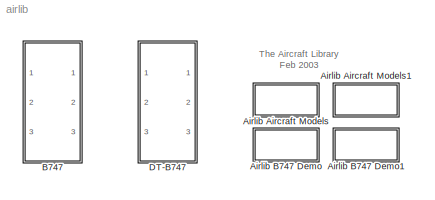
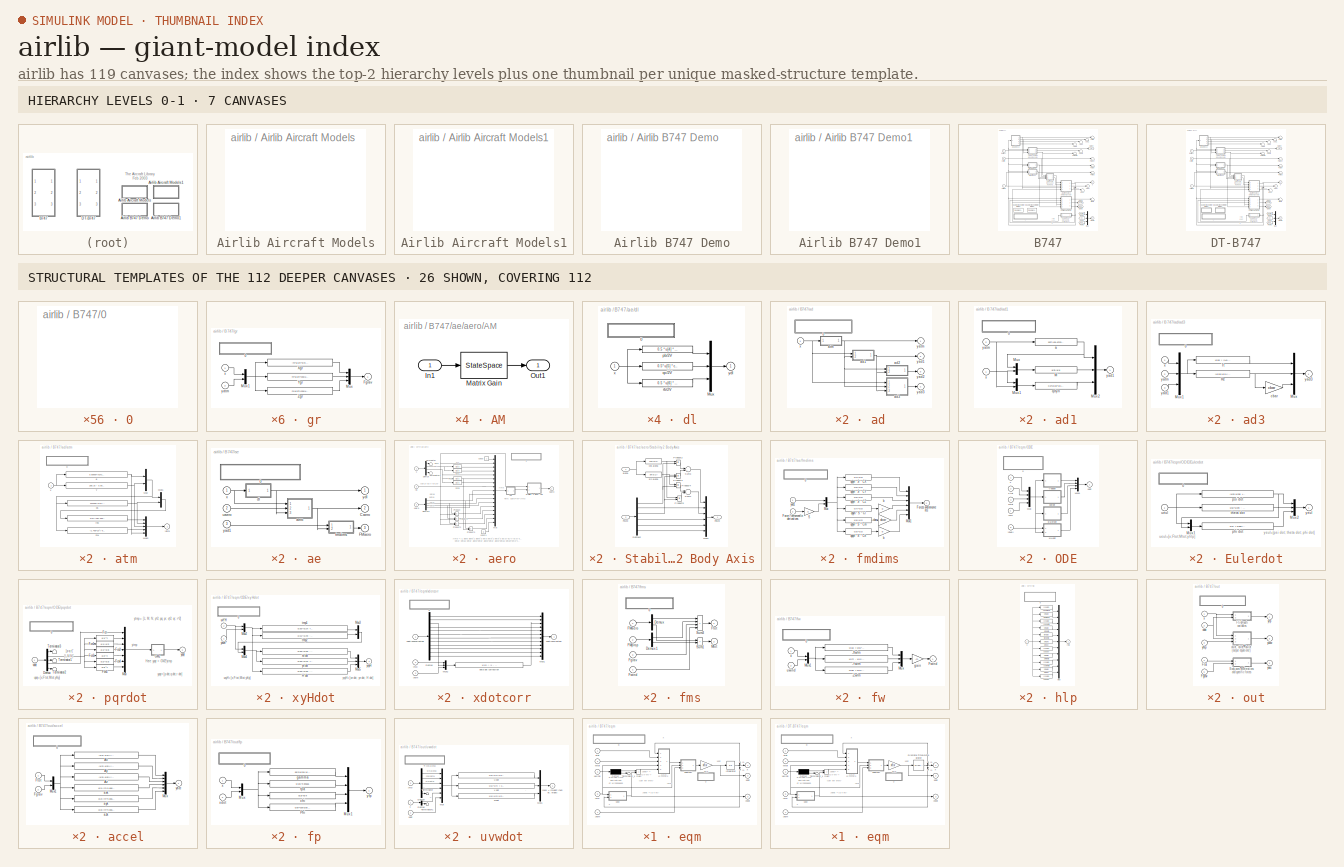
[diagram: thumbnail index - top-2 hierarchy levels (7 canvases) + 26 structural-template representatives of the remaining 112 canvases]
MODEL airlib
KIND library
BLOCK [SubSystem] Airlib Aircraft Models
  MaskDisplay = disp('Aircraft\\nModels')
  MaskIconFrame = on
  MaskIconOpaque = on
  MaskIconRotate = none
  MaskIconUnits = autoscale
  OpenFcn = airlibex
  Ports = [0, 0, 0, 0, 0]
  ShowPortLabels = on
BLOCK [SubSystem] Airlib Aircraft Models1
  MaskDisplay = disp('General\\nController')
  MaskIconFrame = on
  MaskIconOpaque = on
  MaskIconRotate = none
  MaskIconUnits = autoscale
  OpenFcn = airgk
  Ports = [0, 0, 0, 0, 0]
  ShowPortLabels = on
BLOCK [SubSystem] Airlib B747 Demo
  MaskDisplay = disp('B747\\nClosed Loop')
  MaskIconFrame = on
  MaskIconOpaque = on
  MaskIconRotate = none
  MaskIconUnits = autoscale
  OpenFcn = B747cl
  Ports = [0, 0, 0, 0, 0]
  ShowPortLabels = on
BLOCK [SubSystem] Airlib B747 Demo1
  MaskDisplay = disp('FDC\\nwind model')
  MaskIconFrame = on
  MaskIconOpaque = on
  MaskIconRotate = none
  MaskIconUnits = autoscale
  OpenFcn = fdcwind
  Ports = [0, 0, 0, 0, 0]
  ShowPortLabels = on
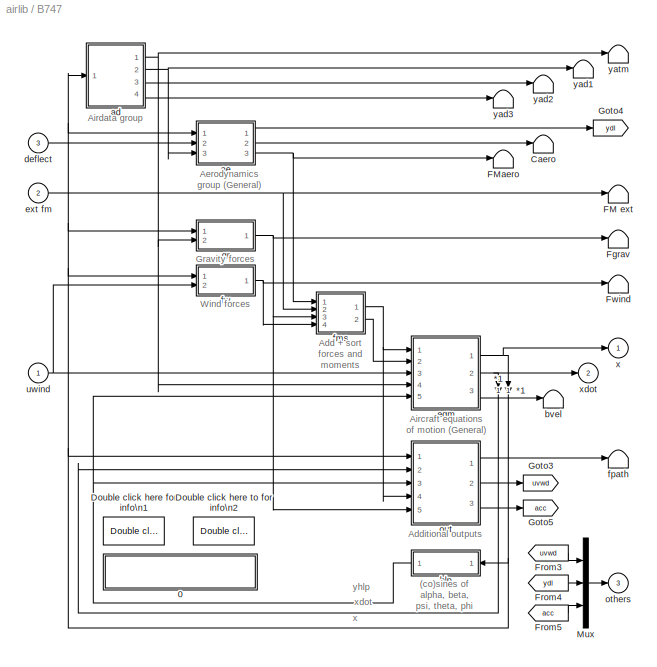
BLOCK [SubSystem] B747
  MaskCallbackString = |||||||
  MaskDescription = The first input contains the wind velocity and acceleration.\n  The second input contains external forces and moments in body axis.\n  The third input contains the deflections of elevators, ailerons, rudder,\n  and flaps. For a list of outputs look under the mask.\n  NB : The International measurement system (MKS) is adopted.
  MaskDisplay = disp('General\\nAircraft\\nModel')
  MaskEnableString = on,on,on,on,on,on,on,on
  MaskHelp = <p>\nThis block is a general nonlinear 6DOF aircraft model, with a very accurate built-in atmosphere model and constant aerodynamic derivatives. \nThe architecture of the block is largely based on the Aircraft block provided by the <A \nHREF=\"http://www.mathworks.com/matlabcentral/fileexchange/loadFile.do?objectId=252&objectType=file\">FDC toolbox</A> (Marc Rauw, 1993-2000).\n</p>\n<p>\nThe geome...<+2555ch>
  MaskIconFrame = on
  MaskIconOpaque = on
  MaskIconRotate = none
  MaskIconUnits = autoscale
  MaskInitialization = AM=zeros(6,19);\nAM(1,[1 2 9 11 12])=reshape(CD_wind,1,5);\nAM(3,[1 2 9 11 12])=reshape(CL_wind,1,5);\nAM(5,[1 2 9 11 12])=reshape(Cm_body,1,5);\nAM(2,[1 5 8 10 13 14])=reshape(CY_body,1,6);\nAM(4,[1 5 8 10 13 14])=reshape(Cl_body,1,6);\nAM(6,[1 5 8 10 13 14])=reshape(Cn_body,1,6);\n\nIx=GM1(4);Iy=GM1(5);Iz=GM1(6);\nJxy=GM1(7);Jxz=GM1(8);Jyz=GM1(9);\n\ndetI = Ix*Iy*Iz - 2*Jxy*Jxz*Jyz - Ix*Jyz^2 - ...<+1168ch>
  MaskPromptString = Geometry and Mass : [cbar   b    S    Ix   Iy   Iz   Jxy  Jxz  Jyz  m]|Aerodynamic D-Force Derivatives : [CD0 CDa CDq CDde CDih]|Aerodynamic L-Force Derivatives : [CL0 CLa CLq CLde CLih]|Aerodynamic Y-Moment Derivatives : [Cm0 Cma Cmq Cmde Cmih]|Aerodynamic Y-Force Derivatives : [CY0 CYb CYp CYr CYda CYdr]|Aerodynamic X-moment Derivatives : [Cl0 Clb Clp Clr Clda Cldr]|Aerodynamic Z-moment Derivati...<+97ch>
  MaskStyleString = edit,edit,edit,edit,edit,edit,edit,edit
  MaskTunableValueString = on,on,on,on,on,on,on,on
  MaskType = General Nonlinear Aircraft Model
  MaskValueString = [8.32   59.74   510.95   24675560  44876980   67383260   0   1315126  0   288772]|[0.0164  0.2  0  0  0]|[0.21  4.4  6.6  0.32  0.7]|[0  -1   -20.5    -1.3    -2.7]|[0   -0.9    0     0     -0    0.12]|[0    -0.16    -0.34   0.13    -0.013    0.008]|[0    0.16   -0.026    -0.28     -0.0018   -0.1]|[150.148  0.0464959 0   0 0 0   0 0.0464959 0   0 0 61]
  MaskVariables = GM1=@1;CD_wind=@2;CL_wind=@3;Cm_body=@4;CY_body=@5;Cl_body=@6;Cn_body=@7;x0=@8;
  MaskVisibilityString = on,on,on,on,on,on,on,on
  Ports = [3, 3, 0, 0, 0]
  ShowPortLabels = off
BLOCK [Gain] B747/ *1
  Gain = 1
  SaturateOnIntegerOverflow = on
BLOCK [Inport] B747/ uwind
  DataType = auto
  Interpolate = on
  Port = 1
  PortWidth = -1
  SampleTime = -1
  SignalType = auto
BLOCK [Gain] B747/*1
  Gain = 1
  SaturateOnIntegerOverflow = on
BLOCK [SubSystem] B747/0
  MaskDisplay = disp('AIRCRAFT, main level\\nM.O. Rauw')
  MaskIconFrame = on
  MaskIconOpaque = on
  MaskIconRotate = none
  MaskIconUnits = autoscale
  Ports = [0, 0, 0, 0, 0]
  ShowPortLabels = off
BLOCK [Terminator] B747/Caero
BLOCK [Reference] B747/Double click here for info\n1  REF=airlib/DT-B747/Double click here for info\n1  (lib defined in mdl_00852699f85c, mdl_b3a2112ccc5d, +1 more)
  Ports = [0, 0, 0, 0, 0]
  SourceBlock = airlib/DT-B747/Double click here for info\n1
  SourceType = Unknown
BLOCK [Reference] B747/Double click here to for info\n2  REF=airlib/DT-B747/Double click here to for info\n2  (lib defined in mdl_00852699f85c, mdl_b3a2112ccc5d, +1 more)
  Ports = [0, 0, 0, 0, 0]
  SourceBlock = airlib/DT-B747/Double click here to for info\n2
  SourceType = Unknown
BLOCK [Terminator] B747/FM ext
BLOCK [Terminator] B747/FMaero
BLOCK [Terminator] B747/Fgrav
BLOCK [From] B747/From3
  CloseFcn = tagdialog Close
  GotoTag = uvwd
BLOCK [From] B747/From4
  CloseFcn = tagdialog Close
  GotoTag = ydl
BLOCK [From] B747/From5
  CloseFcn = tagdialog Close
  GotoTag = acc
BLOCK [Terminator] B747/Fwind
BLOCK [Goto] B747/Goto3
  GotoTag = uvwd
  TagVisibility = local
BLOCK [Goto] B747/Goto4
  GotoTag = ydl
  TagVisibility = local
BLOCK [Goto] B747/Goto5
  GotoTag = acc
  TagVisibility = local
BLOCK [Mux] B747/Mux
  DisplayOption = bar
  Inputs = [3 3 6]
  Ports = [3, 1, 0, 0, 0]
BLOCK [SubSystem] B747/ad
  Ports = [1, 4, 0, 0, 0]
  ShowPortLabels = off
BLOCK [SubSystem] B747/ad/0
  MaskDisplay = disp('AIRDATA GROUP (level 3)\\nM.O. Rauw')
  MaskIconFrame = on
  MaskIconOpaque = on
  MaskIconRotate = none
  MaskIconUnits = autoscale
  Ports = [0, 0, 0, 0, 0]
  ShowPortLabels = off
BLOCK [SubSystem] B747/ad/ad1
  MaskDescription = Basic airdata variables
  MaskDisplay = disp('Airdata1')
  MaskIconFrame = on
  MaskIconOpaque = on
  MaskIconRotate = none
  MaskIconUnits = autoscale
  MaskType = Airdata1
  Ports = [2, 1, 0, 0, 0]
  ShowPortLabels = off
BLOCK [SubSystem] B747/ad/ad1/0
  MaskDisplay = disp('AIRDATA1\\nM.O. Rauw, October 1997')
  MaskIconFrame = on
  MaskIconOpaque = on
  MaskIconRotate = none
  MaskIconUnits = autoscale
  Ports = [0, 0, 0, 0, 0]
  ShowPortLabels = off
BLOCK [Fcn] B747/ad/ad1/M
  Expr = u[2]/u[1]
BLOCK [Mux] B747/ad/ad1/Mux
  DisplayOption = none
  Inputs = [1 12]
  Ports = [2, 1, 0, 0, 0]
BLOCK [Mux] B747/ad/ad1/Mux1
  DisplayOption = none
  Inputs = [12 5]
  Ports = [2, 1, 0, 0, 0]
BLOCK [Mux] B747/ad/ad1/Mux2
  DisplayOption = none
  Inputs = 3
  Ports = [3, 1, 0, 0, 0]
BLOCK [Fcn] B747/ad/ad1/a
  Expr = sqrt(401.8743*u[3])
BLOCK [Fcn] B747/ad/ad1/qdyn
  Expr = 0.5*u[13]*u[1]^2
BLOCK [Inport] B747/ad/ad1/x
  DataType = auto
  Interpolate = on
  Port = 1
  PortWidth = -1
  SampleTime = -1
  SignalType = auto
BLOCK [Outport] B747/ad/ad1/yad1
  InitialOutput = []
  OutputWhenDisabled = held
  Port = 1
BLOCK [Inport] B747/ad/ad1/yatm
  DataType = auto
  Interpolate = on
  Port = 2
  PortWidth = -1
  SampleTime = -1
  SignalType = auto
BLOCK [SubSystem] B747/ad/ad2
  MaskDescription = More airdata variables
  MaskDisplay = disp('Airdata2')
  MaskIconFrame = on
  MaskIconOpaque = on
  MaskIconRotate = none
  MaskIconUnits = autoscale
  MaskType = Airdata2
  Ports = [2, 1, 0, 0, 0]
  ShowPortLabels = off
BLOCK [SubSystem] B747/ad/ad2/0
  MaskDisplay = disp('AIRDATA2\\nM.O. Rauw, October 1997')
  MaskIconFrame = on
  MaskIconOpaque = on
  MaskIconRotate = none
  MaskIconUnits = autoscale
  Ports = [0, 0, 0, 0, 0]
  ShowPortLabels = off
BLOCK [Mux] B747/ad/ad2/Mux
  DisplayOption = none
  Inputs = [5 3]
  Ports = [2, 1, 0, 0, 0]
BLOCK [Mux] B747/ad/ad2/Mux1
  DisplayOption = none
  Inputs = 3
  Ports = [3, 1, 0, 0, 0]
BLOCK [Fcn] B747/ad/ad2/Vc
  Expr = sqrt(579000*((1+u[1]/101325)^(1/3.5)-1))
BLOCK [Fcn] B747/ad/ad2/Ve
  Expr = sqrt(u[8] * 1.63265)
BLOCK [Fcn] B747/ad/ad2/qc
  Expr = u[2] * ((1+0.2*u[7]^2)^3.5-1)
BLOCK [Inport] B747/ad/ad2/yad1
  DataType = auto
  Interpolate = on
  Port = 2
  PortWidth = -1
  SampleTime = -1
  SignalType = auto
BLOCK [Outport] B747/ad/ad2/yad2
  InitialOutput = []
  OutputWhenDisabled = held
  Port = 1
BLOCK [Inport] B747/ad/ad2/yatm
  DataType = auto
  Interpolate = on
  Port = 1
  PortWidth = -1
  SampleTime = -1
  SignalType = auto
BLOCK [SubSystem] B747/ad/ad3
  MaskDescription = More airdata variables
  MaskDisplay = disp('Airdata3')
  MaskEnableString = on
  MaskIconFrame = on
  MaskIconOpaque = on
  MaskIconRotate = none
  MaskIconUnits = autoscale
  MaskPromptString = Mean aerodynamic chord [m]:
  MaskStyleString = edit
  MaskTunableValueString = on
  MaskType = Airdata3
  MaskValueString = GM1(1)
  MaskVariables = cbar=@1;
  MaskVisibilityString = on
  Ports = [3, 1, 0, 0, 0]
  ShowPortLabels = off
BLOCK [SubSystem] B747/ad/ad3/0
  MaskDisplay = disp('AIRDATA3\\nM.O. Rauw, October 1997')
  MaskIconFrame = on
  MaskIconOpaque = on
  MaskIconRotate = none
  MaskIconUnits = autoscale
  Ports = [0, 0, 0, 0, 0]
  ShowPortLabels = off
BLOCK [Mux] B747/ad/ad3/Mux
  DisplayOption = none
  Inputs = 3
  Ports = [3, 1, 0, 0, 0]
BLOCK [Mux] B747/ad/ad3/Mux1
  DisplayOption = none
  Inputs = [12 5 3]
  Ports = [3, 1, 0, 0, 0]
BLOCK [Fcn] B747/ad/ad3/Re
  Expr = (u[13]*u[1])/u[16]
BLOCK [Fcn] B747/ad/ad3/Tt
  Expr = u[15] * (1+0.2*u[19]^2)
BLOCK [Gain] B747/ad/ad3/cbar
  Gain = cbar
  SaturateOnIntegerOverflow = on
BLOCK [Inport] B747/ad/ad3/x
  DataType = auto
  Interpolate = on
  Port = 1
  PortWidth = -1
  SampleTime = -1
  SignalType = auto
BLOCK [Inport] B747/ad/ad3/yad1
  DataType = auto
  Interpolate = on
  Port = 3
  PortWidth = -1
  SampleTime = -1
  SignalType = auto
BLOCK [Outport] B747/ad/ad3/yad3
  InitialOutput = []
  OutputWhenDisabled = held
  Port = 1
BLOCK [Inport] B747/ad/ad3/yatm
  DataType = auto
  Interpolate = on
  Port = 2
  PortWidth = -1
  SampleTime = -1
  SignalType = auto
BLOCK [SubSystem] B747/ad/atm
  MaskDescription = Atmosphere variables
  MaskDisplay = disp('Atmosph')
  MaskIconFrame = on
  MaskIconOpaque = on
  MaskIconRotate = none
  MaskIconUnits = autoscale
  MaskType = Atmosph
  Ports = [1, 1, 0, 0, 0]
  ShowPortLabels = off
BLOCK [SubSystem] B747/ad/atm/0
  MaskDisplay = disp('ATMOSPH\\nM.O. Rauw, October 1997')
  MaskIconFrame = on
  MaskIconOpaque = on
  MaskIconRotate = none
  MaskIconUnits = autoscale
  Ports = [0, 0, 0, 0, 0]
  ShowPortLabels = off
BLOCK [Mux] B747/ad/atm/Mux
  DisplayOption = none
  Inputs = 2
  Ports = [2, 1, 0, 0, 0]
BLOCK [Mux] B747/ad/atm/Mux1
  DisplayOption = none
  Inputs = [2 1]
  Ports = [2, 1, 0, 0, 0]
BLOCK [Mux] B747/ad/atm/Mux2
  DisplayOption = none
  Inputs = 5
  Ports = [5, 1, 0, 0, 0]
BLOCK [Fcn] B747/ad/atm/T
  Expr = 288.15 - 0.0065*u[12]
BLOCK [Fcn] B747/ad/atm/g
  Expr = 9.80665*(6371020/(6371020+u[12]))^2
BLOCK [Fcn] B747/ad/atm/mu
  Expr = (1.458*10^(-6)*u[2]^1.5)/(u[2]+110.4)
BLOCK [Fcn] B747/ad/atm/ps
  Expr = 101325*(u[2]/288.15)^(u[1]/1.86584)
BLOCK [Fcn] B747/ad/atm/rho
  Expr = u[3]/(287.053*u[2])
BLOCK [Inport] B747/ad/atm/x
  DataType = auto
  Interpolate = on
  Port = 1
  PortWidth = -1
  SampleTime = -1
  SignalType = auto
BLOCK [Outport] B747/ad/atm/yatm
  InitialOutput = []
  OutputWhenDisabled = held
  Port = 1
BLOCK [Inport] B747/ad/x
  DataType = auto
  Interpolate = on
  Port = 1
  PortWidth = -1
  SampleTime = -1
  SignalType = auto
BLOCK [Outport] B747/ad/yad1
  InitialOutput = []
  OutputWhenDisabled = held
  Port = 2
BLOCK [Outport] B747/ad/yad2
  InitialOutput = []
  OutputWhenDisabled = held
  Port = 3
BLOCK [Outport] B747/ad/yad3
  InitialOutput = []
  OutputWhenDisabled = held
  Port = 4
BLOCK [Outport] B747/ad/yatm
  InitialOutput = []
  OutputWhenDisabled = held
  Port = 1
BLOCK [SubSystem] B747/ae
  Ports = [3, 3, 0, 0, 0]
  ShowPortLabels = off
BLOCK [SubSystem] B747/ae/0
  MaskDisplay = disp('AERODYNAMICS GROUP (level 3)\\nM.O. Rauw')
  MaskIconFrame = on
  MaskIconOpaque = on
  MaskIconRotate = none
  MaskIconUnits = autoscale
  Ports = [0, 0, 0, 0, 0]
  ShowPortLabels = off
BLOCK [Outport] B747/ae/Caero
  InitialOutput = []
  OutputWhenDisabled = held
  Port = 2
BLOCK [Outport] B747/ae/FMaero
  InitialOutput = []
  OutputWhenDisabled = held
  Port = 3
BLOCK [SubSystem] B747/ae/aero
  MaskDescription = Aerodynamic model of the DHC-2 'Beaver'.
  MaskDisplay = disp('Aeromod\\n(General)')
  MaskIconFrame = on
  MaskIconOpaque = on
  MaskIconRotate = none
  MaskIconUnits = autoscale
  MaskType = Aeromod
  Ports = [3, 1, 0, 0, 0]
  ShowPortLabels = off
BLOCK [SubSystem] B747/ae/aero/0
  MaskDisplay = disp('AEROMOD\\nM.O. Rauw, October 1997')
  MaskIconFrame = on
  MaskIconOpaque = on
  MaskIconRotate = none
  MaskIconUnits = autoscale
  Ports = [0, 0, 0, 0, 0]
  ShowPortLabels = off
BLOCK [SubSystem] B747/ae/aero/AM 
  MaskDisplay = disp('Matrix\\nGain')
  MaskEnableString = on
  MaskIconFrame = on
  MaskIconOpaque = on
  MaskIconRotate = none
  MaskIconUnits = autoscale
  MaskPromptString = Matrix
  MaskStyleString = edit
  MaskTunableValueString = on
  MaskType = State Space
  MaskValueString = AM
  MaskVariables = M=@1;
  MaskVisibilityString = on
  Ports = [1, 1, 0, 0, 0]
  ShowPortLabels = on
BLOCK [Inport] B747/ae/aero/AM /In1
  DataType = auto
  Interpolate = on
  Port = 1
  PortWidth = -1
  SampleTime = -1
  SignalType = auto
BLOCK [StateSpace] B747/ae/aero/AM /Matrix Gain
  A = []
  B = []
  C = []
  D = M
  X0 = 0
BLOCK [Outport] B747/ae/aero/AM /Out1
  InitialOutput = []
  OutputWhenDisabled = held
  Port = 1
BLOCK [Outport] B747/ae/aero/Caero
  InitialOutput = []
  OutputWhenDisabled = held
  Port = 1
BLOCK [Demux] B747/ae/aero/Demux
  Outputs = [1 1 1 9]
  Ports = [1, 4, 0, 0, 0]
BLOCK [Demux] B747/ae/aero/Demux1
  Outputs = 4
  Ports = [1, 4, 0, 0, 0]
BLOCK [Fcn] B747/ae/aero/Fcn
  Expr = u[1]^2
BLOCK [Fcn] B747/ae/aero/Fcn1
  Expr = u[1]^3
BLOCK [Fcn] B747/ae/aero/Fcn2
  Expr = u[1]^2
BLOCK [Fcn] B747/ae/aero/Fcn3
  Expr = u[1]^3
BLOCK [Mux] B747/ae/aero/Mux
  DisplayOption = none
  Inputs = [1 1 1 1 1 1 1 3 1 1 1 1 1 1 1 1 1]
  Ports = [17, 1, 0, 0, 0]
BLOCK [Product] B747/ae/aero/Product
  Inputs = 2
  Ports = [2, 1, 0, 0, 0]
  SaturateOnIntegerOverflow = on
BLOCK [Product] B747/ae/aero/Product1
  Inputs = 2
  Ports = [2, 1, 0, 0, 0]
  SaturateOnIntegerOverflow = on
BLOCK [Product] B747/ae/aero/Product2
  Inputs = 2
  Ports = [2, 1, 0, 0, 0]
  SaturateOnIntegerOverflow = on
BLOCK [Product] B747/ae/aero/Product3
  Inputs = 2
  Ports = [2, 1, 0, 0, 0]
  SaturateOnIntegerOverflow = on
BLOCK [SubSystem] B747/ae/aero/Stability 2 Body Axis
  Ports = [2, 1, 0, 0, 0]
  ShowPortLabels = on
BLOCK [Demux] B747/ae/aero/Stability 2 Body Axis/Demux2
  Outputs = 6
  Ports = [1, 6, 0, 0, 0]
BLOCK [Outport] B747/ae/aero/Stability 2 Body Axis/FbMb
  InitialOutput = []
  OutputWhenDisabled = held
  Port = 1
BLOCK [Inport] B747/ae/aero/Stability 2 Body Axis/FsMb
  DataType = auto
  Interpolate = on
  Port = 2
  PortWidth = -1
  SampleTime = -1
  SignalType = auto
BLOCK [Mux] B747/ae/aero/Stability 2 Body Axis/Mux1
  DisplayOption = none
  Inputs = 6
  Ports = [6, 1, 0, 0, 0]
BLOCK [Product] B747/ae/aero/Stability 2 Body Axis/Product2
  Inputs = 2
  Ports = [2, 1, 0, 0, 0]
  SaturateOnIntegerOverflow = on
BLOCK [Product] B747/ae/aero/Stability 2 Body Axis/Product3
  Inputs = 2
  Ports = [2, 1, 0, 0, 0]
  SaturateOnIntegerOverflow = on
BLOCK [Product] B747/ae/aero/Stability 2 Body Axis/Product4
  Inputs = 2
  Ports = [2, 1, 0, 0, 0]
  SaturateOnIntegerOverflow = on
BLOCK [Product] B747/ae/aero/Stability 2 Body Axis/Product5
  Inputs = 2
  Ports = [2, 1, 0, 0, 0]
  SaturateOnIntegerOverflow = on
BLOCK [Sum] B747/ae/aero/Stability 2 Body Axis/Sum3
  IconShape = round
  Inputs = -+
  Ports = [2, 1, 0, 0, 0]
  SaturateOnIntegerOverflow = on
BLOCK [Sum] B747/ae/aero/Stability 2 Body Axis/Sum4
  IconShape = round
  Inputs = --
  Ports = [2, 1, 0, 0, 0]
  SaturateOnIntegerOverflow = on
BLOCK [Inport] B747/ae/aero/Stability 2 Body Axis/alpha
  DataType = auto
  Interpolate = on
  Port = 1
  PortWidth = -1
  SampleTime = -1
  SignalType = auto
BLOCK [Fcn] B747/ae/aero/Stability 2 Body Axis/cos alpha
  Expr = cos(u[1])
BLOCK [Fcn] B747/ae/aero/Stability 2 Body Axis/sin alpha
  Expr = sin(u[1])
BLOCK [Terminator] B747/ae/aero/Terminator
BLOCK [Terminator] B747/ae/aero/Terminator1
BLOCK [Constant] B747/ae/aero/const
  Value = 1
BLOCK [Constant] B747/ae/aero/const1
  Value = 0
BLOCK [Inport] B747/ae/aero/uaero
  DataType = auto
  Interpolate = on
  Port = 2
  PortWidth = -1
  SampleTime = -1
  SignalType = auto
BLOCK [Inport] B747/ae/aero/x
  DataType = auto
  Interpolate = on
  Port = 1
  PortWidth = -1
  SampleTime = -1
  SignalType = auto
BLOCK [Inport] B747/ae/aero/ydl
  DataType = auto
  Interpolate = on
  Port = 3
  PortWidth = -1
  SampleTime = -1
  SignalType = auto
BLOCK [SubSystem] B747/ae/dl
  MaskCallbackString = |
  MaskDescription = Dimensionless rotational velocities.
  MaskDisplay = disp('Dimless')
  MaskEnableString = on,on
  MaskIconFrame = on
  MaskIconOpaque = on
  MaskIconRotate = none
  MaskIconUnits = autoscale
  MaskPromptString = Mean aerodynamic chord [m]:|Wing span [m]:
  MaskStyleString = edit,edit
  MaskTunableValueString = on,on
  MaskType = Dimless
  MaskValueString = GM1(1)|GM1(2)
  MaskVariables = cbar=@1;b=@2;
  MaskVisibilityString = on,on
  Ports = [1, 1, 0, 0, 0]
  ShowPortLabels = off
BLOCK [SubSystem] B747/ae/dl/0
  MaskDisplay = disp('DIMLESS\\nM.O. Rauw, October 1997')
  MaskIconFrame = on
  MaskIconOpaque = on
  MaskIconRotate = none
  MaskIconUnits = autoscale
  Ports = [0, 0, 0, 0, 0]
  ShowPortLabels = off
BLOCK [Mux] B747/ae/dl/Mux
  DisplayOption = none
  Inputs = 3
  Ports = [3, 1, 0, 0, 0]
BLOCK [Fcn] B747/ae/dl/pb//2V
  Expr = 0.5 * u[4] * b / u[1]
BLOCK [Fcn] B747/ae/dl/qc//2V
  Expr = 0.5* u[5] * cbar / u[1]
BLOCK [Fcn] B747/ae/dl/rb//2V
  Expr = 0.5 * u[6] * b / u[1]
BLOCK [Inport] B747/ae/dl/x
  DataType = auto
  Interpolate = on
  Port = 1
  PortWidth = -1
  SampleTime = -1
  SignalType = auto
BLOCK [Outport] B747/ae/dl/ydl
  InitialOutput = []
  OutputWhenDisabled = held
  Port = 1
BLOCK [SubSystem] B747/ae/fmdims
  MaskCallbackString = ||
  MaskDescription = Calculate forces and moments from\ndimensionless derivatives.
  MaskDisplay = disp('FMdims')
  MaskEnableString = on,on,on
  MaskIconFrame = on
  MaskIconOpaque = on
  MaskIconRotate = none
  MaskIconUnits = autoscale
  MaskPromptString = Mean aerodynamic chord [m]:|Wing span [m]:|Wing surface [m^2]:
  MaskStyleString = edit,edit,edit
  MaskTunableValueString = on,on,on
  MaskType = FMdims
  MaskValueString = GM1(1)|GM1(2)|GM1(3)
  MaskVariables = cbar=@1;b=@2;S=@3;
  MaskVisibilityString = on,on,on
  Ports = [2, 1, 0, 0, 0]
  ShowPortLabels = off
BLOCK [SubSystem] B747/ae/fmdims/0
  MaskDisplay = disp('FMDIMS\\nM.O. Rauw, October 1997')
  MaskIconFrame = on
  MaskIconOpaque = on
  MaskIconRotate = none
  MaskIconUnits = autoscale
  Ports = [0, 0, 0, 0, 0]
  ShowPortLabels = off
BLOCK [Inport] B747/ae/fmdims/Force //\nmoment\nderivatives
  DataType = auto
  Interpolate = on
  Port = 2
  PortWidth = -1
  SampleTime = -1
  SignalType = auto
BLOCK [Outport] B747/ae/fmdims/Forces and\nmoments
  InitialOutput = []
  OutputWhenDisabled = held
  Port = 1
BLOCK [Mux] B747/ae/fmdims/Mux
  DisplayOption = none
  Inputs = [3 6]
  Ports = [2, 1, 0, 0, 0]
BLOCK [Mux] B747/ae/fmdims/Mux1
  DisplayOption = none
  Inputs = 6
  Ports = [6, 1, 0, 0, 0]
BLOCK [Gain] B747/ae/fmdims/S
  Gain = S
  SaturateOnIntegerOverflow = on
BLOCK [Gain] B747/ae/fmdims/b
  Gain = b
  SaturateOnIntegerOverflow = on
BLOCK [Gain] B747/ae/fmdims/b 
  Gain = b
  SaturateOnIntegerOverflow = on
BLOCK [Gain] B747/ae/fmdims/cbar
  Gain = cbar
  SaturateOnIntegerOverflow = on
BLOCK [Fcn] B747/ae/fmdims/qdyn * S * CX
  Expr = u[4]*u[3]
BLOCK [Fcn] B747/ae/fmdims/qdyn * S * CY
  Expr = u[5]*u[3]
BLOCK [Fcn] B747/ae/fmdims/qdyn * S * CZ
  Expr = u[6]*u[3]
BLOCK [Fcn] B747/ae/fmdims/qdyn * S * Cl
  Expr = u[7]*u[3]
BLOCK [Fcn] B747/ae/fmdims/qdyn * S * Cm
  Expr = u[8]*u[3]
BLOCK [Fcn] B747/ae/fmdims/qdyn * S * Cn
  Expr = u[9]*u[3]
BLOCK [Inport] B747/ae/fmdims/yad1
  DataType = auto
  Interpolate = on
  Port = 1
  PortWidth = -1
  SampleTime = -1
  SignalType = auto
BLOCK [Inport] B747/ae/uaero
  DataType = auto
  Interpolate = on
  Port = 2
  PortWidth = -1
  SampleTime = -1
  SignalType = auto
BLOCK [Inport] B747/ae/x
  DataType = auto
  Interpolate = on
  Port = 1
  PortWidth = -1
  SampleTime = -1
  SignalType = auto
BLOCK [Inport] B747/ae/yad1
  DataType = auto
  Interpolate = on
  Port = 3
  PortWidth = -1
  SampleTime = -1
  SignalType = auto
BLOCK [Outport] B747/ae/ydl
  InitialOutput = []
  OutputWhenDisabled = held
  Port = 1
BLOCK [Terminator] B747/bvel
BLOCK [Inport] B747/deflect
  DataType = auto
  Interpolate = on
  Port = 3
  PortWidth = -1
  SampleTime = -1
  SignalType = auto
BLOCK [SubSystem] B747/eqm
  Ports = [5, 3, 0, 0, 0]
  ShowPortLabels = off
BLOCK [Gain] B747/eqm/ *1
  Gain = 1
  SaturateOnIntegerOverflow = on
BLOCK [Gain] B747/eqm/*1
  Gain = 1
  SaturateOnIntegerOverflow = on
BLOCK [SubSystem] B747/eqm/0
  MaskDisplay = disp('EQUATIONS OF MOTION (level 3)\\nM.O. Rauw')
  MaskIconFrame = on
  MaskIconOpaque = on
  MaskIconRotate = none
  MaskIconUnits = autoscale
  Ports = [0, 0, 0, 0, 0]
  ShowPortLabels = off
BLOCK [SubSystem] B747/eqm/?
  MaskDisplay = disp('More info\\nfor xfix')
  MaskIconFrame = on
  MaskIconOpaque = on
  MaskIconRotate = none
  MaskIconUnits = autoscale
  Ports = [0, 0, 0, 0, 0]
  ShowPortLabels = off
BLOCK [Demux] B747/eqm/Demux
  Outputs = [3 3]
  Ports = [1, 2, 0, 0, 0]
BLOCK [Inport] B747/eqm/Ftot
  DataType = auto
  Interpolate = on
  Port = 1
  PortWidth = -1
  SampleTime = -1
  SignalType = auto
BLOCK [Integrator] B747/eqm/Integrator
  AbsoluteTolerance = auto
  ExternalReset = none
  InitialCondition = x0
  InitialConditionSource = internal
  LimitOutput = off
  LowerSaturationLimit = -inf
  Ports = [1, 1, 0, 0, 0]
  ShowSaturationPort = off
  ShowStatePort = off
  UpperSaturationLimit = inf
BLOCK [Inport] B747/eqm/Mtot
  DataType = auto
  Interpolate = on
  Port = 2
  PortWidth = -1
  SampleTime = -1
  SignalType = auto
BLOCK [SubSystem] B747/eqm/ODE
  Ports = [5, 1, 0, 0, 0]
  ShowPortLabels = off
BLOCK [SubSystem] B747/eqm/ODE/0
  MaskDisplay = disp('12 Ordinary Differential\\nEquations (level 4)\\nM.O. Rauw')
  MaskIconFrame = on
  MaskIconOpaque = on
  MaskIconRotate = none
  MaskIconUnits = autoscale
  Ports = [0, 0, 0, 0, 0]
  ShowPortLabels = off
BLOCK [SubSystem] B747/eqm/ODE/Eulerdot
  MaskDescription = Calculation of d(psi)/dt, d(theta)/dt,\nand d(phi/dt)
  MaskDisplay = disp('psi dot\\ntheta dot\\nphi dot')
  MaskIconFrame = on
  MaskIconOpaque = on
  MaskIconRotate = none
  MaskIconUnits = autoscale
  MaskType = Eulerdot
  Ports = [1, 1, 0, 0, 0]
  ShowPortLabels = off
BLOCK [SubSystem] B747/eqm/ODE/Eulerdot/0
  MaskDisplay = disp('EULERDOT\\nM.O. Rauw, October 1997')
  MaskIconFrame = on
  MaskIconOpaque = on
  MaskIconRotate = none
  MaskIconUnits = autoscale
  Ports = [0, 0, 0, 0, 0]
  ShowPortLabels = off
BLOCK [Mux] B747/eqm/ODE/Eulerdot/Mux1
  DisplayOption = none
  Inputs = [29 1]
  Ports = [2, 1, 0, 0, 0]
BLOCK [Mux] B747/eqm/ODE/Eulerdot/Mux2
  DisplayOption = none
  Inputs = 3
  Ports = [3, 1, 0, 0, 0]
BLOCK [Fcn] B747/eqm/ODE/Eulerdot/phi dot
  Expr = u[4] + u[30]*u[26]
BLOCK [Fcn] B747/eqm/ODE/Eulerdot/psi dot
  Expr = (u[5]*u[28] + u[6]*u[29])/u[27]
BLOCK [Fcn] B747/eqm/ODE/Eulerdot/theta dot
  Expr = u[5]*u[29] - u[6]*u[28]
BLOCK [Inport] B747/eqm/ODE/Eulerdot/ueul
  DataType = auto
  Interpolate = on
  Port = 1
  PortWidth = -1
  SampleTime = -1
  SignalType = auto
BLOCK [Outport] B747/eqm/ODE/Eulerdot/yeul
  InitialOutput = []
  OutputWhenDisabled = held
  Port = 1
BLOCK [Inport] B747/eqm/ODE/Ftot
  DataType = auto
  Interpolate = on
  Port = 2
  PortWidth = -1
  SampleTime = -1
  SignalType = auto
BLOCK [Inport] B747/eqm/ODE/Mtot
  DataType = auto
  Interpolate = on
  Port = 3
  PortWidth = -1
  SampleTime = -1
  SignalType = auto
BLOCK [Mux] B747/eqm/ODE/Mux
  DisplayOption = none
  Inputs = [12 3 3 11]
  Ports = [4, 1, 0, 0, 0]
BLOCK [Mux] B747/eqm/ODE/Mux1
  DisplayOption = none
  Inputs = [3 3 3 3]
  Ports = [4, 1, 0, 0, 0]
BLOCK [SubSystem] B747/eqm/ODE/Vabdot
  MaskDescription = Calculation of dV/dt, dalpha/dt, dbeta/dt.
  MaskDisplay = disp('V dot\\nalpha dot\\nbeta dot')
  MaskEnableString = on
  MaskIconFrame = on
  MaskIconOpaque = on
  MaskIconRotate = none
  MaskIconUnits = autoscale
  MaskPromptString = Mass of the aircraft [kg]:
  MaskStyleString = edit
  MaskTunableValueString = on
  MaskType = Vabdot
  MaskValueString = GM1(10)
  MaskVariables = m=@1;
  MaskVisibilityString = on
  Ports = [1, 1, 0, 0, 0]
  ShowPortLabels = off
BLOCK [SubSystem] B747/eqm/ODE/Vabdot/0
  MaskDisplay = disp('VABDOT\\nM.O. Rauw, October 1997')
  MaskIconFrame = on
  MaskIconOpaque = on
  MaskIconRotate = none
  MaskIconUnits = autoscale
  Ports = [0, 0, 0, 0, 0]
  ShowPortLabels = off
BLOCK [Mux] B747/eqm/ODE/Vabdot/Mux2
  DisplayOption = none
  Inputs = 3
  Ports = [3, 1, 0, 0, 0]
BLOCK [Fcn] B747/eqm/ODE/Vabdot/V dot
  Expr = (u[13]*u[19]*u[21]+u[14]*u[22]+u[15]*u[20]*u[21])/m
BLOCK [Fcn] B747/eqm/ODE/Vabdot/alpha dot
  Expr = (-u[13]*u[20]+u[15]*u[19])/(m*u[1]*u[21]) - u[23]*(u[4]*u[19]+u[6]*u[20]) + u[5]
BLOCK [Fcn] B747/eqm/ODE/Vabdot/beta dot
  Expr = (-u[13]*u[19]*u[22]+u[14]*u[21]-u[15]*u[20]*u[22])/(m*u[1]) + u[4]*u[20] - u[6]*u[19]
BLOCK [Inport] B747/eqm/ODE/Vabdot/uVab
  DataType = auto
  Interpolate = on
  Port = 1
  PortWidth = -1
  SampleTime = -1
  SignalType = auto
BLOCK [Outport] B747/eqm/ODE/Vabdot/yVab
  InitialOutput = []
  OutputWhenDisabled = held
  Port = 1
BLOCK [SubSystem] B747/eqm/ODE/pqrdot
  MaskDescription = Calculation of dp/dt, dq/dt, and dr/dt
  MaskDisplay = disp('p dot\\nq dot\\nr dot')
  MaskIconFrame = on
  MaskIconOpaque = on
  MaskIconRotate = none
  MaskIconUnits = autoscale
  MaskType = pqrdot
  Ports = [1, 1, 0, 0, 0]
  ShowPortLabels = off
BLOCK [SubSystem] B747/eqm/ODE/pqrdot/0
  MaskDisplay = disp('PQRDOT\\nM.O. Rauw, October 1997')
  MaskIconFrame = on
  MaskIconOpaque = on
  MaskIconRotate = none
  MaskIconUnits = autoscale
  Ports = [0, 0, 0, 0, 0]
  ShowPortLabels = off
BLOCK [Demux] B747/eqm/ODE/pqrdot/Demux
  Outputs = [3 3 9 3 11]
  Ports = [1, 5, 0, 0, 0]
BLOCK [Fcn] B747/eqm/ODE/pqrdot/Fcn
  Expr = u[1]^2
BLOCK [Fcn] B747/eqm/ODE/pqrdot/Fcn1
  Expr = u[1]*u[2]
BLOCK [Fcn] B747/eqm/ODE/pqrdot/Fcn2
  Expr = u[1]*u[3]
BLOCK [Fcn] B747/eqm/ODE/pqrdot/Fcn3
  Expr = u[2]^2
BLOCK [Fcn] B747/eqm/ODE/pqrdot/Fcn4
  Expr = u[2]*u[3]
BLOCK [Fcn] B747/eqm/ODE/pqrdot/Fcn5
  Expr = u[3]^2
BLOCK [SubSystem] B747/eqm/ODE/pqrdot/GM2 
  MaskDisplay = disp('Matrix\\nGain')
  MaskEnableString = on
  MaskIconFrame = on
  MaskIconOpaque = on
  MaskIconRotate = none
  MaskIconUnits = autoscale
  MaskPromptString = Matrix
  MaskStyleString = edit
  MaskTunableValueString = on
  MaskType = State Space
  MaskValueString = GM2
  MaskVariables = M=@1;
  MaskVisibilityString = on
  Ports = [1, 1, 0, 0, 0]
  ShowPortLabels = on
BLOCK [Inport] B747/eqm/ODE/pqrdot/GM2 /In1
  DataType = auto
  Interpolate = on
  Port = 1
  PortWidth = -1
  SampleTime = -1
  SignalType = auto
BLOCK [StateSpace] B747/eqm/ODE/pqrdot/GM2 /Matrix Gain
  A = []
  B = []
  C = []
  D = M
  X0 = 0
BLOCK [Outport] B747/eqm/ODE/pqrdot/GM2 /Out1
  InitialOutput = []
  OutputWhenDisabled = held
  Port = 1
BLOCK [Mux] B747/eqm/ODE/pqrdot/Mux
  DisplayOption = none
  Inputs = [3 1 1 1 1 1 1]
  Ports = [7, 1, 0, 0, 0]
BLOCK [Terminator] B747/eqm/ODE/pqrdot/Terminator1
BLOCK [Terminator] B747/eqm/ODE/pqrdot/Terminator2
BLOCK [Terminator] B747/eqm/ODE/pqrdot/Terminator3
BLOCK [Inport] B747/eqm/ODE/pqrdot/upqr
  DataType = auto
  Interpolate = on
  Port = 1
  PortWidth = -1
  SampleTime = -1
  SignalType = auto
BLOCK [Outport] B747/eqm/ODE/pqrdot/ypqr
  InitialOutput = []
  OutputWhenDisabled = held
  Port = 1
BLOCK [Inport] B747/eqm/ODE/x
  DataType = auto
  Interpolate = on
  Port = 1
  PortWidth = -1
  SampleTime = -1
  SignalType = auto
BLOCK [Outport] B747/eqm/ODE/xdot
  InitialOutput = []
  OutputWhenDisabled = held
  Port = 1
BLOCK [SubSystem] B747/eqm/ODE/xyHdot
  MaskDescription = Calculation of d(xe)/dt, d(ye)/dt, and dH/dt
  MaskDisplay = disp('xe dot\\nye dot\\nH dot')
  MaskIconFrame = on
  MaskIconOpaque = on
  MaskIconRotate = none
  MaskIconUnits = autoscale
  MaskType = xyHdot
  Ports = [2, 1, 0, 0, 0]
  ShowPortLabels = off
BLOCK [SubSystem] B747/eqm/ODE/xyHdot/0
  MaskDisplay = disp('XYHDOT\\nM.O. Rauw, October 1997')
  MaskIconFrame = on
  MaskIconOpaque = on
  MaskIconRotate = none
  MaskIconUnits = autoscale
  Ports = [0, 0, 0, 0, 0]
  ShowPortLabels = off
BLOCK [Fcn] B747/eqm/ODE/xyHdot/H dot
  Expr = u[30]*u[26] - (u[31]*u[28]+u[32]*u[29])*u[27]
BLOCK [Mux] B747/eqm/ODE/xyHdot/Mux2
  DisplayOption = none
  Inputs = [29 3]
  Ports = [2, 1, 0, 0, 0]
BLOCK [Mux] B747/eqm/ODE/xyHdot/Mux3
  DisplayOption = none
  Inputs = 2
  Ports = [2, 1, 0, 0, 0]
BLOCK [Mux] B747/eqm/ODE/xyHdot/Mux4
  DisplayOption = none
  Inputs = [29 2]
  Ports = [2, 1, 0, 0, 0]
BLOCK [Mux] B747/eqm/ODE/xyHdot/Mux5
  DisplayOption = none
  Inputs = 3
  Ports = [3, 1, 0, 0, 0]
BLOCK [Fcn] B747/eqm/ODE/xyHdot/tmp1
  Expr = u[30]*u[27] + (u[31]*u[28]+u[32]*u[29])*u[26]
BLOCK [Fcn] B747/eqm/ODE/xyHdot/tmp2
  Expr = u[31]*u[29] - u[32]*u[28]
BLOCK [Inport] B747/eqm/ODE/xyHdot/uxYH
  DataType = auto
  Interpolate = on
  Port = 2
  PortWidth = -1
  SampleTime = -1
  SignalType = auto
BLOCK [Fcn] B747/eqm/ODE/xyHdot/xe dot
  Expr = u[30]*u[25] - u[31]*u[24]
BLOCK [Inport] B747/eqm/ODE/xyHdot/ybvel*
  DataType = auto
  Interpolate = on
  Port = 1
  PortWidth = -1
  SampleTime = -1
  SignalType = auto
BLOCK [Fcn] B747/eqm/ODE/xyHdot/ye dot
  Expr = u[30]*u[24] + u[31]*u[25]
BLOCK [Outport] B747/eqm/ODE/xyHdot/yxyH
  InitialOutput = []
  OutputWhenDisabled = held
  Port = 1
BLOCK [Inport] B747/eqm/ODE/ybvel*
  DataType = auto
  Interpolate = on
  Port = 5
  PortWidth = -1
  SampleTime = -1
  SignalType = auto
BLOCK [Inport] B747/eqm/ODE/yhlp
  DataType = auto
  Interpolate = on
  Port = 4
  PortWidth = -1
  SampleTime = -1
  SignalType = auto
BLOCK [Sum] B747/eqm/Sum
  IconShape = rectangular
  Inputs = ++
  Ports = [2, 1, 0, 0, 0]
  SaturateOnIntegerOverflow = on
BLOCK [Terminator] B747/eqm/Terminator_1
BLOCK [SubSystem] B747/eqm/uvw
  MaskDescription = Calculation of body-axes velocities\nu, v, and w
  MaskDisplay = disp('Body-axes\\nvelocities')
  MaskIconFrame = on
  MaskIconOpaque = on
  MaskIconRotate = none
  MaskIconUnits = autoscale
  MaskType = uvw
  Ports = [2, 1, 0, 0, 0]
  ShowPortLabels = off
BLOCK [SubSystem] B747/eqm/uvw/0
  MaskDisplay = disp('UVW\\nM.O. Rauw, October 1997')
  MaskIconFrame = on
  MaskIconOpaque = on
  MaskIconRotate = none
  MaskIconUnits = autoscale
  Ports = [0, 0, 0, 0, 0]
  ShowPortLabels = off
BLOCK [Mux] B747/eqm/uvw/Mux
  DisplayOption = none
  Inputs = 3
  Ports = [3, 1, 0, 0, 0]
BLOCK [Mux] B747/eqm/uvw/Mux1
  DisplayOption = none
  Inputs = [12 11]
  Ports = [2, 1, 0, 0, 0]
BLOCK [Fcn] B747/eqm/uvw/u
  Expr = u[1]*u[13]*u[15]
BLOCK [Fcn] B747/eqm/uvw/v
  Expr = u[1]*u[16]
BLOCK [Fcn] B747/eqm/uvw/w
  Expr = u[1]*u[14]*u[15]
BLOCK [Inport] B747/eqm/uvw/x
  DataType = auto
  Interpolate = on
  Port = 2
  PortWidth = -1
  SampleTime = -1
  SignalType = auto
BLOCK [Outport] B747/eqm/uvw/ybvel
  InitialOutput = []
  OutputWhenDisabled = held
  Port = 1
BLOCK [Inport] B747/eqm/uvw/yhlp
  DataType = auto
  Interpolate = on
  Port = 1
  PortWidth = -1
  SampleTime = -1
  SignalType = auto
BLOCK [Inport] B747/eqm/uwind
  DataType = auto
  Interpolate = on
  Port = 3
  PortWidth = -1
  SampleTime = -1
  SignalType = auto
BLOCK [Outport] B747/eqm/x
  InitialOutput = []
  OutputWhenDisabled = held
  Port = 1
BLOCK [Outport] B747/eqm/xdot
  InitialOutput = []
  OutputWhenDisabled = held
  Port = 2
BLOCK [SubSystem] B747/eqm/xdotcorr
  MaskCallbackString = |||
  MaskDescription = Correction block to write state\nequations for DHC-2 Beaver aircraft\nexplicitly.
  MaskDisplay = disp('xdotcorr\\n(General)')
  MaskEnableString = on,on,on,on
  MaskIconFrame = on
  MaskIconOpaque = on
  MaskIconRotate = none
  MaskIconUnits = autoscale
  MaskPromptString = Wing span [m]:|Wing surface [m^2]:|Mass of the aircraft [kg]:|Stability-derivative CYbdot:
  MaskStyleString = edit,edit,edit,edit
  MaskTunableValueString = on,on,on,on
  MaskType = xdotcorr
  MaskValueString = GM1(2)|GM1(3)|GM1(10)|AM(2,19)
  MaskVariables = b=@1;S=@2;m=@3;CYbdot=@4;
  MaskVisibilityString = on,on,on,on
  Ports = [3, 1, 0, 0, 0]
  ShowPortLabels = off
BLOCK [SubSystem] B747/eqm/xdotcorr/0
  MaskDisplay = disp('XDOTCORR (General)\\nM.O. Rauw, October 1997')
  MaskIconFrame = on
  MaskIconOpaque = on
  MaskIconRotate = none
  MaskIconUnits = autoscale
  Ports = [0, 0, 0, 0, 0]
  ShowPortLabels = off
BLOCK [Demux] B747/eqm/xdotcorr/Demux
  Outputs = 12
  Ports = [1, 12, 0, 0, 0]
BLOCK [Mux] B747/eqm/xdotcorr/Mux1
  DisplayOption = none
  Inputs = 12
  Ports = [12, 1, 0, 0, 0]
BLOCK [Mux] B747/eqm/xdotcorr/Mux2
  DisplayOption = none
  Inputs = [11 1 5]
  Ports = [3, 1, 0, 0, 0]
BLOCK [Fcn] B747/eqm/xdotcorr/beta dot correction
  Expr = u[12] / (1 - (u[3]*u[13]*b*S*CYbdot)/(4*m))
BLOCK [Outport] B747/eqm/xdotcorr/xdot\ncorrected
  InitialOutput = []
  OutputWhenDisabled = held
  Port = 1
BLOCK [Inport] B747/eqm/xdotcorr/xdot\nuncorrected
  DataType = auto
  Interpolate = on
  Port = 1
  PortWidth = -1
  SampleTime = -1
  SignalType = auto
BLOCK [Inport] B747/eqm/xdotcorr/yatm
  DataType = auto
  Interpolate = on
  Port = 3
  PortWidth = -1
  SampleTime = -1
  SignalType = auto
BLOCK [Inport] B747/eqm/xdotcorr/yhlp
  DataType = auto
  Interpolate = on
  Port = 2
  PortWidth = -1
  SampleTime = -1
  SignalType = auto
BLOCK [Gain] B747/eqm/xfix
  Gain = xfix
  SaturateOnIntegerOverflow = on
BLOCK [Inport] B747/eqm/yatm
  DataType = auto
  Interpolate = on
  Port = 4
  PortWidth = -1
  SampleTime = -1
  SignalType = auto
BLOCK [Outport] B747/eqm/ybvel
  InitialOutput = []
  OutputWhenDisabled = held
  Port = 3
BLOCK [Inport] B747/eqm/yhlp
  DataType = auto
  Interpolate = on
  Port = 5
  PortWidth = -1
  SampleTime = -1
  SignalType = auto
BLOCK [Inport] B747/ext fm
  DataType = auto
  Interpolate = on
  Port = 2
  PortWidth = -1
  SampleTime = -1
  SignalType = auto
BLOCK [SubSystem] B747/fms
  MaskDescription = Forces and Moments sorting block
  MaskDisplay = disp('FMsort')
  MaskIconFrame = on
  MaskIconOpaque = on
  MaskIconRotate = none
  MaskIconUnits = autoscale
  MaskType = FMsort
  Ports = [4, 2, 0, 0, 0]
  ShowPortLabels = off
BLOCK [SubSystem] B747/fms/0
  MaskDisplay = disp('FMSORT\\nM.O. Rauw, October 1997')
  MaskIconFrame = on
  MaskIconOpaque = on
  MaskIconRotate = none
  MaskIconUnits = autoscale
  Ports = [0, 0, 0, 0, 0]
  ShowPortLabels = off
BLOCK [Demux] B747/fms/Demux
  Outputs = [3 3]
  Ports = [1, 2, 0, 0, 0]
BLOCK [Demux] B747/fms/Demux1
  Outputs = [3 3]
  Ports = [1, 2, 0, 0, 0]
BLOCK [Inport] B747/fms/FMaero
  DataType = auto
  Interpolate = on
  Port = 1
  PortWidth = -1
  SampleTime = -1
  SignalType = auto
BLOCK [Inport] B747/fms/FMprop
  DataType = auto
  Interpolate = on
  Port = 2
  PortWidth = -1
  SampleTime = -1
  SignalType = auto
BLOCK [Inport] B747/fms/Fgrav
  DataType = auto
  Interpolate = on
  Port = 3
  PortWidth = -1
  SampleTime = -1
  SignalType = auto
BLOCK [Outport] B747/fms/Ftot
  InitialOutput = []
  OutputWhenDisabled = held
  Port = 1
BLOCK [Inport] B747/fms/Fwind
  DataType = auto
  Interpolate = on
  Port = 4
  PortWidth = -1
  SampleTime = -1
  SignalType = auto
BLOCK [Outport] B747/fms/Mtot
  InitialOutput = []
  OutputWhenDisabled = held
  Port = 2
BLOCK [Sum] B747/fms/Sum1
  IconShape = rectangular
  Inputs = ++
  Ports = [2, 1, 0, 0, 0]
  SaturateOnIntegerOverflow = on
BLOCK [Sum] B747/fms/Sum3
  IconShape = rectangular
  Inputs = ++++
  Ports = [4, 1, 0, 0, 0]
  SaturateOnIntegerOverflow = on
BLOCK [Terminator] B747/fpath
BLOCK [SubSystem] B747/fw
  MaskDescription = Forces due to non-steady atmosphere.
  MaskDisplay = disp('Fwind')
  MaskEnableString = on
  MaskIconFrame = on
  MaskIconOpaque = on
  MaskIconRotate = none
  MaskIconUnits = autoscale
  MaskPromptString = Mass of the aircraft [kg]:
  MaskStyleString = edit
  MaskTunableValueString = on
  MaskType = fwind
  MaskValueString = GM1(10)
  MaskVariables = m=@1;
  MaskVisibilityString = on
  Ports = [2, 1, 0, 0, 0]
  ShowPortLabels = off
BLOCK [Fcn] B747/fw/-Xw//m
  Expr = u[16] + u[5]*u[15] - u[6]*u[14]
BLOCK [Fcn] B747/fw/-Yw//m
  Expr = u[17] - u[4]*u[15] + u[6]*u[13]
BLOCK [Fcn] B747/fw/-Zw//m
  Expr = u[18] + u[4]*u[14] - u[5]*u[13]
BLOCK [SubSystem] B747/fw/0
  MaskDisplay = disp('FWIND\\nM.O. Rauw, Dec. 1996')
  MaskIconFrame = on
  MaskIconOpaque = on
  MaskIconRotate = none
  MaskIconUnits = autoscale
  Ports = [0, 0, 0, 0, 0]
  ShowPortLabels = off
BLOCK [Outport] B747/fw/Fwind
  InitialOutput = []
  OutputWhenDisabled = held
  Port = 1
BLOCK [Mux] B747/fw/Mux
  DisplayOption = none
  Inputs = 3
  Ports = [3, 1, 0, 0, 0]
BLOCK [Mux] B747/fw/Mux1
  DisplayOption = none
  Inputs = [12 6]
  Ports = [2, 1, 0, 0, 0]
BLOCK [Gain] B747/fw/gain
  Gain = -m
  SaturateOnIntegerOverflow = on
BLOCK [Inport] B747/fw/uwind
  DataType = auto
  Interpolate = on
  Port = 2
  PortWidth = -1
  SampleTime = -1
  SignalType = auto
BLOCK [Inport] B747/fw/x
  DataType = auto
  Interpolate = on
  Port = 1
  PortWidth = -1
  SampleTime = -1
  SignalType = auto
BLOCK [SubSystem] B747/gr
  MaskDescription = Gravity forces.
  MaskDisplay = disp('Gravity')
  MaskEnableString = on
  MaskIconFrame = on
  MaskIconOpaque = on
  MaskIconRotate = none
  MaskIconUnits = autoscale
  MaskPromptString = Mass of the aircraft [kg]:
  MaskStyleString = edit
  MaskTunableValueString = on
  MaskType = Gravity
  MaskValueString = GM1(10)
  MaskVariables = m=@1;
  MaskVisibilityString = on
  Ports = [2, 1, 0, 0, 0]
  ShowPortLabels = off
BLOCK [SubSystem] B747/gr/0
  MaskDisplay = disp('GRAVITY\\nM.O. Rauw, October 1997')
  MaskIconFrame = on
  MaskIconOpaque = on
  MaskIconRotate = none
  MaskIconUnits = autoscale
  Ports = [0, 0, 0, 0, 0]
  ShowPortLabels = off
BLOCK [Outport] B747/gr/Fgrav
  InitialOutput = []
  OutputWhenDisabled = held
  Port = 1
BLOCK [Mux] B747/gr/Mux
  DisplayOption = none
  Inputs = 3
  Ports = [3, 1, 0, 0, 0]
BLOCK [Mux] B747/gr/Mux1
  DisplayOption = none
  Inputs = [12 5]
  Ports = [2, 1, 0, 0, 0]
BLOCK [Fcn] B747/gr/Xgr
  Expr = -m*u[17]*sin(u[8])
BLOCK [Fcn] B747/gr/Ygr
  Expr = m*u[17]*cos(u[8])*sin(u[9])
BLOCK [Fcn] B747/gr/Zgr
  Expr = m*u[17]*cos(u[8])*cos(u[9])
BLOCK [Inport] B747/gr/x
  DataType = auto
  Interpolate = on
  Port = 1
  PortWidth = -1
  SampleTime = -1
  SignalType = auto
BLOCK [Inport] B747/gr/yatm
  DataType = auto
  Interpolate = on
  Port = 2
  PortWidth = -1
  SampleTime = -1
  SignalType = auto
BLOCK [SubSystem] B747/hlp
  MaskDescription = Help sines and cosines
  MaskDisplay = disp('hlpfcn')
  MaskIconFrame = on
  MaskIconOpaque = on
  MaskIconRotate = none
  MaskIconUnits = autoscale
  MaskType = Hlpfcn
  Ports = [1, 1, 0, 0, 0]
  ShowPortLabels = off
BLOCK [SubSystem] B747/hlp/0
  MaskDisplay = disp('HELP FUNCTIONS\\n(often used sines and cosines)\\nM.O. Rauw, October 1997')
  MaskIconFrame = on
  MaskIconOpaque = on
  MaskIconRotate = none
  MaskIconUnits = autoscale
  Ports = [0, 0, 0, 0, 0]
  ShowPortLabels = off
BLOCK [Mux] B747/hlp/Mux
  DisplayOption = none
  Inputs = 11
  Ports = [11, 1, 0, 0, 0]
BLOCK [Fcn] B747/hlp/cos alpha
  Expr = cos(u[2])
BLOCK [Fcn] B747/hlp/cos beta
  Expr = cos(u[3])
BLOCK [Fcn] B747/hlp/cos phi
  Expr = cos(u[9])
BLOCK [Fcn] B747/hlp/cos psi
  Expr = cos(u[7])
BLOCK [Fcn] B747/hlp/cos theta
  Expr = cos(u[8])
BLOCK [Fcn] B747/hlp/sin alpha
  Expr = sin(u[2])
BLOCK [Fcn] B747/hlp/sin beta
  Expr = sin(u[3])
BLOCK [Fcn] B747/hlp/sin phi
  Expr = sin(u[9])
BLOCK [Fcn] B747/hlp/sin psi
  Expr = sin(u[7])
BLOCK [Fcn] B747/hlp/sin theta
  Expr = sin(u[8])
BLOCK [Fcn] B747/hlp/tan beta
  Expr = tan(u[3])
BLOCK [Inport] B747/hlp/x
  DataType = auto
  Interpolate = on
  Port = 1
  PortWidth = -1
  SampleTime = -1
  SignalType = auto
BLOCK [Outport] B747/hlp/yhlp
  InitialOutput = []
  OutputWhenDisabled = held
  Port = 1
BLOCK [Outport] B747/others
  InitialOutput = []
  OutputWhenDisabled = held
  Port = 3
BLOCK [SubSystem] B747/out
  Ports = [5, 3, 0, 0, 0]
  ShowPortLabels = off
BLOCK [SubSystem] B747/out/0
  MaskDisplay = disp('Additional outputs (level 3)\\nM.O. Rauw')
  MaskIconFrame = on
  MaskIconOpaque = on
  MaskIconRotate = none
  MaskIconUnits = autoscale
  Ports = [0, 0, 0, 0, 0]
  ShowPortLabels = off
BLOCK [Inport] B747/out/Fgrav
  DataType = auto
  Interpolate = on
  Port = 5
  PortWidth = -1
  SampleTime = -1
  SignalType = auto
BLOCK [Inport] B747/out/Ftot
  DataType = auto
  Interpolate = on
  Port = 4
  PortWidth = -1
  SampleTime = -1
  SignalType = auto
BLOCK [SubSystem] B747/out/accel
  MaskDescription = Body axes accelerations and \nspecific forces.
  MaskDisplay = disp('Accel')
  MaskEnableString = on
  MaskIconFrame = on
  MaskIconOpaque = on
  MaskIconRotate = none
  MaskIconUnits = autoscale
  MaskPromptString = Mass of the aircraft [kg]:
  MaskStyleString = edit
  MaskTunableValueString = on
  MaskType = accel
  MaskValueString = GM1(10)
  MaskVariables = m=@1;
  MaskVisibilityString = on
  Ports = [2, 1, 0, 0, 0]
  ShowPortLabels = off
BLOCK [SubSystem] B747/out/accel/0
  MaskDisplay = disp('ACCEL\\nM.O. Rauw, October 1997')
  MaskIconFrame = on
  MaskIconOpaque = on
  MaskIconRotate = none
  MaskIconUnits = autoscale
  Ports = [0, 0, 0, 0, 0]
  ShowPortLabels = off
BLOCK [Fcn] B747/out/accel/Ax
  Expr = (u[1]-u[4])/(m*9.80665)
BLOCK [Fcn] B747/out/accel/Ay
  Expr = (u[2]-u[5])/(m*9.80665)
BLOCK [Fcn] B747/out/accel/Az
  Expr = (u[3]-u[6])/(m*9.80665)
BLOCK [Inport] B747/out/accel/Fgrav
  DataType = auto
  Interpolate = on
  Port = 2
  PortWidth = -1
  SampleTime = -1
  SignalType = auto
BLOCK [Inport] B747/out/accel/Ftot
  DataType = auto
  Interpolate = on
  Port = 1
  PortWidth = -1
  SampleTime = -1
  SignalType = auto
BLOCK [Mux] B747/out/accel/Mux
  DisplayOption = none
  Inputs = 6
  Ports = [6, 1, 0, 0, 0]
BLOCK [Mux] B747/out/accel/Mux1
  DisplayOption = none
  Inputs = [3 3]
  Ports = [2, 1, 0, 0, 0]
BLOCK [Fcn] B747/out/accel/axk
  Expr = u[1]/(m*9.80665)
BLOCK [Fcn] B747/out/accel/ayk
  Expr = u[2]/(m*9.80665)
BLOCK [Fcn] B747/out/accel/azk
  Expr = u[3]/(m*9.80665)
BLOCK [Outport] B747/out/accel/yacc
  InitialOutput = []
  OutputWhenDisabled = held
  Port = 1
BLOCK [SubSystem] B747/out/fp
  MaskDescription = Flightpath related parameters.
  MaskDisplay = disp('flpath')
  MaskEnableString = on
  MaskIconFrame = on
  MaskIconOpaque = on
  MaskIconRotate = none
  MaskIconUnits = autoscale
  MaskPromptString = Initial value of angle of attack, alpha0:
  MaskStyleString = edit
  MaskTunableValueString = on
  MaskType = Flpath
  MaskValueString = x0(2)
  MaskVariables = alpha0=@1;
  MaskVisibilityString = on
  Ports = [2, 1, 0, 0, 0]
  ShowPortLabels = off
BLOCK [SubSystem] B747/out/fp/0
  MaskDisplay = disp('FLPATH\\nM.O. Rauw, October 1997')
  MaskIconFrame = on
  MaskIconOpaque = on
  MaskIconRotate = none
  MaskIconUnits = autoscale
  Ports = [0, 0, 0, 0, 0]
  ShowPortLabels = off
BLOCK [Mux] B747/out/fp/Mux
  DisplayOption = none
  Inputs = [12 12]
  Ports = [2, 1, 0, 0, 0]
BLOCK [Mux] B747/out/fp/Mux1
  DisplayOption = none
  Inputs = 4
  Ports = [4, 1, 0, 0, 0]
BLOCK [Fcn] B747/out/fp/Phi
  Expr = u[9]*cos(u[8]-alpha0)
BLOCK [Fcn] B747/out/fp/chi
  Expr = u[3]+u[7]
BLOCK [Fcn] B747/out/fp/fpa
  Expr = u[13]/9.80665
BLOCK [Fcn] B747/out/fp/gamma
  Expr = asin(u[24]/u[1])
BLOCK [Inport] B747/out/fp/x
  DataType = auto
  Interpolate = on
  Port = 1
  PortWidth = -1
  SampleTime = -1
  SignalType = auto
BLOCK [Inport] B747/out/fp/xdot
  DataType = auto
  Interpolate = on
  Port = 2
  PortWidth = -1
  SampleTime = -1
  SignalType = auto
BLOCK [Outport] B747/out/fp/yfp
  InitialOutput = []
  OutputWhenDisabled = held
  Port = 1
BLOCK [SubSystem] B747/out/uvwdot
  MaskDescription = Calculation of du/dt, dv/dt, and dw/dt.
  MaskDisplay = disp('uvwdot')
  MaskIconFrame = on
  MaskIconOpaque = on
  MaskIconRotate = none
  MaskIconUnits = autoscale
  MaskType = uvwdot
  Ports = [3, 1, 0, 0, 0]
  ShowPortLabels = off
BLOCK [SubSystem] B747/out/uvwdot/0
  MaskDisplay = disp('UVWDOT\\nM.O. Rauw, October 1997')
  MaskIconFrame = on
  MaskIconOpaque = on
  MaskIconRotate = none
  MaskIconUnits = autoscale
  Ports = [0, 0, 0, 0, 0]
  ShowPortLabels = off
BLOCK [Demux] B747/out/uvwdot/DeMux
  Outputs = [1 1 1 1 7]
  Ports = [1, 5, 0, 0, 0]
BLOCK [Demux] B747/out/uvwdot/Demux
  Outputs = [1 11]
  Ports = [1, 2, 0, 0, 0]
BLOCK [Mux] B747/out/uvwdot/Mux
  DisplayOption = none
  Inputs = [1 1 1 1 1 12]
  Ports = [6, 1, 0, 0, 0]
BLOCK [Mux] B747/out/uvwdot/Mux1
  DisplayOption = none
  Inputs = 3
  Ports = [3, 1, 0, 0, 0]
BLOCK [Terminator] B747/out/uvwdot/Terminator
BLOCK [Terminator] B747/out/uvwdot/Terminator1
BLOCK [Fcn] B747/out/uvwdot/u dot
  Expr = u[6]*u[1]*u[3] - u[5]*(u[7]*u[2]*u[3] + u[8]*u[1]*u[4])
BLOCK [Fcn] B747/out/uvwdot/v dot
  Expr = u[6]*u[4] + u[5]*u[3]*u[8]
BLOCK [Fcn] B747/out/uvwdot/wdot
  Expr = u[6]*u[2]*u[3] + u[5]*(u[7]*u[1]*u[3] - u[8]*u[2]*u[4])
BLOCK [Inport] B747/out/uvwdot/x
  DataType = auto
  Interpolate = on
  Port = 1
  PortWidth = -1
  SampleTime = -1
  SignalType = auto
BLOCK [Inport] B747/out/uvwdot/xdot
  DataType = auto
  Interpolate = on
  Port = 2
  PortWidth = -1
  SampleTime = -1
  SignalType = auto
BLOCK [Inport] B747/out/uvwdot/yhlp
  DataType = auto
  Interpolate = on
  Port = 3
  PortWidth = -1
  SampleTime = -1
  SignalType = auto
BLOCK [Outport] B747/out/uvwdot/yuvw = \n[udot;\nvdot; wdot]
  InitialOutput = []
  OutputWhenDisabled = held
  Port = 1
BLOCK [Inport] B747/out/x
  DataType = auto
  Interpolate = on
  Port = 1
  PortWidth = -1
  SampleTime = -1
  SignalType = auto
BLOCK [Inport] B747/out/xdot
  DataType = auto
  Interpolate = on
  Port = 2
  PortWidth = -1
  SampleTime = -1
  SignalType = auto
BLOCK [Outport] B747/out/yacc
  InitialOutput = []
  OutputWhenDisabled = held
  Port = 3
BLOCK [Outport] B747/out/yfp
  InitialOutput = []
  OutputWhenDisabled = held
  Port = 1
BLOCK [Inport] B747/out/yhlp
  DataType = auto
  Interpolate = on
  Port = 3
  PortWidth = -1
  SampleTime = -1
  SignalType = auto
BLOCK [Outport] B747/out/yuvw
  InitialOutput = []
  OutputWhenDisabled = held
  Port = 2
BLOCK [Outport] B747/x
  InitialOutput = []
  OutputWhenDisabled = held
  Port = 1
BLOCK [Outport] B747/xdot
  InitialOutput = []
  OutputWhenDisabled = held
  Port = 2
BLOCK [Terminator] B747/yad1
BLOCK [Terminator] B747/yad2
BLOCK [Terminator] B747/yad3
BLOCK [Terminator] B747/yatm
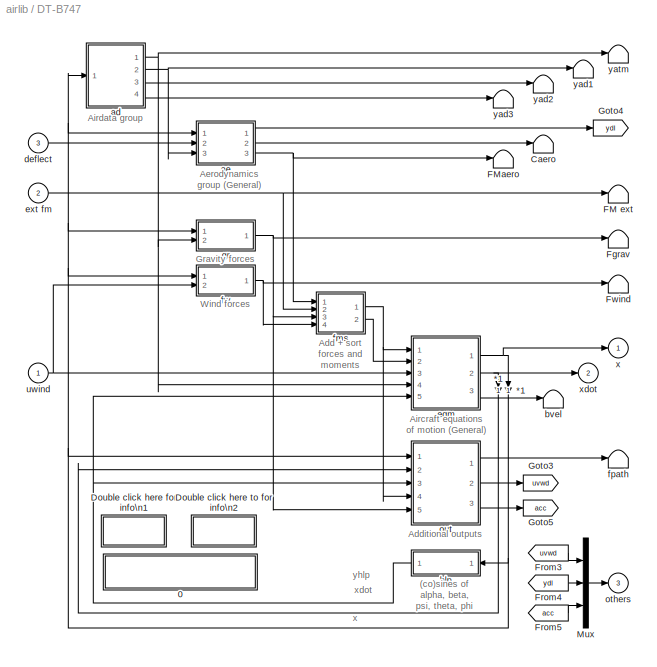
BLOCK [SubSystem] DT-B747
  MaskCallbackString = |||||||
  MaskDescription = The first input contains the wind velocity and acceleration.\n  The second input contains external forces and moments in body axis.\n  The third input contains the deflections of elevators, ailerons, rudder,\n  and flaps. For a list of outputs look under the mask.\n  NB : The International measurement system (MKS) is adopted.
  MaskDisplay = disp('Discrete<path>')
  MaskEnableString = on,on,on,on,on,on,on,on
  MaskHelp = <p>\nThis block is a general nonlinear 6DOF aircraft model, with a very accurate built-in atmosphere model and constant aerodynamic derivatives.\nThe architecture of the block is largely based on the Aircraft block provided by the <A \nHREF=\"http://www.mathworks.com/matlabcentral/fileexchange/loadFile.do?objectId=252&objectType=file\">FDC toolbox</A> (Marc Rauw, 1993-2000).\n</p>\n<p>\nThe geomet...<+2589ch>
  MaskIconFrame = on
  MaskIconOpaque = on
  MaskIconRotate = none
  MaskIconUnits = autoscale
  MaskInitialization = AM=zeros(6,19);\nAM(1,[1 2 9 11 12])=reshape(CD_wind,1,5);\nAM(3,[1 2 9 11 12])=reshape(CL_wind,1,5);\nAM(5,[1 2 9 11 12])=reshape(Cm_body,1,5);\nAM(2,[1 5 8 10 13 14])=reshape(CY_body,1,6);\nAM(4,[1 5 8 10 13 14])=reshape(Cl_body,1,6);\nAM(6,[1 5 8 10 13 14])=reshape(Cn_body,1,6);\n\nIx=GM1(4);Iy=GM1(5);Iz=GM1(6);\nJxy=GM1(7);Jxz=GM1(8);Jyz=GM1(9);\n\ndetI = Ix*Iy*Iz - 2*Jxy*Jxz*Jyz - Ix*Jyz^2 - ...<+1182ch>
  MaskPromptString = Geometry, Mass, T : [cbar   b    S    Ix   Iy   Iz   Jxy  Jxz  Jyz  m  T]|Aerodynamic D-Force Derivatives : [CD0 CDa CDq CDde CDih]|Aerodynamic L-Force Derivatives : [CL0 CLa CLq CLde CLih]|Aerodynamic Y-Moment Derivatives : [Cm0 Cma Cmq Cmde Cmih]|Aerodynamic Y-Force Derivatives : [CY0 CYb CYp CYr CYda CYdr]|Aerodynamic X-moment Derivatives : [Cl0 Clb Clp Clr Clda Cldr]|Aerodynamic Z-moment Deriv...<+100ch>
  MaskStyleString = edit,edit,edit,edit,edit,edit,edit,edit
  MaskTunableValueString = on,on,on,on,on,on,on,on
  MaskType = Discrete Time General Nonlinear Aircraft Model
  MaskValueString = [8.32   59.74   510.95   24675560  44876980   67383260   0   1315126  0   288772  0.05]|[0.0164  0.2  0  0  0]|[0.21  4.4  6.6  0.32  0.7]|[0  -1   -20.5    -1.3    -2.7]|[0   -0.9    0     0     -0    0.12]|[0    -0.16    -0.34   0.13    -0.013    0.008]|[0    0.16   -0.026    -0.28     -0.0018   -0.1]|[150.148  0.0464959 0   0 0 0   0 0.0464959 0   0 0 61]
  MaskVariables = GM1=@1;CD_wind=@2;CL_wind=@3;Cm_body=@4;CY_body=@5;Cl_body=@6;Cn_body=@7;x0=@8;
  MaskVisibilityString = on,on,on,on,on,on,on,on
  Ports = [3, 3, 0, 0, 0]
  ShowPortLabels = off
BLOCK [Gain] DT-B747/ *1
  Gain = 1
  SaturateOnIntegerOverflow = on
BLOCK [Inport] DT-B747/ uwind
  DataType = auto
  Interpolate = on
  Port = 1
  PortWidth = -1
  SampleTime = -1
  SignalType = auto
BLOCK [Gain] DT-B747/*1
  Gain = 1
  SaturateOnIntegerOverflow = on
BLOCK [SubSystem] DT-B747/0
  MaskDisplay = disp('AIRCRAFT, main level\\nM.O. Rauw')
  MaskIconFrame = on
  MaskIconOpaque = on
  MaskIconRotate = none
  MaskIconUnits = autoscale
  Ports = [0, 0, 0, 0, 0]
  ShowPortLabels = off
BLOCK [Terminator] DT-B747/Caero
BLOCK [SubSystem] DT-B747/Double click here for info\n1
  MaskDisplay = disp('Input\\nSignals')
  MaskIconFrame = on
  MaskIconOpaque = on
  MaskIconRotate = none
  MaskIconUnits = autoscale
  Ports = [0, 0, 0, 0, 0]
  ShowPortLabels = off
BLOCK [SubSystem] DT-B747/Double click here to for info\n2
  MaskDisplay = disp('Output\\nSignals')
  MaskIconFrame = on
  MaskIconOpaque = on
  MaskIconRotate = none
  MaskIconUnits = autoscale
  Ports = [0, 0, 0, 0, 0]
  ShowPortLabels = off
BLOCK [Terminator] DT-B747/FM ext
BLOCK [Terminator] DT-B747/FMaero
BLOCK [Terminator] DT-B747/Fgrav
BLOCK [From] DT-B747/From3
  CloseFcn = tagdialog Close
  GotoTag = uvwd
BLOCK [From] DT-B747/From4
  CloseFcn = tagdialog Close
  GotoTag = ydl
BLOCK [From] DT-B747/From5
  CloseFcn = tagdialog Close
  GotoTag = acc
BLOCK [Terminator] DT-B747/Fwind
BLOCK [Goto] DT-B747/Goto3
  GotoTag = uvwd
  TagVisibility = local
BLOCK [Goto] DT-B747/Goto4
  GotoTag = ydl
  TagVisibility = local
BLOCK [Goto] DT-B747/Goto5
  GotoTag = acc
  TagVisibility = local
BLOCK [Mux] DT-B747/Mux
  DisplayOption = bar
  Inputs = [3 3 6]
  Ports = [3, 1, 0, 0, 0]
BLOCK [SubSystem] DT-B747/ad
  Ports = [1, 4, 0, 0, 0]
  ShowPortLabels = off
BLOCK [SubSystem] DT-B747/ad/0
  MaskDisplay = disp('AIRDATA GROUP (level 3)\\nM.O. Rauw')
  MaskIconFrame = on
  MaskIconOpaque = on
  MaskIconRotate = none
  MaskIconUnits = autoscale
  Ports = [0, 0, 0, 0, 0]
  ShowPortLabels = off
BLOCK [SubSystem] DT-B747/ad/ad1
  MaskDescription = Basic airdata variables
  MaskDisplay = disp('Airdata1')
  MaskIconFrame = on
  MaskIconOpaque = on
  MaskIconRotate = none
  MaskIconUnits = autoscale
  MaskType = Airdata1
  Ports = [2, 1, 0, 0, 0]
  ShowPortLabels = off
BLOCK [SubSystem] DT-B747/ad/ad1/0
  MaskDisplay = disp('AIRDATA1\\nM.O. Rauw, October 1997')
  MaskIconFrame = on
  MaskIconOpaque = on
  MaskIconRotate = none
  MaskIconUnits = autoscale
  Ports = [0, 0, 0, 0, 0]
  ShowPortLabels = off
BLOCK [Fcn] DT-B747/ad/ad1/M
  Expr = u[2]/u[1]
BLOCK [Mux] DT-B747/ad/ad1/Mux
  DisplayOption = none
  Inputs = [1 12]
  Ports = [2, 1, 0, 0, 0]
BLOCK [Mux] DT-B747/ad/ad1/Mux1
  DisplayOption = none
  Inputs = [12 5]
  Ports = [2, 1, 0, 0, 0]
BLOCK [Mux] DT-B747/ad/ad1/Mux2
  DisplayOption = none
  Inputs = 3
  Ports = [3, 1, 0, 0, 0]
BLOCK [Fcn] DT-B747/ad/ad1/a
  Expr = sqrt(401.8743*u[3])
BLOCK [Fcn] DT-B747/ad/ad1/qdyn
  Expr = 0.5*u[13]*u[1]^2
BLOCK [Inport] DT-B747/ad/ad1/x
  DataType = auto
  Interpolate = on
  Port = 1
  PortWidth = -1
  SampleTime = -1
  SignalType = auto
BLOCK [Outport] DT-B747/ad/ad1/yad1
  InitialOutput = []
  OutputWhenDisabled = held
  Port = 1
BLOCK [Inport] DT-B747/ad/ad1/yatm
  DataType = auto
  Interpolate = on
  Port = 2
  PortWidth = -1
  SampleTime = -1
  SignalType = auto
BLOCK [SubSystem] DT-B747/ad/ad2
  MaskDescription = More airdata variables
  MaskDisplay = disp('Airdata2')
  MaskIconFrame = on
  MaskIconOpaque = on
  MaskIconRotate = none
  MaskIconUnits = autoscale
  MaskType = Airdata2
  Ports = [2, 1, 0, 0, 0]
  ShowPortLabels = off
BLOCK [SubSystem] DT-B747/ad/ad2/0
  MaskDisplay = disp('AIRDATA2\\nM.O. Rauw, October 1997')
  MaskIconFrame = on
  MaskIconOpaque = on
  MaskIconRotate = none
  MaskIconUnits = autoscale
  Ports = [0, 0, 0, 0, 0]
  ShowPortLabels = off
BLOCK [Mux] DT-B747/ad/ad2/Mux
  DisplayOption = none
  Inputs = [5 3]
  Ports = [2, 1, 0, 0, 0]
BLOCK [Mux] DT-B747/ad/ad2/Mux1
  DisplayOption = none
  Inputs = 3
  Ports = [3, 1, 0, 0, 0]
BLOCK [Fcn] DT-B747/ad/ad2/Vc
  Expr = sqrt(579000*((1+u[1]/101325)^(1/3.5)-1))
BLOCK [Fcn] DT-B747/ad/ad2/Ve
  Expr = sqrt(u[8] * 1.63265)
BLOCK [Fcn] DT-B747/ad/ad2/qc
  Expr = u[2] * ((1+0.2*u[7]^2)^3.5-1)
BLOCK [Inport] DT-B747/ad/ad2/yad1
  DataType = auto
  Interpolate = on
  Port = 2
  PortWidth = -1
  SampleTime = -1
  SignalType = auto
BLOCK [Outport] DT-B747/ad/ad2/yad2
  InitialOutput = []
  OutputWhenDisabled = held
  Port = 1
BLOCK [Inport] DT-B747/ad/ad2/yatm
  DataType = auto
  Interpolate = on
  Port = 1
  PortWidth = -1
  SampleTime = -1
  SignalType = auto
BLOCK [SubSystem] DT-B747/ad/ad3
  MaskDescription = More airdata variables
  MaskDisplay = disp('Airdata3')
  MaskEnableString = on
  MaskIconFrame = on
  MaskIconOpaque = on
  MaskIconRotate = none
  MaskIconUnits = autoscale
  MaskPromptString = Mean aerodynamic chord [m]:
  MaskStyleString = edit
  MaskTunableValueString = on
  MaskType = Airdata3
  MaskValueString = GM1(1)
  MaskVariables = cbar=@1;
  MaskVisibilityString = on
  Ports = [3, 1, 0, 0, 0]
  ShowPortLabels = off
BLOCK [SubSystem] DT-B747/ad/ad3/0
  MaskDisplay = disp('AIRDATA3\\nM.O. Rauw, October 1997')
  MaskIconFrame = on
  MaskIconOpaque = on
  MaskIconRotate = none
  MaskIconUnits = autoscale
  Ports = [0, 0, 0, 0, 0]
  ShowPortLabels = off
BLOCK [Mux] DT-B747/ad/ad3/Mux
  DisplayOption = none
  Inputs = 3
  Ports = [3, 1, 0, 0, 0]
BLOCK [Mux] DT-B747/ad/ad3/Mux1
  DisplayOption = none
  Inputs = [12 5 3]
  Ports = [3, 1, 0, 0, 0]
BLOCK [Fcn] DT-B747/ad/ad3/Re
  Expr = (u[13]*u[1])/u[16]
BLOCK [Fcn] DT-B747/ad/ad3/Tt
  Expr = u[15] * (1+0.2*u[19]^2)
BLOCK [Gain] DT-B747/ad/ad3/cbar
  Gain = cbar
  SaturateOnIntegerOverflow = on
BLOCK [Inport] DT-B747/ad/ad3/x
  DataType = auto
  Interpolate = on
  Port = 1
  PortWidth = -1
  SampleTime = -1
  SignalType = auto
BLOCK [Inport] DT-B747/ad/ad3/yad1
  DataType = auto
  Interpolate = on
  Port = 3
  PortWidth = -1
  SampleTime = -1
  SignalType = auto
BLOCK [Outport] DT-B747/ad/ad3/yad3
  InitialOutput = []
  OutputWhenDisabled = held
  Port = 1
BLOCK [Inport] DT-B747/ad/ad3/yatm
  DataType = auto
  Interpolate = on
  Port = 2
  PortWidth = -1
  SampleTime = -1
  SignalType = auto
BLOCK [SubSystem] DT-B747/ad/atm
  MaskDescription = Atmosphere variables
  MaskDisplay = disp('Atmosph')
  MaskIconFrame = on
  MaskIconOpaque = on
  MaskIconRotate = none
  MaskIconUnits = autoscale
  MaskType = Atmosph
  Ports = [1, 1, 0, 0, 0]
  ShowPortLabels = off
BLOCK [SubSystem] DT-B747/ad/atm/0
  MaskDisplay = disp('ATMOSPH\\nM.O. Rauw, October 1997')
  MaskIconFrame = on
  MaskIconOpaque = on
  MaskIconRotate = none
  MaskIconUnits = autoscale
  Ports = [0, 0, 0, 0, 0]
  ShowPortLabels = off
BLOCK [Mux] DT-B747/ad/atm/Mux
  DisplayOption = none
  Inputs = 2
  Ports = [2, 1, 0, 0, 0]
BLOCK [Mux] DT-B747/ad/atm/Mux1
  DisplayOption = none
  Inputs = [2 1]
  Ports = [2, 1, 0, 0, 0]
BLOCK [Mux] DT-B747/ad/atm/Mux2
  DisplayOption = none
  Inputs = 5
  Ports = [5, 1, 0, 0, 0]
BLOCK [Fcn] DT-B747/ad/atm/T
  Expr = 288.15 - 0.0065*u[12]
BLOCK [Fcn] DT-B747/ad/atm/g
  Expr = 9.80665*(6371020/(6371020+u[12]))^2
BLOCK [Fcn] DT-B747/ad/atm/mu
  Expr = (1.458*10^(-6)*u[2]^1.5)/(u[2]+110.4)
BLOCK [Fcn] DT-B747/ad/atm/ps
  Expr = 101325*(u[2]/288.15)^(u[1]/1.86584)
BLOCK [Fcn] DT-B747/ad/atm/rho
  Expr = u[3]/(287.053*u[2])
BLOCK [Inport] DT-B747/ad/atm/x
  DataType = auto
  Interpolate = on
  Port = 1
  PortWidth = -1
  SampleTime = -1
  SignalType = auto
BLOCK [Outport] DT-B747/ad/atm/yatm
  InitialOutput = []
  OutputWhenDisabled = held
  Port = 1
BLOCK [Inport] DT-B747/ad/x
  DataType = auto
  Interpolate = on
  Port = 1
  PortWidth = -1
  SampleTime = -1
  SignalType = auto
BLOCK [Outport] DT-B747/ad/yad1
  InitialOutput = []
  OutputWhenDisabled = held
  Port = 2
BLOCK [Outport] DT-B747/ad/yad2
  InitialOutput = []
  OutputWhenDisabled = held
  Port = 3
BLOCK [Outport] DT-B747/ad/yad3
  InitialOutput = []
  OutputWhenDisabled = held
  Port = 4
BLOCK [Outport] DT-B747/ad/yatm
  InitialOutput = []
  OutputWhenDisabled = held
  Port = 1
BLOCK [SubSystem] DT-B747/ae
  Ports = [3, 3, 0, 0, 0]
  ShowPortLabels = off
BLOCK [SubSystem] DT-B747/ae/0
  MaskDisplay = disp('AERODYNAMICS GROUP (level 3)\\nM.O. Rauw')
  MaskIconFrame = on
  MaskIconOpaque = on
  MaskIconRotate = none
  MaskIconUnits = autoscale
  Ports = [0, 0, 0, 0, 0]
  ShowPortLabels = off
BLOCK [Outport] DT-B747/ae/Caero
  InitialOutput = []
  OutputWhenDisabled = held
  Port = 2
BLOCK [Outport] DT-B747/ae/FMaero
  InitialOutput = []
  OutputWhenDisabled = held
  Port = 3
BLOCK [SubSystem] DT-B747/ae/aero
  MaskDescription = Aerodynamic model of the DHC-2 'Beaver'.
  MaskDisplay = disp('Aeromod\\n(General)')
  MaskIconFrame = on
  MaskIconOpaque = on
  MaskIconRotate = none
  MaskIconUnits = autoscale
  MaskType = Aeromod
  Ports = [3, 1, 0, 0, 0]
  ShowPortLabels = off
BLOCK [SubSystem] DT-B747/ae/aero/0
  MaskDisplay = disp('AEROMOD\\nM.O. Rauw, October 1997')
  MaskIconFrame = on
  MaskIconOpaque = on
  MaskIconRotate = none
  MaskIconUnits = autoscale
  Ports = [0, 0, 0, 0, 0]
  ShowPortLabels = off
BLOCK [SubSystem] DT-B747/ae/aero/AM 
  MaskDisplay = disp('Matrix\\nGain')
  MaskEnableString = on
  MaskIconFrame = on
  MaskIconOpaque = on
  MaskIconRotate = none
  MaskIconUnits = autoscale
  MaskPromptString = Matrix
  MaskStyleString = edit
  MaskTunableValueString = on
  MaskType = State Space
  MaskValueString = AM
  MaskVariables = M=@1;
  MaskVisibilityString = on
  Ports = [1, 1, 0, 0, 0]
  ShowPortLabels = on
BLOCK [Inport] DT-B747/ae/aero/AM /In1
  DataType = auto
  Interpolate = on
  Port = 1
  PortWidth = -1
  SampleTime = -1
  SignalType = auto
BLOCK [StateSpace] DT-B747/ae/aero/AM /Matrix Gain
  A = []
  B = []
  C = []
  D = M
  X0 = 0
BLOCK [Outport] DT-B747/ae/aero/AM /Out1
  InitialOutput = []
  OutputWhenDisabled = held
  Port = 1
BLOCK [Outport] DT-B747/ae/aero/Caero
  InitialOutput = []
  OutputWhenDisabled = held
  Port = 1
BLOCK [Demux] DT-B747/ae/aero/Demux
  Outputs = [1 1 1 9]
  Ports = [1, 4, 0, 0, 0]
BLOCK [Demux] DT-B747/ae/aero/Demux1
  Outputs = 4
  Ports = [1, 4, 0, 0, 0]
BLOCK [Fcn] DT-B747/ae/aero/Fcn
  Expr = u[1]^2
BLOCK [Fcn] DT-B747/ae/aero/Fcn1
  Expr = u[1]^3
BLOCK [Fcn] DT-B747/ae/aero/Fcn2
  Expr = u[1]^2
BLOCK [Fcn] DT-B747/ae/aero/Fcn3
  Expr = u[1]^3
BLOCK [Mux] DT-B747/ae/aero/Mux
  DisplayOption = none
  Inputs = [1 1 1 1 1 1 1 3 1 1 1 1 1 1 1 1 1]
  Ports = [17, 1, 0, 0, 0]
BLOCK [Product] DT-B747/ae/aero/Product
  Inputs = 2
  Ports = [2, 1, 0, 0, 0]
  SaturateOnIntegerOverflow = on
BLOCK [Product] DT-B747/ae/aero/Product1
  Inputs = 2
  Ports = [2, 1, 0, 0, 0]
  SaturateOnIntegerOverflow = on
BLOCK [Product] DT-B747/ae/aero/Product2
  Inputs = 2
  Ports = [2, 1, 0, 0, 0]
  SaturateOnIntegerOverflow = on
BLOCK [Product] DT-B747/ae/aero/Product3
  Inputs = 2
  Ports = [2, 1, 0, 0, 0]
  SaturateOnIntegerOverflow = on
BLOCK [SubSystem] DT-B747/ae/aero/Stability 2 Body Axis
  Ports = [2, 1, 0, 0, 0]
  ShowPortLabels = on
BLOCK [Demux] DT-B747/ae/aero/Stability 2 Body Axis/Demux2
  Outputs = 6
  Ports = [1, 6, 0, 0, 0]
BLOCK [Outport] DT-B747/ae/aero/Stability 2 Body Axis/FbMb
  InitialOutput = []
  OutputWhenDisabled = held
  Port = 1
BLOCK [Inport] DT-B747/ae/aero/Stability 2 Body Axis/FsMb
  DataType = auto
  Interpolate = on
  Port = 2
  PortWidth = -1
  SampleTime = -1
  SignalType = auto
BLOCK [Mux] DT-B747/ae/aero/Stability 2 Body Axis/Mux1
  DisplayOption = none
  Inputs = 6
  Ports = [6, 1, 0, 0, 0]
BLOCK [Product] DT-B747/ae/aero/Stability 2 Body Axis/Product2
  Inputs = 2
  Ports = [2, 1, 0, 0, 0]
  SaturateOnIntegerOverflow = on
BLOCK [Product] DT-B747/ae/aero/Stability 2 Body Axis/Product3
  Inputs = 2
  Ports = [2, 1, 0, 0, 0]
  SaturateOnIntegerOverflow = on
BLOCK [Product] DT-B747/ae/aero/Stability 2 Body Axis/Product4
  Inputs = 2
  Ports = [2, 1, 0, 0, 0]
  SaturateOnIntegerOverflow = on
BLOCK [Product] DT-B747/ae/aero/Stability 2 Body Axis/Product5
  Inputs = 2
  Ports = [2, 1, 0, 0, 0]
  SaturateOnIntegerOverflow = on
BLOCK [Sum] DT-B747/ae/aero/Stability 2 Body Axis/Sum3
  IconShape = round
  Inputs = -+
  Ports = [2, 1, 0, 0, 0]
  SaturateOnIntegerOverflow = on
BLOCK [Sum] DT-B747/ae/aero/Stability 2 Body Axis/Sum4
  IconShape = round
  Inputs = --
  Ports = [2, 1, 0, 0, 0]
  SaturateOnIntegerOverflow = on
BLOCK [Inport] DT-B747/ae/aero/Stability 2 Body Axis/alpha
  DataType = auto
  Interpolate = on
  Port = 1
  PortWidth = -1
  SampleTime = -1
  SignalType = auto
BLOCK [Fcn] DT-B747/ae/aero/Stability 2 Body Axis/cos alpha
  Expr = cos(u[1])
BLOCK [Fcn] DT-B747/ae/aero/Stability 2 Body Axis/sin alpha
  Expr = sin(u[1])
BLOCK [Terminator] DT-B747/ae/aero/Terminator
BLOCK [Terminator] DT-B747/ae/aero/Terminator1
BLOCK [Constant] DT-B747/ae/aero/const
  Value = 1
BLOCK [Constant] DT-B747/ae/aero/const1
  Value = 0
BLOCK [Inport] DT-B747/ae/aero/uaero
  DataType = auto
  Interpolate = on
  Port = 2
  PortWidth = -1
  SampleTime = -1
  SignalType = auto
BLOCK [Inport] DT-B747/ae/aero/x
  DataType = auto
  Interpolate = on
  Port = 1
  PortWidth = -1
  SampleTime = -1
  SignalType = auto
BLOCK [Inport] DT-B747/ae/aero/ydl
  DataType = auto
  Interpolate = on
  Port = 3
  PortWidth = -1
  SampleTime = -1
  SignalType = auto
BLOCK [SubSystem] DT-B747/ae/dl
  MaskCallbackString = |
  MaskDescription = Dimensionless rotational velocities.
  MaskDisplay = disp('Dimless')
  MaskEnableString = on,on
  MaskIconFrame = on
  MaskIconOpaque = on
  MaskIconRotate = none
  MaskIconUnits = autoscale
  MaskPromptString = Mean aerodynamic chord [m]:|Wing span [m]:
  MaskStyleString = edit,edit
  MaskTunableValueString = on,on
  MaskType = Dimless
  MaskValueString = GM1(1)|GM1(2)
  MaskVariables = cbar=@1;b=@2;
  MaskVisibilityString = on,on
  Ports = [1, 1, 0, 0, 0]
  ShowPortLabels = off
BLOCK [SubSystem] DT-B747/ae/dl/0
  MaskDisplay = disp('DIMLESS\\nM.O. Rauw, October 1997')
  MaskIconFrame = on
  MaskIconOpaque = on
  MaskIconRotate = none
  MaskIconUnits = autoscale
  Ports = [0, 0, 0, 0, 0]
  ShowPortLabels = off
BLOCK [Mux] DT-B747/ae/dl/Mux
  DisplayOption = none
  Inputs = 3
  Ports = [3, 1, 0, 0, 0]
BLOCK [Fcn] DT-B747/ae/dl/pb//2V
  Expr = 0.5 * u[4] * b / u[1]
BLOCK [Fcn] DT-B747/ae/dl/qc//2V
  Expr = 0.5* u[5] * cbar / u[1]
BLOCK [Fcn] DT-B747/ae/dl/rb//2V
  Expr = 0.5 * u[6] * b / u[1]
BLOCK [Inport] DT-B747/ae/dl/x
  DataType = auto
  Interpolate = on
  Port = 1
  PortWidth = -1
  SampleTime = -1
  SignalType = auto
BLOCK [Outport] DT-B747/ae/dl/ydl
  InitialOutput = []
  OutputWhenDisabled = held
  Port = 1
BLOCK [SubSystem] DT-B747/ae/fmdims
  MaskCallbackString = ||
  MaskDescription = Calculate forces and moments from\ndimensionless derivatives.
  MaskDisplay = disp('FMdims')
  MaskEnableString = on,on,on
  MaskIconFrame = on
  MaskIconOpaque = on
  MaskIconRotate = none
  MaskIconUnits = autoscale
  MaskPromptString = Mean aerodynamic chord [m]:|Wing span [m]:|Wing surface [m^2]:
  MaskStyleString = edit,edit,edit
  MaskTunableValueString = on,on,on
  MaskType = FMdims
  MaskValueString = GM1(1)|GM1(2)|GM1(3)
  MaskVariables = cbar=@1;b=@2;S=@3;
  MaskVisibilityString = on,on,on
  Ports = [2, 1, 0, 0, 0]
  ShowPortLabels = off
BLOCK [SubSystem] DT-B747/ae/fmdims/0
  MaskDisplay = disp('FMDIMS\\nM.O. Rauw, October 1997')
  MaskIconFrame = on
  MaskIconOpaque = on
  MaskIconRotate = none
  MaskIconUnits = autoscale
  Ports = [0, 0, 0, 0, 0]
  ShowPortLabels = off
BLOCK [Inport] DT-B747/ae/fmdims/Force //\nmoment\nderivatives
  DataType = auto
  Interpolate = on
  Port = 2
  PortWidth = -1
  SampleTime = -1
  SignalType = auto
BLOCK [Outport] DT-B747/ae/fmdims/Forces and\nmoments
  InitialOutput = []
  OutputWhenDisabled = held
  Port = 1
BLOCK [Mux] DT-B747/ae/fmdims/Mux
  DisplayOption = none
  Inputs = [3 6]
  Ports = [2, 1, 0, 0, 0]
BLOCK [Mux] DT-B747/ae/fmdims/Mux1
  DisplayOption = none
  Inputs = 6
  Ports = [6, 1, 0, 0, 0]
BLOCK [Gain] DT-B747/ae/fmdims/S
  Gain = S
  SaturateOnIntegerOverflow = on
BLOCK [Gain] DT-B747/ae/fmdims/b
  Gain = b
  SaturateOnIntegerOverflow = on
BLOCK [Gain] DT-B747/ae/fmdims/b 
  Gain = b
  SaturateOnIntegerOverflow = on
BLOCK [Gain] DT-B747/ae/fmdims/cbar
  Gain = cbar
  SaturateOnIntegerOverflow = on
BLOCK [Fcn] DT-B747/ae/fmdims/qdyn * S * CX
  Expr = u[4]*u[3]
BLOCK [Fcn] DT-B747/ae/fmdims/qdyn * S * CY
  Expr = u[5]*u[3]
BLOCK [Fcn] DT-B747/ae/fmdims/qdyn * S * CZ
  Expr = u[6]*u[3]
BLOCK [Fcn] DT-B747/ae/fmdims/qdyn * S * Cl
  Expr = u[7]*u[3]
BLOCK [Fcn] DT-B747/ae/fmdims/qdyn * S * Cm
  Expr = u[8]*u[3]
BLOCK [Fcn] DT-B747/ae/fmdims/qdyn * S * Cn
  Expr = u[9]*u[3]
BLOCK [Inport] DT-B747/ae/fmdims/yad1
  DataType = auto
  Interpolate = on
  Port = 1
  PortWidth = -1
  SampleTime = -1
  SignalType = auto
BLOCK [Inport] DT-B747/ae/uaero
  DataType = auto
  Interpolate = on
  Port = 2
  PortWidth = -1
  SampleTime = -1
  SignalType = auto
BLOCK [Inport] DT-B747/ae/x
  DataType = auto
  Interpolate = on
  Port = 1
  PortWidth = -1
  SampleTime = -1
  SignalType = auto
BLOCK [Inport] DT-B747/ae/yad1
  DataType = auto
  Interpolate = on
  Port = 3
  PortWidth = -1
  SampleTime = -1
  SignalType = auto
BLOCK [Outport] DT-B747/ae/ydl
  InitialOutput = []
  OutputWhenDisabled = held
  Port = 1
BLOCK [Terminator] DT-B747/bvel
BLOCK [Inport] DT-B747/deflect
  DataType = auto
  Interpolate = on
  Port = 3
  PortWidth = -1
  SampleTime = -1
  SignalType = auto
BLOCK [SubSystem] DT-B747/eqm
  Ports = [5, 3, 0, 0, 0]
  ShowPortLabels = off
BLOCK [Gain] DT-B747/eqm/ *1
  Gain = 1
  SaturateOnIntegerOverflow = on
BLOCK [Gain] DT-B747/eqm/*1
  Gain = 1
  SaturateOnIntegerOverflow = on
BLOCK [SubSystem] DT-B747/eqm/0
  MaskDisplay = disp('EQUATIONS OF MOTION (level 3)\\nM.O. Rauw')
  MaskIconFrame = on
  MaskIconOpaque = on
  MaskIconRotate = none
  MaskIconUnits = autoscale
  Ports = [0, 0, 0, 0, 0]
  ShowPortLabels = off
BLOCK [SubSystem] DT-B747/eqm/?
  MaskDisplay = disp('More info\\nfor xfix')
  MaskIconFrame = on
  MaskIconOpaque = on
  MaskIconRotate = none
  MaskIconUnits = autoscale
  Ports = [0, 0, 0, 0, 0]
  ShowPortLabels = off
BLOCK [Demux] DT-B747/eqm/Demux
  Outputs = [3 3]
  Ports = [1, 2, 0, 0, 0]
BLOCK [DiscreteIntegrator] DT-B747/eqm/Discrete-Time\nIntegrator
  ExternalReset = none
  InitialCondition = x0
  InitialConditionSource = internal
  IntegratorMethod = ForwardEuler
  LimitOutput = off
  LowerSaturationLimit = -inf
  Ports = [1, 1, 0, 0, 0]
  SampleTime = T
  ShowSaturationPort = off
  ShowStatePort = off
  UpperSaturationLimit = inf
BLOCK [Inport] DT-B747/eqm/Ftot
  DataType = auto
  Interpolate = on
  Port = 1
  PortWidth = -1
  SampleTime = -1
  SignalType = auto
BLOCK [Inport] DT-B747/eqm/Mtot
  DataType = auto
  Interpolate = on
  Port = 2
  PortWidth = -1
  SampleTime = -1
  SignalType = auto
BLOCK [SubSystem] DT-B747/eqm/ODE
  Ports = [5, 1, 0, 0, 0]
  ShowPortLabels = off
BLOCK [SubSystem] DT-B747/eqm/ODE/0
  MaskDisplay = disp('12 Ordinary Differential\\nEquations (level 4)\\nM.O. Rauw')
  MaskIconFrame = on
  MaskIconOpaque = on
  MaskIconRotate = none
  MaskIconUnits = autoscale
  Ports = [0, 0, 0, 0, 0]
  ShowPortLabels = off
BLOCK [SubSystem] DT-B747/eqm/ODE/Eulerdot
  MaskDescription = Calculation of d(psi)/dt, d(theta)/dt,\nand d(phi/dt)
  MaskDisplay = disp('psi dot\\ntheta dot\\nphi dot')
  MaskIconFrame = on
  MaskIconOpaque = on
  MaskIconRotate = none
  MaskIconUnits = autoscale
  MaskType = Eulerdot
  Ports = [1, 1, 0, 0, 0]
  ShowPortLabels = off
BLOCK [SubSystem] DT-B747/eqm/ODE/Eulerdot/0
  MaskDisplay = disp('EULERDOT\\nM.O. Rauw, October 1997')
  MaskIconFrame = on
  MaskIconOpaque = on
  MaskIconRotate = none
  MaskIconUnits = autoscale
  Ports = [0, 0, 0, 0, 0]
  ShowPortLabels = off
BLOCK [Mux] DT-B747/eqm/ODE/Eulerdot/Mux1
  DisplayOption = none
  Inputs = [29 1]
  Ports = [2, 1, 0, 0, 0]
BLOCK [Mux] DT-B747/eqm/ODE/Eulerdot/Mux2
  DisplayOption = none
  Inputs = 3
  Ports = [3, 1, 0, 0, 0]
BLOCK [Fcn] DT-B747/eqm/ODE/Eulerdot/phi dot
  Expr = u[4] + u[30]*u[26]
BLOCK [Fcn] DT-B747/eqm/ODE/Eulerdot/psi dot
  Expr = (u[5]*u[28] + u[6]*u[29])/u[27]
BLOCK [Fcn] DT-B747/eqm/ODE/Eulerdot/theta dot
  Expr = u[5]*u[29] - u[6]*u[28]
BLOCK [Inport] DT-B747/eqm/ODE/Eulerdot/ueul
  DataType = auto
  Interpolate = on
  Port = 1
  PortWidth = -1
  SampleTime = -1
  SignalType = auto
BLOCK [Outport] DT-B747/eqm/ODE/Eulerdot/yeul
  InitialOutput = []
  OutputWhenDisabled = held
  Port = 1
BLOCK [Inport] DT-B747/eqm/ODE/Ftot
  DataType = auto
  Interpolate = on
  Port = 2
  PortWidth = -1
  SampleTime = -1
  SignalType = auto
BLOCK [Inport] DT-B747/eqm/ODE/Mtot
  DataType = auto
  Interpolate = on
  Port = 3
  PortWidth = -1
  SampleTime = -1
  SignalType = auto
BLOCK [Mux] DT-B747/eqm/ODE/Mux
  DisplayOption = none
  Inputs = [12 3 3 11]
  Ports = [4, 1, 0, 0, 0]
BLOCK [Mux] DT-B747/eqm/ODE/Mux1
  DisplayOption = none
  Inputs = [3 3 3 3]
  Ports = [4, 1, 0, 0, 0]
BLOCK [SubSystem] DT-B747/eqm/ODE/Vabdot
  MaskDescription = Calculation of dV/dt, dalpha/dt, dbeta/dt.
  MaskDisplay = disp('V dot\\nalpha dot\\nbeta dot')
  MaskEnableString = on
  MaskIconFrame = on
  MaskIconOpaque = on
  MaskIconRotate = none
  MaskIconUnits = autoscale
  MaskPromptString = Mass of the aircraft [kg]:
  MaskStyleString = edit
  MaskTunableValueString = on
  MaskType = Vabdot
  MaskValueString = GM1(10)
  MaskVariables = m=@1;
  MaskVisibilityString = on
  Ports = [1, 1, 0, 0, 0]
  ShowPortLabels = off
BLOCK [SubSystem] DT-B747/eqm/ODE/Vabdot/0
  MaskDisplay = disp('VABDOT\\nM.O. Rauw, October 1997')
  MaskIconFrame = on
  MaskIconOpaque = on
  MaskIconRotate = none
  MaskIconUnits = autoscale
  Ports = [0, 0, 0, 0, 0]
  ShowPortLabels = off
BLOCK [Mux] DT-B747/eqm/ODE/Vabdot/Mux2
  DisplayOption = none
  Inputs = 3
  Ports = [3, 1, 0, 0, 0]
BLOCK [Fcn] DT-B747/eqm/ODE/Vabdot/V dot
  Expr = (u[13]*u[19]*u[21]+u[14]*u[22]+u[15]*u[20]*u[21])/m
BLOCK [Fcn] DT-B747/eqm/ODE/Vabdot/alpha dot
  Expr = (-u[13]*u[20]+u[15]*u[19])/(m*u[1]*u[21]) - u[23]*(u[4]*u[19]+u[6]*u[20]) + u[5]
BLOCK [Fcn] DT-B747/eqm/ODE/Vabdot/beta dot
  Expr = (-u[13]*u[19]*u[22]+u[14]*u[21]-u[15]*u[20]*u[22])/(m*u[1]) + u[4]*u[20] - u[6]*u[19]
BLOCK [Inport] DT-B747/eqm/ODE/Vabdot/uVab
  DataType = auto
  Interpolate = on
  Port = 1
  PortWidth = -1
  SampleTime = -1
  SignalType = auto
BLOCK [Outport] DT-B747/eqm/ODE/Vabdot/yVab
  InitialOutput = []
  OutputWhenDisabled = held
  Port = 1
BLOCK [SubSystem] DT-B747/eqm/ODE/pqrdot
  MaskDescription = Calculation of dp/dt, dq/dt, and dr/dt
  MaskDisplay = disp('p dot\\nq dot\\nr dot')
  MaskIconFrame = on
  MaskIconOpaque = on
  MaskIconRotate = none
  MaskIconUnits = autoscale
  MaskType = pqrdot
  Ports = [1, 1, 0, 0, 0]
  ShowPortLabels = off
BLOCK [SubSystem] DT-B747/eqm/ODE/pqrdot/0
  MaskDisplay = disp('PQRDOT\\nM.O. Rauw, October 1997')
  MaskIconFrame = on
  MaskIconOpaque = on
  MaskIconRotate = none
  MaskIconUnits = autoscale
  Ports = [0, 0, 0, 0, 0]
  ShowPortLabels = off
BLOCK [Demux] DT-B747/eqm/ODE/pqrdot/Demux
  Outputs = [3 3 9 3 11]
  Ports = [1, 5, 0, 0, 0]
BLOCK [Fcn] DT-B747/eqm/ODE/pqrdot/Fcn
  Expr = u[1]^2
BLOCK [Fcn] DT-B747/eqm/ODE/pqrdot/Fcn1
  Expr = u[1]*u[2]
BLOCK [Fcn] DT-B747/eqm/ODE/pqrdot/Fcn2
  Expr = u[1]*u[3]
BLOCK [Fcn] DT-B747/eqm/ODE/pqrdot/Fcn3
  Expr = u[2]^2
BLOCK [Fcn] DT-B747/eqm/ODE/pqrdot/Fcn4
  Expr = u[2]*u[3]
BLOCK [Fcn] DT-B747/eqm/ODE/pqrdot/Fcn5
  Expr = u[3]^2
BLOCK [SubSystem] DT-B747/eqm/ODE/pqrdot/GM2 
  MaskDisplay = disp('Matrix\\nGain')
  MaskEnableString = on
  MaskIconFrame = on
  MaskIconOpaque = on
  MaskIconRotate = none
  MaskIconUnits = autoscale
  MaskPromptString = Matrix
  MaskStyleString = edit
  MaskTunableValueString = on
  MaskType = State Space
  MaskValueString = GM2
  MaskVariables = M=@1;
  MaskVisibilityString = on
  Ports = [1, 1, 0, 0, 0]
  ShowPortLabels = on
BLOCK [Inport] DT-B747/eqm/ODE/pqrdot/GM2 /In1
  DataType = auto
  Interpolate = on
  Port = 1
  PortWidth = -1
  SampleTime = -1
  SignalType = auto
BLOCK [StateSpace] DT-B747/eqm/ODE/pqrdot/GM2 /Matrix Gain
  A = []
  B = []
  C = []
  D = M
  X0 = 0
BLOCK [Outport] DT-B747/eqm/ODE/pqrdot/GM2 /Out1
  InitialOutput = []
  OutputWhenDisabled = held
  Port = 1
BLOCK [Mux] DT-B747/eqm/ODE/pqrdot/Mux
  DisplayOption = none
  Inputs = [3 1 1 1 1 1 1]
  Ports = [7, 1, 0, 0, 0]
BLOCK [Terminator] DT-B747/eqm/ODE/pqrdot/Terminator1
BLOCK [Terminator] DT-B747/eqm/ODE/pqrdot/Terminator2
BLOCK [Terminator] DT-B747/eqm/ODE/pqrdot/Terminator3
BLOCK [Inport] DT-B747/eqm/ODE/pqrdot/upqr
  DataType = auto
  Interpolate = on
  Port = 1
  PortWidth = -1
  SampleTime = -1
  SignalType = auto
BLOCK [Outport] DT-B747/eqm/ODE/pqrdot/ypqr
  InitialOutput = []
  OutputWhenDisabled = held
  Port = 1
BLOCK [Inport] DT-B747/eqm/ODE/x
  DataType = auto
  Interpolate = on
  Port = 1
  PortWidth = -1
  SampleTime = -1
  SignalType = auto
BLOCK [Outport] DT-B747/eqm/ODE/xdot
  InitialOutput = []
  OutputWhenDisabled = held
  Port = 1
BLOCK [SubSystem] DT-B747/eqm/ODE/xyHdot
  MaskDescription = Calculation of d(xe)/dt, d(ye)/dt, and dH/dt
  MaskDisplay = disp('xe dot\\nye dot\\nH dot')
  MaskIconFrame = on
  MaskIconOpaque = on
  MaskIconRotate = none
  MaskIconUnits = autoscale
  MaskType = xyHdot
  Ports = [2, 1, 0, 0, 0]
  ShowPortLabels = off
BLOCK [SubSystem] DT-B747/eqm/ODE/xyHdot/0
  MaskDisplay = disp('XYHDOT\\nM.O. Rauw, October 1997')
  MaskIconFrame = on
  MaskIconOpaque = on
  MaskIconRotate = none
  MaskIconUnits = autoscale
  Ports = [0, 0, 0, 0, 0]
  ShowPortLabels = off
BLOCK [Fcn] DT-B747/eqm/ODE/xyHdot/H dot
  Expr = u[30]*u[26] - (u[31]*u[28]+u[32]*u[29])*u[27]
BLOCK [Mux] DT-B747/eqm/ODE/xyHdot/Mux2
  DisplayOption = none
  Inputs = [29 3]
  Ports = [2, 1, 0, 0, 0]
BLOCK [Mux] DT-B747/eqm/ODE/xyHdot/Mux3
  DisplayOption = none
  Inputs = 2
  Ports = [2, 1, 0, 0, 0]
BLOCK [Mux] DT-B747/eqm/ODE/xyHdot/Mux4
  DisplayOption = none
  Inputs = [29 2]
  Ports = [2, 1, 0, 0, 0]
BLOCK [Mux] DT-B747/eqm/ODE/xyHdot/Mux5
  DisplayOption = none
  Inputs = 3
  Ports = [3, 1, 0, 0, 0]
BLOCK [Fcn] DT-B747/eqm/ODE/xyHdot/tmp1
  Expr = u[30]*u[27] + (u[31]*u[28]+u[32]*u[29])*u[26]
BLOCK [Fcn] DT-B747/eqm/ODE/xyHdot/tmp2
  Expr = u[31]*u[29] - u[32]*u[28]
BLOCK [Inport] DT-B747/eqm/ODE/xyHdot/uxYH
  DataType = auto
  Interpolate = on
  Port = 2
  PortWidth = -1
  SampleTime = -1
  SignalType = auto
BLOCK [Fcn] DT-B747/eqm/ODE/xyHdot/xe dot
  Expr = u[30]*u[25] - u[31]*u[24]
BLOCK [Inport] DT-B747/eqm/ODE/xyHdot/ybvel*
  DataType = auto
  Interpolate = on
  Port = 1
  PortWidth = -1
  SampleTime = -1
  SignalType = auto
BLOCK [Fcn] DT-B747/eqm/ODE/xyHdot/ye dot
  Expr = u[30]*u[24] + u[31]*u[25]
BLOCK [Outport] DT-B747/eqm/ODE/xyHdot/yxyH
  InitialOutput = []
  OutputWhenDisabled = held
  Port = 1
BLOCK [Inport] DT-B747/eqm/ODE/ybvel*
  DataType = auto
  Interpolate = on
  Port = 5
  PortWidth = -1
  SampleTime = -1
  SignalType = auto
BLOCK [Inport] DT-B747/eqm/ODE/yhlp
  DataType = auto
  Interpolate = on
  Port = 4
  PortWidth = -1
  SampleTime = -1
  SignalType = auto
BLOCK [Sum] DT-B747/eqm/Sum
  IconShape = rectangular
  Inputs = ++
  Ports = [2, 1, 0, 0, 0]
  SaturateOnIntegerOverflow = on
BLOCK [Terminator] DT-B747/eqm/Terminator_1
BLOCK [SubSystem] DT-B747/eqm/uvw
  MaskDescription = Calculation of body-axes velocities\nu, v, and w
  MaskDisplay = disp('Body-axes\\nvelocities')
  MaskIconFrame = on
  MaskIconOpaque = on
  MaskIconRotate = none
  MaskIconUnits = autoscale
  MaskType = uvw
  Ports = [2, 1, 0, 0, 0]
  ShowPortLabels = off
BLOCK [SubSystem] DT-B747/eqm/uvw/0
  MaskDisplay = disp('UVW\\nM.O. Rauw, October 1997')
  MaskIconFrame = on
  MaskIconOpaque = on
  MaskIconRotate = none
  MaskIconUnits = autoscale
  Ports = [0, 0, 0, 0, 0]
  ShowPortLabels = off
BLOCK [Mux] DT-B747/eqm/uvw/Mux
  DisplayOption = none
  Inputs = 3
  Ports = [3, 1, 0, 0, 0]
BLOCK [Mux] DT-B747/eqm/uvw/Mux1
  DisplayOption = none
  Inputs = [12 11]
  Ports = [2, 1, 0, 0, 0]
BLOCK [Fcn] DT-B747/eqm/uvw/u
  Expr = u[1]*u[13]*u[15]
BLOCK [Fcn] DT-B747/eqm/uvw/v
  Expr = u[1]*u[16]
BLOCK [Fcn] DT-B747/eqm/uvw/w
  Expr = u[1]*u[14]*u[15]
BLOCK [Inport] DT-B747/eqm/uvw/x
  DataType = auto
  Interpolate = on
  Port = 2
  PortWidth = -1
  SampleTime = -1
  SignalType = auto
BLOCK [Outport] DT-B747/eqm/uvw/ybvel
  InitialOutput = []
  OutputWhenDisabled = held
  Port = 1
BLOCK [Inport] DT-B747/eqm/uvw/yhlp
  DataType = auto
  Interpolate = on
  Port = 1
  PortWidth = -1
  SampleTime = -1
  SignalType = auto
BLOCK [Inport] DT-B747/eqm/uwind
  DataType = auto
  Interpolate = on
  Port = 3
  PortWidth = -1
  SampleTime = -1
  SignalType = auto
BLOCK [Outport] DT-B747/eqm/x
  InitialOutput = []
  OutputWhenDisabled = held
  Port = 1
BLOCK [Outport] DT-B747/eqm/xdot
  InitialOutput = []
  OutputWhenDisabled = held
  Port = 2
BLOCK [SubSystem] DT-B747/eqm/xdotcorr
  MaskCallbackString = |||
  MaskDescription = Correction block to write state\nequations for DHC-2 Beaver aircraft\nexplicitly.
  MaskDisplay = disp('xdotcorr\\n(General)')
  MaskEnableString = on,on,on,on
  MaskIconFrame = on
  MaskIconOpaque = on
  MaskIconRotate = none
  MaskIconUnits = autoscale
  MaskPromptString = Wing span [m]:|Wing surface [m^2]:|Mass of the aircraft [kg]:|Stability-derivative CYbdot:
  MaskStyleString = edit,edit,edit,edit
  MaskTunableValueString = on,on,on,on
  MaskType = xdotcorr
  MaskValueString = GM1(2)|GM1(3)|GM1(10)|AM(2,19)
  MaskVariables = b=@1;S=@2;m=@3;CYbdot=@4;
  MaskVisibilityString = on,on,on,on
  Ports = [3, 1, 0, 0, 0]
  ShowPortLabels = off
BLOCK [SubSystem] DT-B747/eqm/xdotcorr/0
  MaskDisplay = disp('XDOTCORR (General)\\nM.O. Rauw, October 1997')
  MaskIconFrame = on
  MaskIconOpaque = on
  MaskIconRotate = none
  MaskIconUnits = autoscale
  Ports = [0, 0, 0, 0, 0]
  ShowPortLabels = off
BLOCK [Demux] DT-B747/eqm/xdotcorr/Demux
  Outputs = 12
  Ports = [1, 12, 0, 0, 0]
BLOCK [Mux] DT-B747/eqm/xdotcorr/Mux1
  DisplayOption = none
  Inputs = 12
  Ports = [12, 1, 0, 0, 0]
BLOCK [Mux] DT-B747/eqm/xdotcorr/Mux2
  DisplayOption = none
  Inputs = [11 1 5]
  Ports = [3, 1, 0, 0, 0]
BLOCK [Fcn] DT-B747/eqm/xdotcorr/beta dot correction
  Expr = u[12] / (1 - (u[3]*u[13]*b*S*CYbdot)/(4*m))
BLOCK [Outport] DT-B747/eqm/xdotcorr/xdot\ncorrected
  InitialOutput = []
  OutputWhenDisabled = held
  Port = 1
BLOCK [Inport] DT-B747/eqm/xdotcorr/xdot\nuncorrected
  DataType = auto
  Interpolate = on
  Port = 1
  PortWidth = -1
  SampleTime = -1
  SignalType = auto
BLOCK [Inport] DT-B747/eqm/xdotcorr/yatm
  DataType = auto
  Interpolate = on
  Port = 3
  PortWidth = -1
  SampleTime = -1
  SignalType = auto
BLOCK [Inport] DT-B747/eqm/xdotcorr/yhlp
  DataType = auto
  Interpolate = on
  Port = 2
  PortWidth = -1
  SampleTime = -1
  SignalType = auto
BLOCK [Gain] DT-B747/eqm/xfix
  Gain = xfix
  SaturateOnIntegerOverflow = on
BLOCK [Inport] DT-B747/eqm/yatm
  DataType = auto
  Interpolate = on
  Port = 4
  PortWidth = -1
  SampleTime = -1
  SignalType = auto
BLOCK [Outport] DT-B747/eqm/ybvel
  InitialOutput = []
  OutputWhenDisabled = held
  Port = 3
BLOCK [Inport] DT-B747/eqm/yhlp
  DataType = auto
  Interpolate = on
  Port = 5
  PortWidth = -1
  SampleTime = -1
  SignalType = auto
BLOCK [Inport] DT-B747/ext fm
  DataType = auto
  Interpolate = on
  Port = 2
  PortWidth = -1
  SampleTime = -1
  SignalType = auto
BLOCK [SubSystem] DT-B747/fms
  MaskDescription = Forces and Moments sorting block
  MaskDisplay = disp('FMsort')
  MaskIconFrame = on
  MaskIconOpaque = on
  MaskIconRotate = none
  MaskIconUnits = autoscale
  MaskType = FMsort
  Ports = [4, 2, 0, 0, 0]
  ShowPortLabels = off
BLOCK [SubSystem] DT-B747/fms/0
  MaskDisplay = disp('FMSORT\\nM.O. Rauw, October 1997')
  MaskIconFrame = on
  MaskIconOpaque = on
  MaskIconRotate = none
  MaskIconUnits = autoscale
  Ports = [0, 0, 0, 0, 0]
  ShowPortLabels = off
BLOCK [Demux] DT-B747/fms/Demux
  Outputs = [3 3]
  Ports = [1, 2, 0, 0, 0]
BLOCK [Demux] DT-B747/fms/Demux1
  Outputs = [3 3]
  Ports = [1, 2, 0, 0, 0]
BLOCK [Inport] DT-B747/fms/FMaero
  DataType = auto
  Interpolate = on
  Port = 1
  PortWidth = -1
  SampleTime = -1
  SignalType = auto
BLOCK [Inport] DT-B747/fms/FMprop
  DataType = auto
  Interpolate = on
  Port = 2
  PortWidth = -1
  SampleTime = -1
  SignalType = auto
BLOCK [Inport] DT-B747/fms/Fgrav
  DataType = auto
  Interpolate = on
  Port = 3
  PortWidth = -1
  SampleTime = -1
  SignalType = auto
BLOCK [Outport] DT-B747/fms/Ftot
  InitialOutput = []
  OutputWhenDisabled = held
  Port = 1
BLOCK [Inport] DT-B747/fms/Fwind
  DataType = auto
  Interpolate = on
  Port = 4
  PortWidth = -1
  SampleTime = -1
  SignalType = auto
BLOCK [Outport] DT-B747/fms/Mtot
  InitialOutput = []
  OutputWhenDisabled = held
  Port = 2
BLOCK [Sum] DT-B747/fms/Sum1
  IconShape = rectangular
  Inputs = ++
  Ports = [2, 1, 0, 0, 0]
  SaturateOnIntegerOverflow = on
BLOCK [Sum] DT-B747/fms/Sum3
  IconShape = rectangular
  Inputs = ++++
  Ports = [4, 1, 0, 0, 0]
  SaturateOnIntegerOverflow = on
BLOCK [Terminator] DT-B747/fpath
BLOCK [SubSystem] DT-B747/fw
  MaskDescription = Forces due to non-steady atmosphere.
  MaskDisplay = disp('Fwind')
  MaskEnableString = on
  MaskIconFrame = on
  MaskIconOpaque = on
  MaskIconRotate = none
  MaskIconUnits = autoscale
  MaskPromptString = Mass of the aircraft [kg]:
  MaskStyleString = edit
  MaskTunableValueString = on
  MaskType = fwind
  MaskValueString = GM1(10)
  MaskVariables = m=@1;
  MaskVisibilityString = on
  Ports = [2, 1, 0, 0, 0]
  ShowPortLabels = off
BLOCK [Fcn] DT-B747/fw/-Xw//m
  Expr = u[16] + u[5]*u[15] - u[6]*u[14]
BLOCK [Fcn] DT-B747/fw/-Yw//m
  Expr = u[17] - u[4]*u[15] + u[6]*u[13]
BLOCK [Fcn] DT-B747/fw/-Zw//m
  Expr = u[18] + u[4]*u[14] - u[5]*u[13]
BLOCK [SubSystem] DT-B747/fw/0
  MaskDisplay = disp('FWIND\\nM.O. Rauw, Dec. 1996')
  MaskIconFrame = on
  MaskIconOpaque = on
  MaskIconRotate = none
  MaskIconUnits = autoscale
  Ports = [0, 0, 0, 0, 0]
  ShowPortLabels = off
BLOCK [Outport] DT-B747/fw/Fwind
  InitialOutput = []
  OutputWhenDisabled = held
  Port = 1
BLOCK [Mux] DT-B747/fw/Mux
  DisplayOption = none
  Inputs = 3
  Ports = [3, 1, 0, 0, 0]
BLOCK [Mux] DT-B747/fw/Mux1
  DisplayOption = none
  Inputs = [12 6]
  Ports = [2, 1, 0, 0, 0]
BLOCK [Gain] DT-B747/fw/gain
  Gain = -m
  SaturateOnIntegerOverflow = on
BLOCK [Inport] DT-B747/fw/uwind
  DataType = auto
  Interpolate = on
  Port = 2
  PortWidth = -1
  SampleTime = -1
  SignalType = auto
BLOCK [Inport] DT-B747/fw/x
  DataType = auto
  Interpolate = on
  Port = 1
  PortWidth = -1
  SampleTime = -1
  SignalType = auto
BLOCK [SubSystem] DT-B747/gr
  MaskDescription = Gravity forces.
  MaskDisplay = disp('Gravity')
  MaskEnableString = on
  MaskIconFrame = on
  MaskIconOpaque = on
  MaskIconRotate = none
  MaskIconUnits = autoscale
  MaskPromptString = Mass of the aircraft [kg]:
  MaskStyleString = edit
  MaskTunableValueString = on
  MaskType = Gravity
  MaskValueString = GM1(10)
  MaskVariables = m=@1;
  MaskVisibilityString = on
  Ports = [2, 1, 0, 0, 0]
  ShowPortLabels = off
BLOCK [SubSystem] DT-B747/gr/0
  MaskDisplay = disp('GRAVITY\\nM.O. Rauw, October 1997')
  MaskIconFrame = on
  MaskIconOpaque = on
  MaskIconRotate = none
  MaskIconUnits = autoscale
  Ports = [0, 0, 0, 0, 0]
  ShowPortLabels = off
BLOCK [Outport] DT-B747/gr/Fgrav
  InitialOutput = []
  OutputWhenDisabled = held
  Port = 1
BLOCK [Mux] DT-B747/gr/Mux
  DisplayOption = none
  Inputs = 3
  Ports = [3, 1, 0, 0, 0]
BLOCK [Mux] DT-B747/gr/Mux1
  DisplayOption = none
  Inputs = [12 5]
  Ports = [2, 1, 0, 0, 0]
BLOCK [Fcn] DT-B747/gr/Xgr
  Expr = -m*u[17]*sin(u[8])
BLOCK [Fcn] DT-B747/gr/Ygr
  Expr = m*u[17]*cos(u[8])*sin(u[9])
BLOCK [Fcn] DT-B747/gr/Zgr
  Expr = m*u[17]*cos(u[8])*cos(u[9])
BLOCK [Inport] DT-B747/gr/x
  DataType = auto
  Interpolate = on
  Port = 1
  PortWidth = -1
  SampleTime = -1
  SignalType = auto
BLOCK [Inport] DT-B747/gr/yatm
  DataType = auto
  Interpolate = on
  Port = 2
  PortWidth = -1
  SampleTime = -1
  SignalType = auto
BLOCK [SubSystem] DT-B747/hlp
  MaskDescription = Help sines and cosines
  MaskDisplay = disp('hlpfcn')
  MaskIconFrame = on
  MaskIconOpaque = on
  MaskIconRotate = none
  MaskIconUnits = autoscale
  MaskType = Hlpfcn
  Ports = [1, 1, 0, 0, 0]
  ShowPortLabels = off
BLOCK [SubSystem] DT-B747/hlp/0
  MaskDisplay = disp('HELP FUNCTIONS\\n(often used sines and cosines)\\nM.O. Rauw, October 1997')
  MaskIconFrame = on
  MaskIconOpaque = on
  MaskIconRotate = none
  MaskIconUnits = autoscale
  Ports = [0, 0, 0, 0, 0]
  ShowPortLabels = off
BLOCK [Mux] DT-B747/hlp/Mux
  DisplayOption = none
  Inputs = 11
  Ports = [11, 1, 0, 0, 0]
BLOCK [Fcn] DT-B747/hlp/cos alpha
  Expr = cos(u[2])
BLOCK [Fcn] DT-B747/hlp/cos beta
  Expr = cos(u[3])
BLOCK [Fcn] DT-B747/hlp/cos phi
  Expr = cos(u[9])
BLOCK [Fcn] DT-B747/hlp/cos psi
  Expr = cos(u[7])
BLOCK [Fcn] DT-B747/hlp/cos theta
  Expr = cos(u[8])
BLOCK [Fcn] DT-B747/hlp/sin alpha
  Expr = sin(u[2])
BLOCK [Fcn] DT-B747/hlp/sin beta
  Expr = sin(u[3])
BLOCK [Fcn] DT-B747/hlp/sin phi
  Expr = sin(u[9])
BLOCK [Fcn] DT-B747/hlp/sin psi
  Expr = sin(u[7])
BLOCK [Fcn] DT-B747/hlp/sin theta
  Expr = sin(u[8])
BLOCK [Fcn] DT-B747/hlp/tan beta
  Expr = tan(u[3])
BLOCK [Inport] DT-B747/hlp/x
  DataType = auto
  Interpolate = on
  Port = 1
  PortWidth = -1
  SampleTime = -1
  SignalType = auto
BLOCK [Outport] DT-B747/hlp/yhlp
  InitialOutput = []
  OutputWhenDisabled = held
  Port = 1
BLOCK [Outport] DT-B747/others
  InitialOutput = []
  OutputWhenDisabled = held
  Port = 3
BLOCK [SubSystem] DT-B747/out
  Ports = [5, 3, 0, 0, 0]
  ShowPortLabels = off
BLOCK [SubSystem] DT-B747/out/0
  MaskDisplay = disp('Additional outputs (level 3)\\nM.O. Rauw')
  MaskIconFrame = on
  MaskIconOpaque = on
  MaskIconRotate = none
  MaskIconUnits = autoscale
  Ports = [0, 0, 0, 0, 0]
  ShowPortLabels = off
BLOCK [Inport] DT-B747/out/Fgrav
  DataType = auto
  Interpolate = on
  Port = 5
  PortWidth = -1
  SampleTime = -1
  SignalType = auto
BLOCK [Inport] DT-B747/out/Ftot
  DataType = auto
  Interpolate = on
  Port = 4
  PortWidth = -1
  SampleTime = -1
  SignalType = auto
BLOCK [SubSystem] DT-B747/out/accel
  MaskDescription = Body axes accelerations and \nspecific forces.
  MaskDisplay = disp('Accel')
  MaskEnableString = on
  MaskIconFrame = on
  MaskIconOpaque = on
  MaskIconRotate = none
  MaskIconUnits = autoscale
  MaskPromptString = Mass of the aircraft [kg]:
  MaskStyleString = edit
  MaskTunableValueString = on
  MaskType = accel
  MaskValueString = GM1(10)
  MaskVariables = m=@1;
  MaskVisibilityString = on
  Ports = [2, 1, 0, 0, 0]
  ShowPortLabels = off
BLOCK [SubSystem] DT-B747/out/accel/0
  MaskDisplay = disp('ACCEL\\nM.O. Rauw, October 1997')
  MaskIconFrame = on
  MaskIconOpaque = on
  MaskIconRotate = none
  MaskIconUnits = autoscale
  Ports = [0, 0, 0, 0, 0]
  ShowPortLabels = off
BLOCK [Fcn] DT-B747/out/accel/Ax
  Expr = (u[1]-u[4])/(m*9.80665)
BLOCK [Fcn] DT-B747/out/accel/Ay
  Expr = (u[2]-u[5])/(m*9.80665)
BLOCK [Fcn] DT-B747/out/accel/Az
  Expr = (u[3]-u[6])/(m*9.80665)
BLOCK [Inport] DT-B747/out/accel/Fgrav
  DataType = auto
  Interpolate = on
  Port = 2
  PortWidth = -1
  SampleTime = -1
  SignalType = auto
BLOCK [Inport] DT-B747/out/accel/Ftot
  DataType = auto
  Interpolate = on
  Port = 1
  PortWidth = -1
  SampleTime = -1
  SignalType = auto
BLOCK [Mux] DT-B747/out/accel/Mux
  DisplayOption = none
  Inputs = 6
  Ports = [6, 1, 0, 0, 0]
BLOCK [Mux] DT-B747/out/accel/Mux1
  DisplayOption = none
  Inputs = [3 3]
  Ports = [2, 1, 0, 0, 0]
BLOCK [Fcn] DT-B747/out/accel/axk
  Expr = u[1]/(m*9.80665)
BLOCK [Fcn] DT-B747/out/accel/ayk
  Expr = u[2]/(m*9.80665)
BLOCK [Fcn] DT-B747/out/accel/azk
  Expr = u[3]/(m*9.80665)
BLOCK [Outport] DT-B747/out/accel/yacc
  InitialOutput = []
  OutputWhenDisabled = held
  Port = 1
BLOCK [SubSystem] DT-B747/out/fp
  MaskDescription = Flightpath related parameters.
  MaskDisplay = disp('flpath')
  MaskEnableString = on
  MaskIconFrame = on
  MaskIconOpaque = on
  MaskIconRotate = none
  MaskIconUnits = autoscale
  MaskPromptString = Initial value of angle of attack, alpha0:
  MaskStyleString = edit
  MaskTunableValueString = on
  MaskType = Flpath
  MaskValueString = x0(2)
  MaskVariables = alpha0=@1;
  MaskVisibilityString = on
  Ports = [2, 1, 0, 0, 0]
  ShowPortLabels = off
BLOCK [SubSystem] DT-B747/out/fp/0
  MaskDisplay = disp('FLPATH\\nM.O. Rauw, October 1997')
  MaskIconFrame = on
  MaskIconOpaque = on
  MaskIconRotate = none
  MaskIconUnits = autoscale
  Ports = [0, 0, 0, 0, 0]
  ShowPortLabels = off
BLOCK [Mux] DT-B747/out/fp/Mux
  DisplayOption = none
  Inputs = [12 12]
  Ports = [2, 1, 0, 0, 0]
BLOCK [Mux] DT-B747/out/fp/Mux1
  DisplayOption = none
  Inputs = 4
  Ports = [4, 1, 0, 0, 0]
BLOCK [Fcn] DT-B747/out/fp/Phi
  Expr = u[9]*cos(u[8]-alpha0)
BLOCK [Fcn] DT-B747/out/fp/chi
  Expr = u[3]+u[7]
BLOCK [Fcn] DT-B747/out/fp/fpa
  Expr = u[13]/9.80665
BLOCK [Fcn] DT-B747/out/fp/gamma
  Expr = asin(u[24]/u[1])
BLOCK [Inport] DT-B747/out/fp/x
  DataType = auto
  Interpolate = on
  Port = 1
  PortWidth = -1
  SampleTime = -1
  SignalType = auto
BLOCK [Inport] DT-B747/out/fp/xdot
  DataType = auto
  Interpolate = on
  Port = 2
  PortWidth = -1
  SampleTime = -1
  SignalType = auto
BLOCK [Outport] DT-B747/out/fp/yfp
  InitialOutput = []
  OutputWhenDisabled = held
  Port = 1
BLOCK [SubSystem] DT-B747/out/uvwdot
  MaskDescription = Calculation of du/dt, dv/dt, and dw/dt.
  MaskDisplay = disp('uvwdot')
  MaskIconFrame = on
  MaskIconOpaque = on
  MaskIconRotate = none
  MaskIconUnits = autoscale
  MaskType = uvwdot
  Ports = [3, 1, 0, 0, 0]
  ShowPortLabels = off
BLOCK [SubSystem] DT-B747/out/uvwdot/0
  MaskDisplay = disp('UVWDOT\\nM.O. Rauw, October 1997')
  MaskIconFrame = on
  MaskIconOpaque = on
  MaskIconRotate = none
  MaskIconUnits = autoscale
  Ports = [0, 0, 0, 0, 0]
  ShowPortLabels = off
BLOCK [Demux] DT-B747/out/uvwdot/DeMux
  Outputs = [1 1 1 1 7]
  Ports = [1, 5, 0, 0, 0]
BLOCK [Demux] DT-B747/out/uvwdot/Demux
  Outputs = [1 11]
  Ports = [1, 2, 0, 0, 0]
BLOCK [Mux] DT-B747/out/uvwdot/Mux
  DisplayOption = none
  Inputs = [1 1 1 1 1 12]
  Ports = [6, 1, 0, 0, 0]
BLOCK [Mux] DT-B747/out/uvwdot/Mux1
  DisplayOption = none
  Inputs = 3
  Ports = [3, 1, 0, 0, 0]
BLOCK [Terminator] DT-B747/out/uvwdot/Terminator
BLOCK [Terminator] DT-B747/out/uvwdot/Terminator1
BLOCK [Fcn] DT-B747/out/uvwdot/u dot
  Expr = u[6]*u[1]*u[3] - u[5]*(u[7]*u[2]*u[3] + u[8]*u[1]*u[4])
BLOCK [Fcn] DT-B747/out/uvwdot/v dot
  Expr = u[6]*u[4] + u[5]*u[3]*u[8]
BLOCK [Fcn] DT-B747/out/uvwdot/wdot
  Expr = u[6]*u[2]*u[3] + u[5]*(u[7]*u[1]*u[3] - u[8]*u[2]*u[4])
BLOCK [Inport] DT-B747/out/uvwdot/x
  DataType = auto
  Interpolate = on
  Port = 1
  PortWidth = -1
  SampleTime = -1
  SignalType = auto
BLOCK [Inport] DT-B747/out/uvwdot/xdot
  DataType = auto
  Interpolate = on
  Port = 2
  PortWidth = -1
  SampleTime = -1
  SignalType = auto
BLOCK [Inport] DT-B747/out/uvwdot/yhlp
  DataType = auto
  Interpolate = on
  Port = 3
  PortWidth = -1
  SampleTime = -1
  SignalType = auto
BLOCK [Outport] DT-B747/out/uvwdot/yuvw = \n[udot;\nvdot; wdot]
  InitialOutput = []
  OutputWhenDisabled = held
  Port = 1
BLOCK [Inport] DT-B747/out/x
  DataType = auto
  Interpolate = on
  Port = 1
  PortWidth = -1
  SampleTime = -1
  SignalType = auto
BLOCK [Inport] DT-B747/out/xdot
  DataType = auto
  Interpolate = on
  Port = 2
  PortWidth = -1
  SampleTime = -1
  SignalType = auto
BLOCK [Outport] DT-B747/out/yacc
  InitialOutput = []
  OutputWhenDisabled = held
  Port = 3
BLOCK [Outport] DT-B747/out/yfp
  InitialOutput = []
  OutputWhenDisabled = held
  Port = 1
BLOCK [Inport] DT-B747/out/yhlp
  DataType = auto
  Interpolate = on
  Port = 3
  PortWidth = -1
  SampleTime = -1
  SignalType = auto
BLOCK [Outport] DT-B747/out/yuvw
  InitialOutput = []
  OutputWhenDisabled = held
  Port = 2
BLOCK [Outport] DT-B747/x
  InitialOutput = []
  OutputWhenDisabled = held
  Port = 1
BLOCK [Outport] DT-B747/xdot
  InitialOutput = []
  OutputWhenDisabled = held
  Port = 2
BLOCK [Terminator] DT-B747/yad1
BLOCK [Terminator] DT-B747/yad2
BLOCK [Terminator] DT-B747/yad3
BLOCK [Terminator] DT-B747/yatm
NET B747/ *1:1 -> B747/ad:1, B747/ae:1, B747/fw:1, B747/gr:1, B747/hlp:1, B747/out:1
NET B747/ uwind:1 -> B747/eqm:3, B747/fw:2
LINE B747/*1:1 -> B747/out:2
LINE B747/From3:1 -> B747/Mux:1
LINE B747/From4:1 -> B747/Mux:2
LINE B747/From5:1 -> B747/Mux:3
LINE B747/Mux:1 -> B747/others:1
LINE B747/ad/ad1/M:1 -> B747/ad/ad1/Mux2:2
LINE B747/ad/ad1/Mux1:1 -> B747/ad/ad1/qdyn:1
LINE B747/ad/ad1/Mux2:1 -> B747/ad/ad1/yad1:1
LINE B747/ad/ad1/Mux:1 -> B747/ad/ad1/M:1
NET B747/ad/ad1/a:1 -> B747/ad/ad1/Mux2:1, B747/ad/ad1/Mux:1
LINE B747/ad/ad1/qdyn:1 -> B747/ad/ad1/Mux2:3
NET B747/ad/ad1/x:1 -> B747/ad/ad1/Mux1:1, B747/ad/ad1/Mux:2
NET B747/ad/ad1/yatm:1 -> B747/ad/ad1/Mux1:2, B747/ad/ad1/a:1
NET B747/ad/ad1:1 -> B747/ad/ad2:2, B747/ad/ad3:3, B747/ad/yad1:1
LINE B747/ad/ad2/Mux1:1 -> B747/ad/ad2/yad2:1
NET B747/ad/ad2/Mux:1 -> B747/ad/ad2/Ve:1, B747/ad/ad2/qc:1
LINE B747/ad/ad2/Vc:1 -> B747/ad/ad2/Mux1:3
LINE B747/ad/ad2/Ve:1 -> B747/ad/ad2/Mux1:2
NET B747/ad/ad2/qc:1 -> B747/ad/ad2/Mux1:1, B747/ad/ad2/Vc:1
LINE B747/ad/ad2/yad1:1 -> B747/ad/ad2/Mux:2
LINE B747/ad/ad2/yatm:1 -> B747/ad/ad2/Mux:1
LINE B747/ad/ad2:1 -> B747/ad/yad2:1
NET B747/ad/ad3/Mux1:1 -> B747/ad/ad3/Re:1, B747/ad/ad3/Tt:1
LINE B747/ad/ad3/Mux:1 -> B747/ad/ad3/yad3:1
NET B747/ad/ad3/Re:1 -> B747/ad/ad3/Mux:2, B747/ad/ad3/cbar:1
LINE B747/ad/ad3/Tt:1 -> B747/ad/ad3/Mux:1
LINE B747/ad/ad3/cbar:1 -> B747/ad/ad3/Mux:3
LINE B747/ad/ad3/x:1 -> B747/ad/ad3/Mux1:1
LINE B747/ad/ad3/yad1:1 -> B747/ad/ad3/Mux1:3
LINE B747/ad/ad3/yatm:1 -> B747/ad/ad3/Mux1:2
LINE B747/ad/ad3:1 -> B747/ad/yad3:1
LINE B747/ad/atm/Mux1:1 -> B747/ad/atm/rho:1
LINE B747/ad/atm/Mux2:1 -> B747/ad/atm/yatm:1
NET B747/ad/atm/Mux:1 -> B747/ad/atm/Mux1:1, B747/ad/atm/mu:1, B747/ad/atm/ps:1
NET B747/ad/atm/T:1 -> B747/ad/atm/Mux2:3, B747/ad/atm/Mux:2
NET B747/ad/atm/g:1 -> B747/ad/atm/Mux2:5, B747/ad/atm/Mux:1
LINE B747/ad/atm/mu:1 -> B747/ad/atm/Mux2:4
NET B747/ad/atm/ps:1 -> B747/ad/atm/Mux1:2, B747/ad/atm/Mux2:2
LINE B747/ad/atm/rho:1 -> B747/ad/atm/Mux2:1
NET B747/ad/atm/x:1 -> B747/ad/atm/T:1, B747/ad/atm/g:1
NET B747/ad/atm:1 -> B747/ad/ad1:2, B747/ad/ad2:1, B747/ad/ad3:2, B747/ad/yatm:1
NET B747/ad/x:1 -> B747/ad/ad1:1, B747/ad/ad3:1, B747/ad/atm:1
NET B747/ad:1 -> B747/eqm:4, B747/gr:2, B747/yatm:1
NET B747/ad:2 -> B747/ae:3, B747/yad1:1
LINE B747/ad:3 -> B747/yad2:1
LINE B747/ad:4 -> B747/yad3:1
LINE B747/ae/aero/AM /In1:1 -> B747/ae/aero/AM /Matrix Gain:1
LINE B747/ae/aero/AM /Matrix Gain:1 -> B747/ae/aero/AM /Out1:1
LINE B747/ae/aero/AM :1 -> B747/ae/aero/Stability 2 Body Axis:2
NET B747/ae/aero/Demux1:1 -> B747/ae/aero/Mux:9, B747/ae/aero/Product3:1
NET B747/ae/aero/Demux1:2 -> B747/ae/aero/Mux:11, B747/ae/aero/Product2:1
NET B747/ae/aero/Demux1:3 -> B747/ae/aero/Mux:12, B747/ae/aero/Product1:1
NET B747/ae/aero/Demux1:4 -> B747/ae/aero/Mux:10, B747/ae/aero/Product:1
LINE B747/ae/aero/Demux:1 -> B747/ae/aero/Terminator:1
NET B747/ae/aero/Demux:2 -> B747/ae/aero/Fcn1:1, B747/ae/aero/Fcn:1, B747/ae/aero/Mux:2, B747/ae/aero/Product1:2, B747/ae/aero/Product2:2, B747/ae/aero/Product:2, B747/ae/aero/Stability 2 Body Axis:1
NET B747/ae/aero/Demux:3 -> B747/ae/aero/Fcn2:1, B747/ae/aero/Fcn3:1, B747/ae/aero/Mux:5
LINE B747/ae/aero/Demux:4 -> B747/ae/aero/Terminator1:1
LINE B747/ae/aero/Fcn1:1 -> B747/ae/aero/Mux:4
NET B747/ae/aero/Fcn2:1 -> B747/ae/aero/Mux:6, B747/ae/aero/Product3:2
LINE B747/ae/aero/Fcn3:1 -> B747/ae/aero/Mux:7
LINE B747/ae/aero/Fcn:1 -> B747/ae/aero/Mux:3
LINE B747/ae/aero/Mux:1 -> B747/ae/aero/AM :1
LINE B747/ae/aero/Product1:1 -> B747/ae/aero/Mux:14
LINE B747/ae/aero/Product2:1 -> B747/ae/aero/Mux:15
LINE B747/ae/aero/Product3:1 -> B747/ae/aero/Mux:16
LINE B747/ae/aero/Product:1 -> B747/ae/aero/Mux:13
NET B747/ae/aero/Stability 2 Body Axis/Demux2:1 -> B747/ae/aero/Stability 2 Body Axis/Product2:2, B747/ae/aero/Stability 2 Body Axis/Product4:2
LINE B747/ae/aero/Stability 2 Body Axis/Demux2:2 -> B747/ae/aero/Stability 2 Body Axis/Mux1:2
NET B747/ae/aero/Stability 2 Body Axis/Demux2:3 -> B747/ae/aero/Stability 2 Body Axis/Product3:2, B747/ae/aero/Stability 2 Body Axis/Product5:2
LINE B747/ae/aero/Stability 2 Body Axis/Demux2:4 -> B747/ae/aero/Stability 2 Body Axis/Mux1:4
LINE B747/ae/aero/Stability 2 Body Axis/Demux2:5 -> B747/ae/aero/Stability 2 Body Axis/Mux1:5
LINE B747/ae/aero/Stability 2 Body Axis/Demux2:6 -> B747/ae/aero/Stability 2 Body Axis/Mux1:6
LINE B747/ae/aero/Stability 2 Body Axis/FsMb:1 -> B747/ae/aero/Stability 2 Body Axis/Demux2:1
LINE B747/ae/aero/Stability 2 Body Axis/Mux1:1 -> B747/ae/aero/Stability 2 Body Axis/FbMb:1
LINE B747/ae/aero/Stability 2 Body Axis/Product2:1 -> B747/ae/aero/Stability 2 Body Axis/Sum3:1
LINE B747/ae/aero/Stability 2 Body Axis/Product3:1 -> B747/ae/aero/Stability 2 Body Axis/Sum3:2
LINE B747/ae/aero/Stability 2 Body Axis/Product4:1 -> B747/ae/aero/Stability 2 Body Axis/Sum4:1
LINE B747/ae/aero/Stability 2 Body Axis/Product5:1 -> B747/ae/aero/Stability 2 Body Axis/Sum4:2
LINE B747/ae/aero/Stability 2 Body Axis/Sum3:1 -> B747/ae/aero/Stability 2 Body Axis/Mux1:1
LINE B747/ae/aero/Stability 2 Body Axis/Sum4:1 -> B747/ae/aero/Stability 2 Body Axis/Mux1:3
NET B747/ae/aero/Stability 2 Body Axis/alpha:1 -> B747/ae/aero/Stability 2 Body Axis/cos alpha:1, B747/ae/aero/Stability 2 Body Axis/sin alpha:1
NET B747/ae/aero/Stability 2 Body Axis/cos alpha:1 -> B747/ae/aero/Stability 2 Body Axis/Product2:1, B747/ae/aero/Stability 2 Body Axis/Product5:1
NET B747/ae/aero/Stability 2 Body Axis/sin alpha:1 -> B747/ae/aero/Stability 2 Body Axis/Product3:1, B747/ae/aero/Stability 2 Body Axis/Product4:1
LINE B747/ae/aero/Stability 2 Body Axis:1 -> B747/ae/aero/Caero:1
LINE B747/ae/aero/const1:1 -> B747/ae/aero/Mux:17
LINE B747/ae/aero/const:1 -> B747/ae/aero/Mux:1
LINE B747/ae/aero/uaero:1 -> B747/ae/aero/Demux1:1
LINE B747/ae/aero/x:1 -> B747/ae/aero/Demux:1
LINE B747/ae/aero/ydl:1 -> B747/ae/aero/Mux:8
NET B747/ae/aero:1 -> B747/ae/Caero:1, B747/ae/fmdims:2
LINE B747/ae/dl/Mux:1 -> B747/ae/dl/ydl:1
LINE B747/ae/dl/pb//2V:1 -> B747/ae/dl/Mux:1
LINE B747/ae/dl/qc//2V:1 -> B747/ae/dl/Mux:2
LINE B747/ae/dl/rb//2V:1 -> B747/ae/dl/Mux:3
NET B747/ae/dl/x:1 -> B747/ae/dl/pb//2V:1, B747/ae/dl/qc//2V:1, B747/ae/dl/rb//2V:1
NET B747/ae/dl:1 -> B747/ae/aero:3, B747/ae/ydl:1
LINE B747/ae/fmdims/Force //\nmoment\nderivatives:1 -> B747/ae/fmdims/S:1
LINE B747/ae/fmdims/Mux1:1 -> B747/ae/fmdims/Forces and\nmoments:1
NET B747/ae/fmdims/Mux:1 -> B747/ae/fmdims/qdyn * S * CX:1, B747/ae/fmdims/qdyn * S * CY:1, B747/ae/fmdims/qdyn * S * CZ:1, B747/ae/fmdims/qdyn * S * Cl:1, B747/ae/fmdims/qdyn * S * Cm:1, B747/ae/fmdims/qdyn * S * Cn:1
LINE B747/ae/fmdims/S:1 -> B747/ae/fmdims/Mux:2
LINE B747/ae/fmdims/b :1 -> B747/ae/fmdims/Mux1:6
LINE B747/ae/fmdims/b:1 -> B747/ae/fmdims/Mux1:4
LINE B747/ae/fmdims/cbar:1 -> B747/ae/fmdims/Mux1:5
LINE B747/ae/fmdims/qdyn * S * CX:1 -> B747/ae/fmdims/Mux1:1
LINE B747/ae/fmdims/qdyn * S * CY:1 -> B747/ae/fmdims/Mux1:2
LINE B747/ae/fmdims/qdyn * S * CZ:1 -> B747/ae/fmdims/Mux1:3
LINE B747/ae/fmdims/qdyn * S * Cl:1 -> B747/ae/fmdims/b:1
LINE B747/ae/fmdims/qdyn * S * Cm:1 -> B747/ae/fmdims/cbar:1
LINE B747/ae/fmdims/qdyn * S * Cn:1 -> B747/ae/fmdims/b :1
LINE B747/ae/fmdims/yad1:1 -> B747/ae/fmdims/Mux:1
LINE B747/ae/fmdims:1 -> B747/ae/FMaero:1
LINE B747/ae/uaero:1 -> B747/ae/aero:2
NET B747/ae/x:1 -> B747/ae/aero:1, B747/ae/dl:1
LINE B747/ae/yad1:1 -> B747/ae/fmdims:1
LINE B747/ae:1 -> B747/Goto4:1
LINE B747/ae:2 -> B747/Caero:1
NET B747/ae:3 -> B747/FMaero:1, B747/fms:1
LINE B747/deflect:1 -> B747/ae:2
LINE B747/eqm/ *1:1 -> B747/eqm/ODE:1
LINE B747/eqm/*1:1 -> B747/eqm/uvw:2
LINE B747/eqm/Demux:1 -> B747/eqm/Sum:1
LINE B747/eqm/Demux:2 -> B747/eqm/Terminator_1:1
LINE B747/eqm/Ftot:1 -> B747/eqm/ODE:2
NET B747/eqm/Integrator:1 -> B747/eqm/ *1:1, B747/eqm/*1:1, B747/eqm/x:1
LINE B747/eqm/Mtot:1 -> B747/eqm/ODE:3
LINE B747/eqm/ODE/Eulerdot/Mux1:1 -> B747/eqm/ODE/Eulerdot/phi dot:1
LINE B747/eqm/ODE/Eulerdot/Mux2:1 -> B747/eqm/ODE/Eulerdot/yeul:1
LINE B747/eqm/ODE/Eulerdot/phi dot:1 -> B747/eqm/ODE/Eulerdot/Mux2:3
NET B747/eqm/ODE/Eulerdot/psi dot:1 -> B747/eqm/ODE/Eulerdot/Mux1:2, B747/eqm/ODE/Eulerdot/Mux2:1
LINE B747/eqm/ODE/Eulerdot/theta dot:1 -> B747/eqm/ODE/Eulerdot/Mux2:2
NET B747/eqm/ODE/Eulerdot/ueul:1 -> B747/eqm/ODE/Eulerdot/Mux1:1, B747/eqm/ODE/Eulerdot/psi dot:1, B747/eqm/ODE/Eulerdot/theta dot:1
LINE B747/eqm/ODE/Eulerdot:1 -> B747/eqm/ODE/Mux1:3
LINE B747/eqm/ODE/Ftot:1 -> B747/eqm/ODE/Mux:2
LINE B747/eqm/ODE/Mtot:1 -> B747/eqm/ODE/Mux:3
LINE B747/eqm/ODE/Mux1:1 -> B747/eqm/ODE/xdot:1
NET B747/eqm/ODE/Mux:1 -> B747/eqm/ODE/Eulerdot:1, B747/eqm/ODE/Vabdot:1, B747/eqm/ODE/pqrdot:1, B747/eqm/ODE/xyHdot:2
LINE B747/eqm/ODE/Vabdot/Mux2:1 -> B747/eqm/ODE/Vabdot/yVab:1
LINE B747/eqm/ODE/Vabdot/V dot:1 -> B747/eqm/ODE/Vabdot/Mux2:1
LINE B747/eqm/ODE/Vabdot/alpha dot:1 -> B747/eqm/ODE/Vabdot/Mux2:2
LINE B747/eqm/ODE/Vabdot/beta dot:1 -> B747/eqm/ODE/Vabdot/Mux2:3
NET B747/eqm/ODE/Vabdot/uVab:1 -> B747/eqm/ODE/Vabdot/V dot:1, B747/eqm/ODE/Vabdot/alpha dot:1, B747/eqm/ODE/Vabdot/beta dot:1
LINE B747/eqm/ODE/Vabdot:1 -> B747/eqm/ODE/Mux1:1
LINE B747/eqm/ODE/pqrdot/Demux:1 -> B747/eqm/ODE/pqrdot/Terminator3:1
NET B747/eqm/ODE/pqrdot/Demux:2 -> B747/eqm/ODE/pqrdot/Fcn1:1, B747/eqm/ODE/pqrdot/Fcn2:1, B747/eqm/ODE/pqrdot/Fcn3:1, B747/eqm/ODE/pqrdot/Fcn4:1, B747/eqm/ODE/pqrdot/Fcn5:1, B747/eqm/ODE/pqrdot/Fcn:1
LINE B747/eqm/ODE/pqrdot/Demux:3 -> B747/eqm/ODE/pqrdot/Terminator1:1
LINE B747/eqm/ODE/pqrdot/Demux:4 -> B747/eqm/ODE/pqrdot/Mux:1
LINE B747/eqm/ODE/pqrdot/Demux:5 -> B747/eqm/ODE/pqrdot/Terminator2:1
LINE B747/eqm/ODE/pqrdot/Fcn1:1 -> B747/eqm/ODE/pqrdot/Mux:3
LINE B747/eqm/ODE/pqrdot/Fcn2:1 -> B747/eqm/ODE/pqrdot/Mux:4
LINE B747/eqm/ODE/pqrdot/Fcn3:1 -> B747/eqm/ODE/pqrdot/Mux:5
LINE B747/eqm/ODE/pqrdot/Fcn4:1 -> B747/eqm/ODE/pqrdot/Mux:6
LINE B747/eqm/ODE/pqrdot/Fcn5:1 -> B747/eqm/ODE/pqrdot/Mux:7
LINE B747/eqm/ODE/pqrdot/Fcn:1 -> B747/eqm/ODE/pqrdot/Mux:2
LINE B747/eqm/ODE/pqrdot/GM2 /In1:1 -> B747/eqm/ODE/pqrdot/GM2 /Matrix Gain:1
LINE B747/eqm/ODE/pqrdot/GM2 /Matrix Gain:1 -> B747/eqm/ODE/pqrdot/GM2 /Out1:1
LINE B747/eqm/ODE/pqrdot/GM2 :1 -> B747/eqm/ODE/pqrdot/ypqr:1
LINE B747/eqm/ODE/pqrdot/Mux:1 -> B747/eqm/ODE/pqrdot/GM2 :1
LINE B747/eqm/ODE/pqrdot/upqr:1 -> B747/eqm/ODE/pqrdot/Demux:1
LINE B747/eqm/ODE/pqrdot:1 -> B747/eqm/ODE/Mux1:2
LINE B747/eqm/ODE/x:1 -> B747/eqm/ODE/Mux:1
LINE B747/eqm/ODE/xyHdot/H dot:1 -> B747/eqm/ODE/xyHdot/Mux5:3
NET B747/eqm/ODE/xyHdot/Mux2:1 -> B747/eqm/ODE/xyHdot/H dot:1, B747/eqm/ODE/xyHdot/tmp1:1, B747/eqm/ODE/xyHdot/tmp2:1
LINE B747/eqm/ODE/xyHdot/Mux3:1 -> B747/eqm/ODE/xyHdot/Mux4:2
NET B747/eqm/ODE/xyHdot/Mux4:1 -> B747/eqm/ODE/xyHdot/xe dot:1, B747/eqm/ODE/xyHdot/ye dot:1
LINE B747/eqm/ODE/xyHdot/Mux5:1 -> B747/eqm/ODE/xyHdot/yxyH:1
LINE B747/eqm/ODE/xyHdot/tmp1:1 -> B747/eqm/ODE/xyHdot/Mux3:1
LINE B747/eqm/ODE/xyHdot/tmp2:1 -> B747/eqm/ODE/xyHdot/Mux3:2
NET B747/eqm/ODE/xyHdot/uxYH:1 -> B747/eqm/ODE/xyHdot/Mux2:1, B747/eqm/ODE/xyHdot/Mux4:1
LINE B747/eqm/ODE/xyHdot/xe dot:1 -> B747/eqm/ODE/xyHdot/Mux5:1
LINE B747/eqm/ODE/xyHdot/ybvel*:1 -> B747/eqm/ODE/xyHdot/Mux2:2
LINE B747/eqm/ODE/xyHdot/ye dot:1 -> B747/eqm/ODE/xyHdot/Mux5:2
LINE B747/eqm/ODE/xyHdot:1 -> B747/eqm/ODE/Mux1:4
LINE B747/eqm/ODE/ybvel*:1 -> B747/eqm/ODE/xyHdot:1
LINE B747/eqm/ODE/yhlp:1 -> B747/eqm/ODE/Mux:4
LINE B747/eqm/ODE:1 -> B747/eqm/xdotcorr:1
LINE B747/eqm/Sum:1 -> B747/eqm/ODE:5
NET B747/eqm/uvw/Mux1:1 -> B747/eqm/uvw/u:1, B747/eqm/uvw/v:1, B747/eqm/uvw/w:1
LINE B747/eqm/uvw/Mux:1 -> B747/eqm/uvw/ybvel:1
LINE B747/eqm/uvw/u:1 -> B747/eqm/uvw/Mux:1
LINE B747/eqm/uvw/v:1 -> B747/eqm/uvw/Mux:2
LINE B747/eqm/uvw/w:1 -> B747/eqm/uvw/Mux:3
LINE B747/eqm/uvw/x:1 -> B747/eqm/uvw/Mux1:1
LINE B747/eqm/uvw/yhlp:1 -> B747/eqm/uvw/Mux1:2
NET B747/eqm/uvw:1 -> B747/eqm/Sum:2, B747/eqm/ybvel:1
LINE B747/eqm/uwind:1 -> B747/eqm/Demux:1
LINE B747/eqm/xdotcorr/Demux:1 -> B747/eqm/xdotcorr/Mux1:1
LINE B747/eqm/xdotcorr/Demux:10 -> B747/eqm/xdotcorr/Mux1:10
LINE B747/eqm/xdotcorr/Demux:11 -> B747/eqm/xdotcorr/Mux1:11
LINE B747/eqm/xdotcorr/Demux:12 -> B747/eqm/xdotcorr/Mux1:12
LINE B747/eqm/xdotcorr/Demux:2 -> B747/eqm/xdotcorr/Mux1:2
LINE B747/eqm/xdotcorr/Demux:3 -> B747/eqm/xdotcorr/Mux2:2
LINE B747/eqm/xdotcorr/Demux:4 -> B747/eqm/xdotcorr/Mux1:4
LINE B747/eqm/xdotcorr/Demux:5 -> B747/eqm/xdotcorr/Mux1:5
LINE B747/eqm/xdotcorr/Demux:6 -> B747/eqm/xdotcorr/Mux1:6
LINE B747/eqm/xdotcorr/Demux:7 -> B747/eqm/xdotcorr/Mux1:7
LINE B747/eqm/xdotcorr/Demux:8 -> B747/eqm/xdotcorr/Mux1:8
LINE B747/eqm/xdotcorr/Demux:9 -> B747/eqm/xdotcorr/Mux1:9
LINE B747/eqm/xdotcorr/Mux1:1 -> B747/eqm/xdotcorr/xdot\ncorrected:1
LINE B747/eqm/xdotcorr/Mux2:1 -> B747/eqm/xdotcorr/beta dot correction:1
LINE B747/eqm/xdotcorr/beta dot correction:1 -> B747/eqm/xdotcorr/Mux1:3
LINE B747/eqm/xdotcorr/xdot\nuncorrected:1 -> B747/eqm/xdotcorr/Demux:1
LINE B747/eqm/xdotcorr/yatm:1 -> B747/eqm/xdotcorr/Mux2:3
LINE B747/eqm/xdotcorr/yhlp:1 -> B747/eqm/xdotcorr/Mux2:1
LINE B747/eqm/xdotcorr:1 -> B747/eqm/xfix:1
NET B747/eqm/xfix:1 -> B747/eqm/Integrator:1, B747/eqm/xdot:1
LINE B747/eqm/yatm:1 -> B747/eqm/xdotcorr:3
NET B747/eqm/yhlp:1 -> B747/eqm/ODE:4, B747/eqm/uvw:1, B747/eqm/xdotcorr:2
NET B747/eqm:1 -> B747/ *1:1, B747/x:1
NET B747/eqm:2 -> B747/*1:1, B747/xdot:1
LINE B747/eqm:3 -> B747/bvel:1
NET B747/ext fm:1 -> B747/FM ext:1, B747/fms:2
LINE B747/fms/Demux1:1 -> B747/fms/Sum3:2
LINE B747/fms/Demux1:2 -> B747/fms/Sum1:2
LINE B747/fms/Demux:1 -> B747/fms/Sum3:1
LINE B747/fms/Demux:2 -> B747/fms/Sum1:1
LINE B747/fms/FMaero:1 -> B747/fms/Demux:1
LINE B747/fms/FMprop:1 -> B747/fms/Demux1:1
LINE B747/fms/Fgrav:1 -> B747/fms/Sum3:3
LINE B747/fms/Fwind:1 -> B747/fms/Sum3:4
LINE B747/fms/Sum1:1 -> B747/fms/Mtot:1
LINE B747/fms/Sum3:1 -> B747/fms/Ftot:1
NET B747/fms:1 -> B747/eqm:1, B747/out:4
LINE B747/fms:2 -> B747/eqm:2
LINE B747/fw/-Xw//m:1 -> B747/fw/Mux:1
LINE B747/fw/-Yw//m:1 -> B747/fw/Mux:2
LINE B747/fw/-Zw//m:1 -> B747/fw/Mux:3
NET B747/fw/Mux1:1 -> B747/fw/-Xw//m:1, B747/fw/-Yw//m:1, B747/fw/-Zw//m:1
LINE B747/fw/Mux:1 -> B747/fw/gain:1
LINE B747/fw/gain:1 -> B747/fw/Fwind:1
LINE B747/fw/uwind:1 -> B747/fw/Mux1:2
LINE B747/fw/x:1 -> B747/fw/Mux1:1
NET B747/fw:1 -> B747/Fwind:1, B747/fms:4
NET B747/gr/Mux1:1 -> B747/gr/Xgr:1, B747/gr/Ygr:1, B747/gr/Zgr:1
LINE B747/gr/Mux:1 -> B747/gr/Fgrav:1
LINE B747/gr/Xgr:1 -> B747/gr/Mux:1
LINE B747/gr/Ygr:1 -> B747/gr/Mux:2
LINE B747/gr/Zgr:1 -> B747/gr/Mux:3
LINE B747/gr/x:1 -> B747/gr/Mux1:1
LINE B747/gr/yatm:1 -> B747/gr/Mux1:2
NET B747/gr:1 -> B747/Fgrav:1, B747/fms:3, B747/out:5
LINE B747/hlp/Mux:1 -> B747/hlp/yhlp:1
LINE B747/hlp/cos alpha:1 -> B747/hlp/Mux:1
LINE B747/hlp/cos beta:1 -> B747/hlp/Mux:3
LINE B747/hlp/cos phi:1 -> B747/hlp/Mux:11
LINE B747/hlp/cos psi:1 -> B747/hlp/Mux:7
LINE B747/hlp/cos theta:1 -> B747/hlp/Mux:9
LINE B747/hlp/sin alpha:1 -> B747/hlp/Mux:2
LINE B747/hlp/sin beta:1 -> B747/hlp/Mux:4
LINE B747/hlp/sin phi:1 -> B747/hlp/Mux:10
LINE B747/hlp/sin psi:1 -> B747/hlp/Mux:6
LINE B747/hlp/sin theta:1 -> B747/hlp/Mux:8
LINE B747/hlp/tan beta:1 -> B747/hlp/Mux:5
NET B747/hlp/x:1 -> B747/hlp/cos alpha:1, B747/hlp/cos beta:1, B747/hlp/cos phi:1, B747/hlp/cos psi:1, B747/hlp/cos theta:1, B747/hlp/sin alpha:1, B747/hlp/sin beta:1, B747/hlp/sin phi:1, B747/hlp/sin psi:1, B747/hlp/sin theta:1, B747/hlp/tan beta:1
NET B747/hlp:1 -> B747/eqm:5, B747/out:3
LINE B747/out/Fgrav:1 -> B747/out/accel:2
LINE B747/out/Ftot:1 -> B747/out/accel:1
LINE B747/out/accel/Ax:1 -> B747/out/accel/Mux:1
LINE B747/out/accel/Ay:1 -> B747/out/accel/Mux:2
LINE B747/out/accel/Az:1 -> B747/out/accel/Mux:3
LINE B747/out/accel/Fgrav:1 -> B747/out/accel/Mux1:2
LINE B747/out/accel/Ftot:1 -> B747/out/accel/Mux1:1
NET B747/out/accel/Mux1:1 -> B747/out/accel/Ax:1, B747/out/accel/Ay:1, B747/out/accel/Az:1, B747/out/accel/axk:1, B747/out/accel/ayk:1, B747/out/accel/azk:1
LINE B747/out/accel/Mux:1 -> B747/out/accel/yacc:1
LINE B747/out/accel/axk:1 -> B747/out/accel/Mux:4
LINE B747/out/accel/ayk:1 -> B747/out/accel/Mux:5
LINE B747/out/accel/azk:1 -> B747/out/accel/Mux:6
LINE B747/out/accel:1 -> B747/out/yacc:1
LINE B747/out/fp/Mux1:1 -> B747/out/fp/yfp:1
NET B747/out/fp/Mux:1 -> B747/out/fp/Phi:1, B747/out/fp/chi:1, B747/out/fp/fpa:1, B747/out/fp/gamma:1
LINE B747/out/fp/Phi:1 -> B747/out/fp/Mux1:4
LINE B747/out/fp/chi:1 -> B747/out/fp/Mux1:3
LINE B747/out/fp/fpa:1 -> B747/out/fp/Mux1:2
LINE B747/out/fp/gamma:1 -> B747/out/fp/Mux1:1
LINE B747/out/fp/x:1 -> B747/out/fp/Mux:1
LINE B747/out/fp/xdot:1 -> B747/out/fp/Mux:2
LINE B747/out/fp:1 -> B747/out/yfp:1
LINE B747/out/uvwdot/DeMux:1 -> B747/out/uvwdot/Mux:1
LINE B747/out/uvwdot/DeMux:2 -> B747/out/uvwdot/Mux:2
LINE B747/out/uvwdot/DeMux:3 -> B747/out/uvwdot/Mux:3
LINE B747/out/uvwdot/DeMux:4 -> B747/out/uvwdot/Mux:4
LINE B747/out/uvwdot/DeMux:5 -> B747/out/uvwdot/Terminator:1
LINE B747/out/uvwdot/Demux:1 -> B747/out/uvwdot/Mux:5
LINE B747/out/uvwdot/Demux:2 -> B747/out/uvwdot/Terminator1:1
LINE B747/out/uvwdot/Mux1:1 -> B747/out/uvwdot/yuvw = \n[udot;\nvdot; wdot]:1
NET B747/out/uvwdot/Mux:1 -> B747/out/uvwdot/u dot:1, B747/out/uvwdot/v dot:1, B747/out/uvwdot/wdot:1
LINE B747/out/uvwdot/u dot:1 -> B747/out/uvwdot/Mux1:1
LINE B747/out/uvwdot/v dot:1 -> B747/out/uvwdot/Mux1:2
LINE B747/out/uvwdot/wdot:1 -> B747/out/uvwdot/Mux1:3
LINE B747/out/uvwdot/x:1 -> B747/out/uvwdot/Demux:1
LINE B747/out/uvwdot/xdot:1 -> B747/out/uvwdot/Mux:6
LINE B747/out/uvwdot/yhlp:1 -> B747/out/uvwdot/DeMux:1
LINE B747/out/uvwdot:1 -> B747/out/yuvw:1
NET B747/out/x:1 -> B747/out/fp:1, B747/out/uvwdot:1
NET B747/out/xdot:1 -> B747/out/fp:2, B747/out/uvwdot:2
LINE B747/out/yhlp:1 -> B747/out/uvwdot:3
LINE B747/out:1 -> B747/fpath:1
LINE B747/out:2 -> B747/Goto3:1
LINE B747/out:3 -> B747/Goto5:1
NET DT-B747/ *1:1 -> DT-B747/ad:1, DT-B747/ae:1, DT-B747/fw:1, DT-B747/gr:1, DT-B747/hlp:1, DT-B747/out:1
NET DT-B747/ uwind:1 -> DT-B747/eqm:3, DT-B747/fw:2
LINE DT-B747/*1:1 -> DT-B747/out:2
LINE DT-B747/From3:1 -> DT-B747/Mux:1
LINE DT-B747/From4:1 -> DT-B747/Mux:2
LINE DT-B747/From5:1 -> DT-B747/Mux:3
LINE DT-B747/Mux:1 -> DT-B747/others:1
LINE DT-B747/ad/ad1/M:1 -> DT-B747/ad/ad1/Mux2:2
LINE DT-B747/ad/ad1/Mux1:1 -> DT-B747/ad/ad1/qdyn:1
LINE DT-B747/ad/ad1/Mux2:1 -> DT-B747/ad/ad1/yad1:1
LINE DT-B747/ad/ad1/Mux:1 -> DT-B747/ad/ad1/M:1
NET DT-B747/ad/ad1/a:1 -> DT-B747/ad/ad1/Mux2:1, DT-B747/ad/ad1/Mux:1
LINE DT-B747/ad/ad1/qdyn:1 -> DT-B747/ad/ad1/Mux2:3
NET DT-B747/ad/ad1/x:1 -> DT-B747/ad/ad1/Mux1:1, DT-B747/ad/ad1/Mux:2
NET DT-B747/ad/ad1/yatm:1 -> DT-B747/ad/ad1/Mux1:2, DT-B747/ad/ad1/a:1
NET DT-B747/ad/ad1:1 -> DT-B747/ad/ad2:2, DT-B747/ad/ad3:3, DT-B747/ad/yad1:1
LINE DT-B747/ad/ad2/Mux1:1 -> DT-B747/ad/ad2/yad2:1
NET DT-B747/ad/ad2/Mux:1 -> DT-B747/ad/ad2/Ve:1, DT-B747/ad/ad2/qc:1
LINE DT-B747/ad/ad2/Vc:1 -> DT-B747/ad/ad2/Mux1:3
LINE DT-B747/ad/ad2/Ve:1 -> DT-B747/ad/ad2/Mux1:2
NET DT-B747/ad/ad2/qc:1 -> DT-B747/ad/ad2/Mux1:1, DT-B747/ad/ad2/Vc:1
LINE DT-B747/ad/ad2/yad1:1 -> DT-B747/ad/ad2/Mux:2
LINE DT-B747/ad/ad2/yatm:1 -> DT-B747/ad/ad2/Mux:1
LINE DT-B747/ad/ad2:1 -> DT-B747/ad/yad2:1
NET DT-B747/ad/ad3/Mux1:1 -> DT-B747/ad/ad3/Re:1, DT-B747/ad/ad3/Tt:1
LINE DT-B747/ad/ad3/Mux:1 -> DT-B747/ad/ad3/yad3:1
NET DT-B747/ad/ad3/Re:1 -> DT-B747/ad/ad3/Mux:2, DT-B747/ad/ad3/cbar:1
LINE DT-B747/ad/ad3/Tt:1 -> DT-B747/ad/ad3/Mux:1
LINE DT-B747/ad/ad3/cbar:1 -> DT-B747/ad/ad3/Mux:3
LINE DT-B747/ad/ad3/x:1 -> DT-B747/ad/ad3/Mux1:1
LINE DT-B747/ad/ad3/yad1:1 -> DT-B747/ad/ad3/Mux1:3
LINE DT-B747/ad/ad3/yatm:1 -> DT-B747/ad/ad3/Mux1:2
LINE DT-B747/ad/ad3:1 -> DT-B747/ad/yad3:1
LINE DT-B747/ad/atm/Mux1:1 -> DT-B747/ad/atm/rho:1
LINE DT-B747/ad/atm/Mux2:1 -> DT-B747/ad/atm/yatm:1
NET DT-B747/ad/atm/Mux:1 -> DT-B747/ad/atm/Mux1:1, DT-B747/ad/atm/mu:1, DT-B747/ad/atm/ps:1
NET DT-B747/ad/atm/T:1 -> DT-B747/ad/atm/Mux2:3, DT-B747/ad/atm/Mux:2
NET DT-B747/ad/atm/g:1 -> DT-B747/ad/atm/Mux2:5, DT-B747/ad/atm/Mux:1
LINE DT-B747/ad/atm/mu:1 -> DT-B747/ad/atm/Mux2:4
NET DT-B747/ad/atm/ps:1 -> DT-B747/ad/atm/Mux1:2, DT-B747/ad/atm/Mux2:2
LINE DT-B747/ad/atm/rho:1 -> DT-B747/ad/atm/Mux2:1
NET DT-B747/ad/atm/x:1 -> DT-B747/ad/atm/T:1, DT-B747/ad/atm/g:1
NET DT-B747/ad/atm:1 -> DT-B747/ad/ad1:2, DT-B747/ad/ad2:1, DT-B747/ad/ad3:2, DT-B747/ad/yatm:1
NET DT-B747/ad/x:1 -> DT-B747/ad/ad1:1, DT-B747/ad/ad3:1, DT-B747/ad/atm:1
NET DT-B747/ad:1 -> DT-B747/eqm:4, DT-B747/gr:2, DT-B747/yatm:1
NET DT-B747/ad:2 -> DT-B747/ae:3, DT-B747/yad1:1
LINE DT-B747/ad:3 -> DT-B747/yad2:1
LINE DT-B747/ad:4 -> DT-B747/yad3:1
LINE DT-B747/ae/aero/AM /In1:1 -> DT-B747/ae/aero/AM /Matrix Gain:1
LINE DT-B747/ae/aero/AM /Matrix Gain:1 -> DT-B747/ae/aero/AM /Out1:1
LINE DT-B747/ae/aero/AM :1 -> DT-B747/ae/aero/Stability 2 Body Axis:2
NET DT-B747/ae/aero/Demux1:1 -> DT-B747/ae/aero/Mux:9, DT-B747/ae/aero/Product3:1
NET DT-B747/ae/aero/Demux1:2 -> DT-B747/ae/aero/Mux:11, DT-B747/ae/aero/Product2:1
NET DT-B747/ae/aero/Demux1:3 -> DT-B747/ae/aero/Mux:12, DT-B747/ae/aero/Product1:1
NET DT-B747/ae/aero/Demux1:4 -> DT-B747/ae/aero/Mux:10, DT-B747/ae/aero/Product:1
LINE DT-B747/ae/aero/Demux:1 -> DT-B747/ae/aero/Terminator:1
NET DT-B747/ae/aero/Demux:2 -> DT-B747/ae/aero/Fcn1:1, DT-B747/ae/aero/Fcn:1, DT-B747/ae/aero/Mux:2, DT-B747/ae/aero/Product1:2, DT-B747/ae/aero/Product2:2, DT-B747/ae/aero/Product:2, DT-B747/ae/aero/Stability 2 Body Axis:1
NET DT-B747/ae/aero/Demux:3 -> DT-B747/ae/aero/Fcn2:1, DT-B747/ae/aero/Fcn3:1, DT-B747/ae/aero/Mux:5
LINE DT-B747/ae/aero/Demux:4 -> DT-B747/ae/aero/Terminator1:1
LINE DT-B747/ae/aero/Fcn1:1 -> DT-B747/ae/aero/Mux:4
NET DT-B747/ae/aero/Fcn2:1 -> DT-B747/ae/aero/Mux:6, DT-B747/ae/aero/Product3:2
LINE DT-B747/ae/aero/Fcn3:1 -> DT-B747/ae/aero/Mux:7
LINE DT-B747/ae/aero/Fcn:1 -> DT-B747/ae/aero/Mux:3
LINE DT-B747/ae/aero/Mux:1 -> DT-B747/ae/aero/AM :1
LINE DT-B747/ae/aero/Product1:1 -> DT-B747/ae/aero/Mux:14
LINE DT-B747/ae/aero/Product2:1 -> DT-B747/ae/aero/Mux:15
LINE DT-B747/ae/aero/Product3:1 -> DT-B747/ae/aero/Mux:16
LINE DT-B747/ae/aero/Product:1 -> DT-B747/ae/aero/Mux:13
NET DT-B747/ae/aero/Stability 2 Body Axis/Demux2:1 -> DT-B747/ae/aero/Stability 2 Body Axis/Product2:2, DT-B747/ae/aero/Stability 2 Body Axis/Product4:2
LINE DT-B747/ae/aero/Stability 2 Body Axis/Demux2:2 -> DT-B747/ae/aero/Stability 2 Body Axis/Mux1:2
NET DT-B747/ae/aero/Stability 2 Body Axis/Demux2:3 -> DT-B747/ae/aero/Stability 2 Body Axis/Product3:2, DT-B747/ae/aero/Stability 2 Body Axis/Product5:2
LINE DT-B747/ae/aero/Stability 2 Body Axis/Demux2:4 -> DT-B747/ae/aero/Stability 2 Body Axis/Mux1:4
LINE DT-B747/ae/aero/Stability 2 Body Axis/Demux2:5 -> DT-B747/ae/aero/Stability 2 Body Axis/Mux1:5
LINE DT-B747/ae/aero/Stability 2 Body Axis/Demux2:6 -> DT-B747/ae/aero/Stability 2 Body Axis/Mux1:6
LINE DT-B747/ae/aero/Stability 2 Body Axis/FsMb:1 -> DT-B747/ae/aero/Stability 2 Body Axis/Demux2:1
LINE DT-B747/ae/aero/Stability 2 Body Axis/Mux1:1 -> DT-B747/ae/aero/Stability 2 Body Axis/FbMb:1
LINE DT-B747/ae/aero/Stability 2 Body Axis/Product2:1 -> DT-B747/ae/aero/Stability 2 Body Axis/Sum3:1
LINE DT-B747/ae/aero/Stability 2 Body Axis/Product3:1 -> DT-B747/ae/aero/Stability 2 Body Axis/Sum3:2
LINE DT-B747/ae/aero/Stability 2 Body Axis/Product4:1 -> DT-B747/ae/aero/Stability 2 Body Axis/Sum4:1
LINE DT-B747/ae/aero/Stability 2 Body Axis/Product5:1 -> DT-B747/ae/aero/Stability 2 Body Axis/Sum4:2
LINE DT-B747/ae/aero/Stability 2 Body Axis/Sum3:1 -> DT-B747/ae/aero/Stability 2 Body Axis/Mux1:1
LINE DT-B747/ae/aero/Stability 2 Body Axis/Sum4:1 -> DT-B747/ae/aero/Stability 2 Body Axis/Mux1:3
NET DT-B747/ae/aero/Stability 2 Body Axis/alpha:1 -> DT-B747/ae/aero/Stability 2 Body Axis/cos alpha:1, DT-B747/ae/aero/Stability 2 Body Axis/sin alpha:1
NET DT-B747/ae/aero/Stability 2 Body Axis/cos alpha:1 -> DT-B747/ae/aero/Stability 2 Body Axis/Product2:1, DT-B747/ae/aero/Stability 2 Body Axis/Product5:1
NET DT-B747/ae/aero/Stability 2 Body Axis/sin alpha:1 -> DT-B747/ae/aero/Stability 2 Body Axis/Product3:1, DT-B747/ae/aero/Stability 2 Body Axis/Product4:1
LINE DT-B747/ae/aero/Stability 2 Body Axis:1 -> DT-B747/ae/aero/Caero:1
LINE DT-B747/ae/aero/const1:1 -> DT-B747/ae/aero/Mux:17
LINE DT-B747/ae/aero/const:1 -> DT-B747/ae/aero/Mux:1
LINE DT-B747/ae/aero/uaero:1 -> DT-B747/ae/aero/Demux1:1
LINE DT-B747/ae/aero/x:1 -> DT-B747/ae/aero/Demux:1
LINE DT-B747/ae/aero/ydl:1 -> DT-B747/ae/aero/Mux:8
NET DT-B747/ae/aero:1 -> DT-B747/ae/Caero:1, DT-B747/ae/fmdims:2
LINE DT-B747/ae/dl/Mux:1 -> DT-B747/ae/dl/ydl:1
LINE DT-B747/ae/dl/pb//2V:1 -> DT-B747/ae/dl/Mux:1
LINE DT-B747/ae/dl/qc//2V:1 -> DT-B747/ae/dl/Mux:2
LINE DT-B747/ae/dl/rb//2V:1 -> DT-B747/ae/dl/Mux:3
NET DT-B747/ae/dl/x:1 -> DT-B747/ae/dl/pb//2V:1, DT-B747/ae/dl/qc//2V:1, DT-B747/ae/dl/rb//2V:1
NET DT-B747/ae/dl:1 -> DT-B747/ae/aero:3, DT-B747/ae/ydl:1
LINE DT-B747/ae/fmdims/Force //\nmoment\nderivatives:1 -> DT-B747/ae/fmdims/S:1
LINE DT-B747/ae/fmdims/Mux1:1 -> DT-B747/ae/fmdims/Forces and\nmoments:1
NET DT-B747/ae/fmdims/Mux:1 -> DT-B747/ae/fmdims/qdyn * S * CX:1, DT-B747/ae/fmdims/qdyn * S * CY:1, DT-B747/ae/fmdims/qdyn * S * CZ:1, DT-B747/ae/fmdims/qdyn * S * Cl:1, DT-B747/ae/fmdims/qdyn * S * Cm:1, DT-B747/ae/fmdims/qdyn * S * Cn:1
LINE DT-B747/ae/fmdims/S:1 -> DT-B747/ae/fmdims/Mux:2
LINE DT-B747/ae/fmdims/b :1 -> DT-B747/ae/fmdims/Mux1:6
LINE DT-B747/ae/fmdims/b:1 -> DT-B747/ae/fmdims/Mux1:4
LINE DT-B747/ae/fmdims/cbar:1 -> DT-B747/ae/fmdims/Mux1:5
LINE DT-B747/ae/fmdims/qdyn * S * CX:1 -> DT-B747/ae/fmdims/Mux1:1
LINE DT-B747/ae/fmdims/qdyn * S * CY:1 -> DT-B747/ae/fmdims/Mux1:2
LINE DT-B747/ae/fmdims/qdyn * S * CZ:1 -> DT-B747/ae/fmdims/Mux1:3
LINE DT-B747/ae/fmdims/qdyn * S * Cl:1 -> DT-B747/ae/fmdims/b:1
LINE DT-B747/ae/fmdims/qdyn * S * Cm:1 -> DT-B747/ae/fmdims/cbar:1
LINE DT-B747/ae/fmdims/qdyn * S * Cn:1 -> DT-B747/ae/fmdims/b :1
LINE DT-B747/ae/fmdims/yad1:1 -> DT-B747/ae/fmdims/Mux:1
LINE DT-B747/ae/fmdims:1 -> DT-B747/ae/FMaero:1
LINE DT-B747/ae/uaero:1 -> DT-B747/ae/aero:2
NET DT-B747/ae/x:1 -> DT-B747/ae/aero:1, DT-B747/ae/dl:1
LINE DT-B747/ae/yad1:1 -> DT-B747/ae/fmdims:1
LINE DT-B747/ae:1 -> DT-B747/Goto4:1
LINE DT-B747/ae:2 -> DT-B747/Caero:1
NET DT-B747/ae:3 -> DT-B747/FMaero:1, DT-B747/fms:1
LINE DT-B747/deflect:1 -> DT-B747/ae:2
LINE DT-B747/eqm/ *1:1 -> DT-B747/eqm/ODE:1
LINE DT-B747/eqm/*1:1 -> DT-B747/eqm/uvw:2
LINE DT-B747/eqm/Demux:1 -> DT-B747/eqm/Sum:1
LINE DT-B747/eqm/Demux:2 -> DT-B747/eqm/Terminator_1:1
NET DT-B747/eqm/Discrete-Time\nIntegrator:1 -> DT-B747/eqm/ *1:1, DT-B747/eqm/*1:1, DT-B747/eqm/x:1
LINE DT-B747/eqm/Ftot:1 -> DT-B747/eqm/ODE:2
LINE DT-B747/eqm/Mtot:1 -> DT-B747/eqm/ODE:3
LINE DT-B747/eqm/ODE/Eulerdot/Mux1:1 -> DT-B747/eqm/ODE/Eulerdot/phi dot:1
LINE DT-B747/eqm/ODE/Eulerdot/Mux2:1 -> DT-B747/eqm/ODE/Eulerdot/yeul:1
LINE DT-B747/eqm/ODE/Eulerdot/phi dot:1 -> DT-B747/eqm/ODE/Eulerdot/Mux2:3
NET DT-B747/eqm/ODE/Eulerdot/psi dot:1 -> DT-B747/eqm/ODE/Eulerdot/Mux1:2, DT-B747/eqm/ODE/Eulerdot/Mux2:1
LINE DT-B747/eqm/ODE/Eulerdot/theta dot:1 -> DT-B747/eqm/ODE/Eulerdot/Mux2:2
NET DT-B747/eqm/ODE/Eulerdot/ueul:1 -> DT-B747/eqm/ODE/Eulerdot/Mux1:1, DT-B747/eqm/ODE/Eulerdot/psi dot:1, DT-B747/eqm/ODE/Eulerdot/theta dot:1
LINE DT-B747/eqm/ODE/Eulerdot:1 -> DT-B747/eqm/ODE/Mux1:3
LINE DT-B747/eqm/ODE/Ftot:1 -> DT-B747/eqm/ODE/Mux:2
LINE DT-B747/eqm/ODE/Mtot:1 -> DT-B747/eqm/ODE/Mux:3
LINE DT-B747/eqm/ODE/Mux1:1 -> DT-B747/eqm/ODE/xdot:1
NET DT-B747/eqm/ODE/Mux:1 -> DT-B747/eqm/ODE/Eulerdot:1, DT-B747/eqm/ODE/Vabdot:1, DT-B747/eqm/ODE/pqrdot:1, DT-B747/eqm/ODE/xyHdot:2
LINE DT-B747/eqm/ODE/Vabdot/Mux2:1 -> DT-B747/eqm/ODE/Vabdot/yVab:1
LINE DT-B747/eqm/ODE/Vabdot/V dot:1 -> DT-B747/eqm/ODE/Vabdot/Mux2:1
LINE DT-B747/eqm/ODE/Vabdot/alpha dot:1 -> DT-B747/eqm/ODE/Vabdot/Mux2:2
LINE DT-B747/eqm/ODE/Vabdot/beta dot:1 -> DT-B747/eqm/ODE/Vabdot/Mux2:3
NET DT-B747/eqm/ODE/Vabdot/uVab:1 -> DT-B747/eqm/ODE/Vabdot/V dot:1, DT-B747/eqm/ODE/Vabdot/alpha dot:1, DT-B747/eqm/ODE/Vabdot/beta dot:1
LINE DT-B747/eqm/ODE/Vabdot:1 -> DT-B747/eqm/ODE/Mux1:1
LINE DT-B747/eqm/ODE/pqrdot/Demux:1 -> DT-B747/eqm/ODE/pqrdot/Terminator3:1
NET DT-B747/eqm/ODE/pqrdot/Demux:2 -> DT-B747/eqm/ODE/pqrdot/Fcn1:1, DT-B747/eqm/ODE/pqrdot/Fcn2:1, DT-B747/eqm/ODE/pqrdot/Fcn3:1, DT-B747/eqm/ODE/pqrdot/Fcn4:1, DT-B747/eqm/ODE/pqrdot/Fcn5:1, DT-B747/eqm/ODE/pqrdot/Fcn:1
LINE DT-B747/eqm/ODE/pqrdot/Demux:3 -> DT-B747/eqm/ODE/pqrdot/Terminator1:1
LINE DT-B747/eqm/ODE/pqrdot/Demux:4 -> DT-B747/eqm/ODE/pqrdot/Mux:1
LINE DT-B747/eqm/ODE/pqrdot/Demux:5 -> DT-B747/eqm/ODE/pqrdot/Terminator2:1
LINE DT-B747/eqm/ODE/pqrdot/Fcn1:1 -> DT-B747/eqm/ODE/pqrdot/Mux:3
LINE DT-B747/eqm/ODE/pqrdot/Fcn2:1 -> DT-B747/eqm/ODE/pqrdot/Mux:4
LINE DT-B747/eqm/ODE/pqrdot/Fcn3:1 -> DT-B747/eqm/ODE/pqrdot/Mux:5
LINE DT-B747/eqm/ODE/pqrdot/Fcn4:1 -> DT-B747/eqm/ODE/pqrdot/Mux:6
LINE DT-B747/eqm/ODE/pqrdot/Fcn5:1 -> DT-B747/eqm/ODE/pqrdot/Mux:7
LINE DT-B747/eqm/ODE/pqrdot/Fcn:1 -> DT-B747/eqm/ODE/pqrdot/Mux:2
LINE DT-B747/eqm/ODE/pqrdot/GM2 /In1:1 -> DT-B747/eqm/ODE/pqrdot/GM2 /Matrix Gain:1
LINE DT-B747/eqm/ODE/pqrdot/GM2 /Matrix Gain:1 -> DT-B747/eqm/ODE/pqrdot/GM2 /Out1:1
LINE DT-B747/eqm/ODE/pqrdot/GM2 :1 -> DT-B747/eqm/ODE/pqrdot/ypqr:1
LINE DT-B747/eqm/ODE/pqrdot/Mux:1 -> DT-B747/eqm/ODE/pqrdot/GM2 :1
LINE DT-B747/eqm/ODE/pqrdot/upqr:1 -> DT-B747/eqm/ODE/pqrdot/Demux:1
LINE DT-B747/eqm/ODE/pqrdot:1 -> DT-B747/eqm/ODE/Mux1:2
LINE DT-B747/eqm/ODE/x:1 -> DT-B747/eqm/ODE/Mux:1
LINE DT-B747/eqm/ODE/xyHdot/H dot:1 -> DT-B747/eqm/ODE/xyHdot/Mux5:3
NET DT-B747/eqm/ODE/xyHdot/Mux2:1 -> DT-B747/eqm/ODE/xyHdot/H dot:1, DT-B747/eqm/ODE/xyHdot/tmp1:1, DT-B747/eqm/ODE/xyHdot/tmp2:1
LINE DT-B747/eqm/ODE/xyHdot/Mux3:1 -> DT-B747/eqm/ODE/xyHdot/Mux4:2
NET DT-B747/eqm/ODE/xyHdot/Mux4:1 -> DT-B747/eqm/ODE/xyHdot/xe dot:1, DT-B747/eqm/ODE/xyHdot/ye dot:1
LINE DT-B747/eqm/ODE/xyHdot/Mux5:1 -> DT-B747/eqm/ODE/xyHdot/yxyH:1
LINE DT-B747/eqm/ODE/xyHdot/tmp1:1 -> DT-B747/eqm/ODE/xyHdot/Mux3:1
LINE DT-B747/eqm/ODE/xyHdot/tmp2:1 -> DT-B747/eqm/ODE/xyHdot/Mux3:2
NET DT-B747/eqm/ODE/xyHdot/uxYH:1 -> DT-B747/eqm/ODE/xyHdot/Mux2:1, DT-B747/eqm/ODE/xyHdot/Mux4:1
LINE DT-B747/eqm/ODE/xyHdot/xe dot:1 -> DT-B747/eqm/ODE/xyHdot/Mux5:1
LINE DT-B747/eqm/ODE/xyHdot/ybvel*:1 -> DT-B747/eqm/ODE/xyHdot/Mux2:2
LINE DT-B747/eqm/ODE/xyHdot/ye dot:1 -> DT-B747/eqm/ODE/xyHdot/Mux5:2
LINE DT-B747/eqm/ODE/xyHdot:1 -> DT-B747/eqm/ODE/Mux1:4
LINE DT-B747/eqm/ODE/ybvel*:1 -> DT-B747/eqm/ODE/xyHdot:1
LINE DT-B747/eqm/ODE/yhlp:1 -> DT-B747/eqm/ODE/Mux:4
LINE DT-B747/eqm/ODE:1 -> DT-B747/eqm/xdotcorr:1
LINE DT-B747/eqm/Sum:1 -> DT-B747/eqm/ODE:5
NET DT-B747/eqm/uvw/Mux1:1 -> DT-B747/eqm/uvw/u:1, DT-B747/eqm/uvw/v:1, DT-B747/eqm/uvw/w:1
LINE DT-B747/eqm/uvw/Mux:1 -> DT-B747/eqm/uvw/ybvel:1
LINE DT-B747/eqm/uvw/u:1 -> DT-B747/eqm/uvw/Mux:1
LINE DT-B747/eqm/uvw/v:1 -> DT-B747/eqm/uvw/Mux:2
LINE DT-B747/eqm/uvw/w:1 -> DT-B747/eqm/uvw/Mux:3
LINE DT-B747/eqm/uvw/x:1 -> DT-B747/eqm/uvw/Mux1:1
LINE DT-B747/eqm/uvw/yhlp:1 -> DT-B747/eqm/uvw/Mux1:2
NET DT-B747/eqm/uvw:1 -> DT-B747/eqm/Sum:2, DT-B747/eqm/ybvel:1
LINE DT-B747/eqm/uwind:1 -> DT-B747/eqm/Demux:1
LINE DT-B747/eqm/xdotcorr/Demux:1 -> DT-B747/eqm/xdotcorr/Mux1:1
LINE DT-B747/eqm/xdotcorr/Demux:10 -> DT-B747/eqm/xdotcorr/Mux1:10
LINE DT-B747/eqm/xdotcorr/Demux:11 -> DT-B747/eqm/xdotcorr/Mux1:11
LINE DT-B747/eqm/xdotcorr/Demux:12 -> DT-B747/eqm/xdotcorr/Mux1:12
LINE DT-B747/eqm/xdotcorr/Demux:2 -> DT-B747/eqm/xdotcorr/Mux1:2
LINE DT-B747/eqm/xdotcorr/Demux:3 -> DT-B747/eqm/xdotcorr/Mux2:2
LINE DT-B747/eqm/xdotcorr/Demux:4 -> DT-B747/eqm/xdotcorr/Mux1:4
LINE DT-B747/eqm/xdotcorr/Demux:5 -> DT-B747/eqm/xdotcorr/Mux1:5
LINE DT-B747/eqm/xdotcorr/Demux:6 -> DT-B747/eqm/xdotcorr/Mux1:6
LINE DT-B747/eqm/xdotcorr/Demux:7 -> DT-B747/eqm/xdotcorr/Mux1:7
LINE DT-B747/eqm/xdotcorr/Demux:8 -> DT-B747/eqm/xdotcorr/Mux1:8
LINE DT-B747/eqm/xdotcorr/Demux:9 -> DT-B747/eqm/xdotcorr/Mux1:9
LINE DT-B747/eqm/xdotcorr/Mux1:1 -> DT-B747/eqm/xdotcorr/xdot\ncorrected:1
LINE DT-B747/eqm/xdotcorr/Mux2:1 -> DT-B747/eqm/xdotcorr/beta dot correction:1
LINE DT-B747/eqm/xdotcorr/beta dot correction:1 -> DT-B747/eqm/xdotcorr/Mux1:3
LINE DT-B747/eqm/xdotcorr/xdot\nuncorrected:1 -> DT-B747/eqm/xdotcorr/Demux:1
LINE DT-B747/eqm/xdotcorr/yatm:1 -> DT-B747/eqm/xdotcorr/Mux2:3
LINE DT-B747/eqm/xdotcorr/yhlp:1 -> DT-B747/eqm/xdotcorr/Mux2:1
LINE DT-B747/eqm/xdotcorr:1 -> DT-B747/eqm/xfix:1
NET DT-B747/eqm/xfix:1 -> DT-B747/eqm/Discrete-Time\nIntegrator:1, DT-B747/eqm/xdot:1
LINE DT-B747/eqm/yatm:1 -> DT-B747/eqm/xdotcorr:3
NET DT-B747/eqm/yhlp:1 -> DT-B747/eqm/ODE:4, DT-B747/eqm/uvw:1, DT-B747/eqm/xdotcorr:2
NET DT-B747/eqm:1 -> DT-B747/ *1:1, DT-B747/x:1
NET DT-B747/eqm:2 -> DT-B747/*1:1, DT-B747/xdot:1
LINE DT-B747/eqm:3 -> DT-B747/bvel:1
NET DT-B747/ext fm:1 -> DT-B747/FM ext:1, DT-B747/fms:2
LINE DT-B747/fms/Demux1:1 -> DT-B747/fms/Sum3:2
LINE DT-B747/fms/Demux1:2 -> DT-B747/fms/Sum1:2
LINE DT-B747/fms/Demux:1 -> DT-B747/fms/Sum3:1
LINE DT-B747/fms/Demux:2 -> DT-B747/fms/Sum1:1
LINE DT-B747/fms/FMaero:1 -> DT-B747/fms/Demux:1
LINE DT-B747/fms/FMprop:1 -> DT-B747/fms/Demux1:1
LINE DT-B747/fms/Fgrav:1 -> DT-B747/fms/Sum3:3
LINE DT-B747/fms/Fwind:1 -> DT-B747/fms/Sum3:4
LINE DT-B747/fms/Sum1:1 -> DT-B747/fms/Mtot:1
LINE DT-B747/fms/Sum3:1 -> DT-B747/fms/Ftot:1
NET DT-B747/fms:1 -> DT-B747/eqm:1, DT-B747/out:4
LINE DT-B747/fms:2 -> DT-B747/eqm:2
LINE DT-B747/fw/-Xw//m:1 -> DT-B747/fw/Mux:1
LINE DT-B747/fw/-Yw//m:1 -> DT-B747/fw/Mux:2
LINE DT-B747/fw/-Zw//m:1 -> DT-B747/fw/Mux:3
NET DT-B747/fw/Mux1:1 -> DT-B747/fw/-Xw//m:1, DT-B747/fw/-Yw//m:1, DT-B747/fw/-Zw//m:1
LINE DT-B747/fw/Mux:1 -> DT-B747/fw/gain:1
LINE DT-B747/fw/gain:1 -> DT-B747/fw/Fwind:1
LINE DT-B747/fw/uwind:1 -> DT-B747/fw/Mux1:2
LINE DT-B747/fw/x:1 -> DT-B747/fw/Mux1:1
NET DT-B747/fw:1 -> DT-B747/Fwind:1, DT-B747/fms:4
NET DT-B747/gr/Mux1:1 -> DT-B747/gr/Xgr:1, DT-B747/gr/Ygr:1, DT-B747/gr/Zgr:1
LINE DT-B747/gr/Mux:1 -> DT-B747/gr/Fgrav:1
LINE DT-B747/gr/Xgr:1 -> DT-B747/gr/Mux:1
LINE DT-B747/gr/Ygr:1 -> DT-B747/gr/Mux:2
LINE DT-B747/gr/Zgr:1 -> DT-B747/gr/Mux:3
LINE DT-B747/gr/x:1 -> DT-B747/gr/Mux1:1
LINE DT-B747/gr/yatm:1 -> DT-B747/gr/Mux1:2
NET DT-B747/gr:1 -> DT-B747/Fgrav:1, DT-B747/fms:3, DT-B747/out:5
LINE DT-B747/hlp/Mux:1 -> DT-B747/hlp/yhlp:1
LINE DT-B747/hlp/cos alpha:1 -> DT-B747/hlp/Mux:1
LINE DT-B747/hlp/cos beta:1 -> DT-B747/hlp/Mux:3
LINE DT-B747/hlp/cos phi:1 -> DT-B747/hlp/Mux:11
LINE DT-B747/hlp/cos psi:1 -> DT-B747/hlp/Mux:7
LINE DT-B747/hlp/cos theta:1 -> DT-B747/hlp/Mux:9
LINE DT-B747/hlp/sin alpha:1 -> DT-B747/hlp/Mux:2
LINE DT-B747/hlp/sin beta:1 -> DT-B747/hlp/Mux:4
LINE DT-B747/hlp/sin phi:1 -> DT-B747/hlp/Mux:10
LINE DT-B747/hlp/sin psi:1 -> DT-B747/hlp/Mux:6
LINE DT-B747/hlp/sin theta:1 -> DT-B747/hlp/Mux:8
LINE DT-B747/hlp/tan beta:1 -> DT-B747/hlp/Mux:5
NET DT-B747/hlp/x:1 -> DT-B747/hlp/cos alpha:1, DT-B747/hlp/cos beta:1, DT-B747/hlp/cos phi:1, DT-B747/hlp/cos psi:1, DT-B747/hlp/cos theta:1, DT-B747/hlp/sin alpha:1, DT-B747/hlp/sin beta:1, DT-B747/hlp/sin phi:1, DT-B747/hlp/sin psi:1, DT-B747/hlp/sin theta:1, DT-B747/hlp/tan beta:1
NET DT-B747/hlp:1 -> DT-B747/eqm:5, DT-B747/out:3
LINE DT-B747/out/Fgrav:1 -> DT-B747/out/accel:2
LINE DT-B747/out/Ftot:1 -> DT-B747/out/accel:1
LINE DT-B747/out/accel/Ax:1 -> DT-B747/out/accel/Mux:1
LINE DT-B747/out/accel/Ay:1 -> DT-B747/out/accel/Mux:2
LINE DT-B747/out/accel/Az:1 -> DT-B747/out/accel/Mux:3
LINE DT-B747/out/accel/Fgrav:1 -> DT-B747/out/accel/Mux1:2
LINE DT-B747/out/accel/Ftot:1 -> DT-B747/out/accel/Mux1:1
NET DT-B747/out/accel/Mux1:1 -> DT-B747/out/accel/Ax:1, DT-B747/out/accel/Ay:1, DT-B747/out/accel/Az:1, DT-B747/out/accel/axk:1, DT-B747/out/accel/ayk:1, DT-B747/out/accel/azk:1
LINE DT-B747/out/accel/Mux:1 -> DT-B747/out/accel/yacc:1
LINE DT-B747/out/accel/axk:1 -> DT-B747/out/accel/Mux:4
LINE DT-B747/out/accel/ayk:1 -> DT-B747/out/accel/Mux:5
LINE DT-B747/out/accel/azk:1 -> DT-B747/out/accel/Mux:6
LINE DT-B747/out/accel:1 -> DT-B747/out/yacc:1
LINE DT-B747/out/fp/Mux1:1 -> DT-B747/out/fp/yfp:1
NET DT-B747/out/fp/Mux:1 -> DT-B747/out/fp/Phi:1, DT-B747/out/fp/chi:1, DT-B747/out/fp/fpa:1, DT-B747/out/fp/gamma:1
LINE DT-B747/out/fp/Phi:1 -> DT-B747/out/fp/Mux1:4
LINE DT-B747/out/fp/chi:1 -> DT-B747/out/fp/Mux1:3
LINE DT-B747/out/fp/fpa:1 -> DT-B747/out/fp/Mux1:2
LINE DT-B747/out/fp/gamma:1 -> DT-B747/out/fp/Mux1:1
LINE DT-B747/out/fp/x:1 -> DT-B747/out/fp/Mux:1
LINE DT-B747/out/fp/xdot:1 -> DT-B747/out/fp/Mux:2
LINE DT-B747/out/fp:1 -> DT-B747/out/yfp:1
LINE DT-B747/out/uvwdot/DeMux:1 -> DT-B747/out/uvwdot/Mux:1
LINE DT-B747/out/uvwdot/DeMux:2 -> DT-B747/out/uvwdot/Mux:2
LINE DT-B747/out/uvwdot/DeMux:3 -> DT-B747/out/uvwdot/Mux:3
LINE DT-B747/out/uvwdot/DeMux:4 -> DT-B747/out/uvwdot/Mux:4
LINE DT-B747/out/uvwdot/DeMux:5 -> DT-B747/out/uvwdot/Terminator:1
LINE DT-B747/out/uvwdot/Demux:1 -> DT-B747/out/uvwdot/Mux:5
LINE DT-B747/out/uvwdot/Demux:2 -> DT-B747/out/uvwdot/Terminator1:1
LINE DT-B747/out/uvwdot/Mux1:1 -> DT-B747/out/uvwdot/yuvw = \n[udot;\nvdot; wdot]:1
NET DT-B747/out/uvwdot/Mux:1 -> DT-B747/out/uvwdot/u dot:1, DT-B747/out/uvwdot/v dot:1, DT-B747/out/uvwdot/wdot:1
LINE DT-B747/out/uvwdot/u dot:1 -> DT-B747/out/uvwdot/Mux1:1
LINE DT-B747/out/uvwdot/v dot:1 -> DT-B747/out/uvwdot/Mux1:2
LINE DT-B747/out/uvwdot/wdot:1 -> DT-B747/out/uvwdot/Mux1:3
LINE DT-B747/out/uvwdot/x:1 -> DT-B747/out/uvwdot/Demux:1
LINE DT-B747/out/uvwdot/xdot:1 -> DT-B747/out/uvwdot/Mux:6
LINE DT-B747/out/uvwdot/yhlp:1 -> DT-B747/out/uvwdot/DeMux:1
LINE DT-B747/out/uvwdot:1 -> DT-B747/out/yuvw:1
NET DT-B747/out/x:1 -> DT-B747/out/fp:1, DT-B747/out/uvwdot:1
NET DT-B747/out/xdot:1 -> DT-B747/out/fp:2, DT-B747/out/uvwdot:2
LINE DT-B747/out/yhlp:1 -> DT-B747/out/uvwdot:3
LINE DT-B747/out:1 -> DT-B747/fpath:1
LINE DT-B747/out:2 -> DT-B747/Goto3:1
LINE DT-B747/out:3 -> DT-B747/Goto5:1
note: NET lines group one-source signal fan-out (src -> all destinations, sorted); 1:1 wires keep LINE
note: 1 file-system path scrubbed to <path> (not preserved elsewhere — flat text is the only slx artifact)
